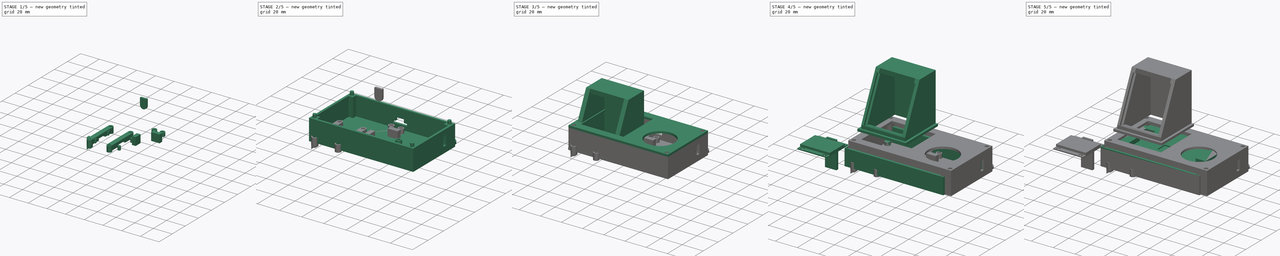
[diagram: build sequence overview — one tinted view per stage of 5, left to right]
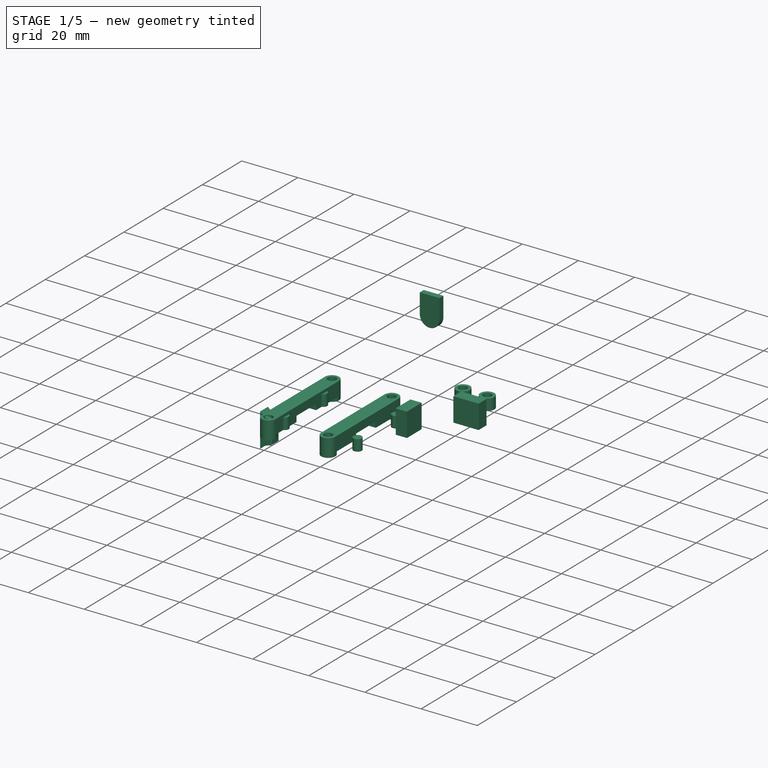
[diagram: stage 1 of 5 — iso view after this stage's code; geometry added in this stage tinted green]
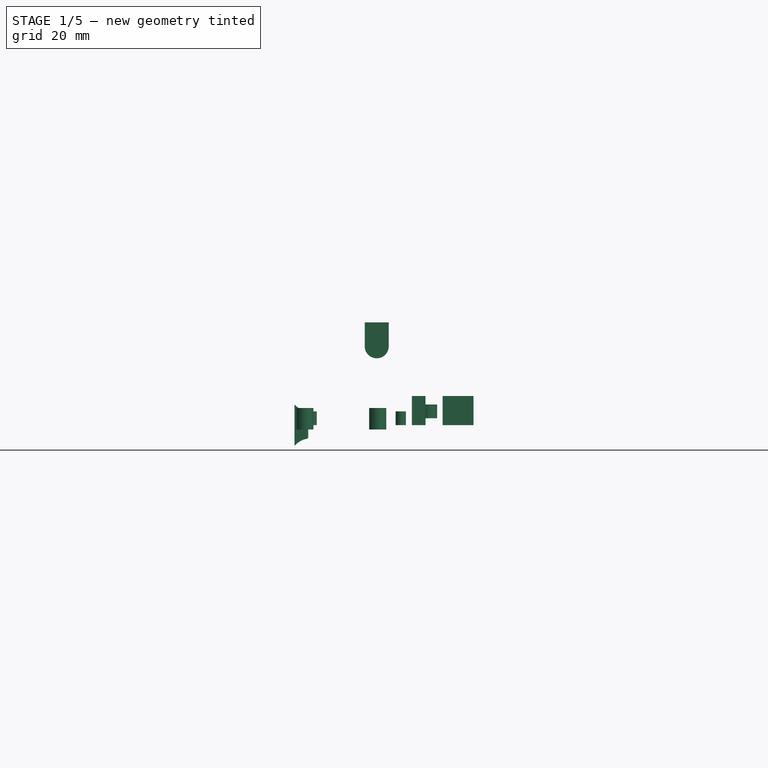
[diagram: stage 1 of 5 — front view after this stage's code; geometry added in this stage tinted green]
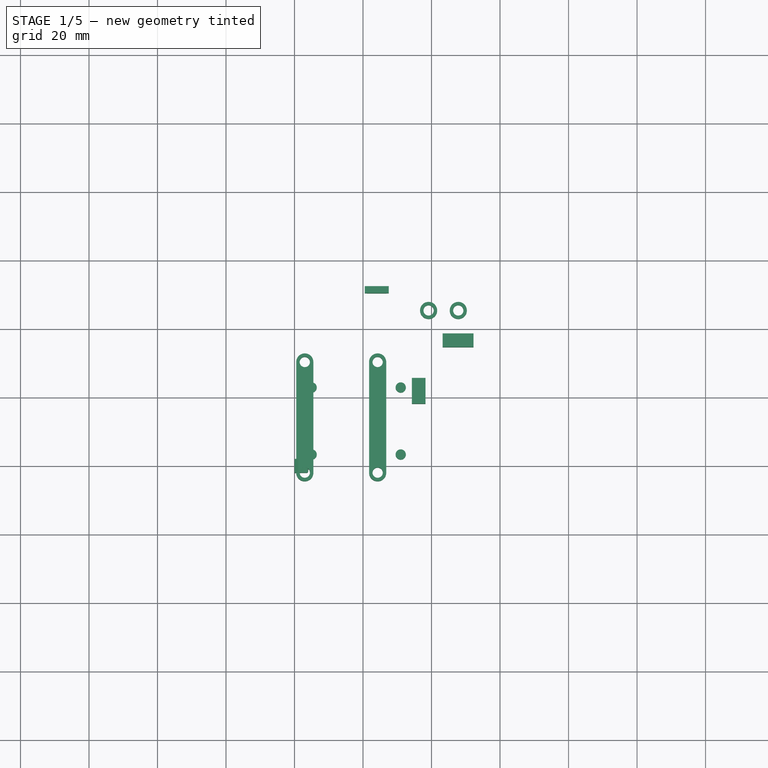
[diagram: stage 1 of 5 — top view after this stage's code; geometry added in this stage tinted green]
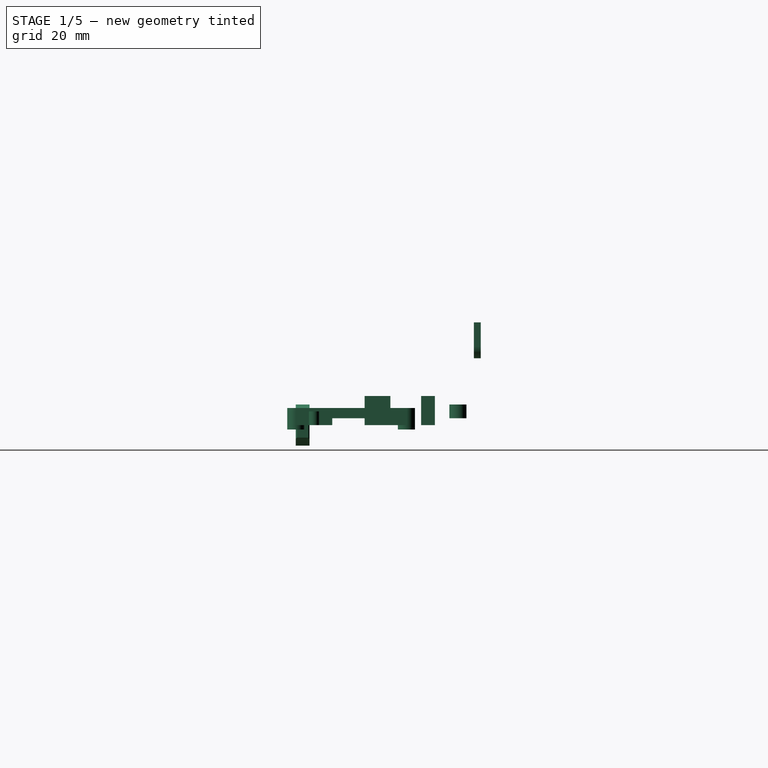
[diagram: stage 1 of 5 — right view after this stage's code; geometry added in this stage tinted green]
FCSTD DOCUMENT  (FreeCAD 0.20R29177 (Git))
Label: TredmillConrollerHousing_v5
License: All rights reserved
LicenseURL: http://en.wikipedia.org/wiki/All_rights_reserved
objects: Sketcher::SketchObject×49, Part::Extrusion×49, Part::MultiFuse×14, Part::Cut×12, App::Link×8, App::DocumentObjectGroup×5, Spreadsheet::Sheet×1, Part::Fillet×1
note: 125 computed .brp shape members not serialized (recipe doc carries the construction recipe); baked Part::Feature solids carry a one-line shape summary decoded from their .brp

FEATURE [Part::Extrusion] Extrude027  label="Extrude_MainBoardCase_JoyStick_Hole"
  Base = -> Sketch025
  Dir = (0,0,1)
  DirMode = 2
  FaceMakerClass = Part::FaceMakerBullseye
  LengthFwd = 4
  LengthRev = 0
  Solid = true
  Symmetric = false
FEATURE [Sketcher::SketchObject] Sketch030  label="Sketch_MicroUSBBreakout_holes"
  ExternalGeometry = -> [Sketch]
  FullyConstrained = true
  expr: Constraints[2] = <<Dim>>.M3HoleDia
  sketch-geometry (2):
    g0: Circle CenterX=2.15 CenterY=7.435 CenterZ=0 NormalX=0 NormalY=0 NormalZ=1 AngleXU=0 Radius=1.5
    g1: Circle CenterX=10.81 CenterY=7.435 CenterZ=0 NormalX=0 NormalY=0 NormalZ=1 AngleXU=0 Radius=1.5
  constraints (4):
    c: Coincident(g0,g-3)
    c: Coincident(g1,g-4)
    c: Diameter(g0) = 3
    c: Equal(g0,g1)
FEATURE [Sketcher::SketchObject] Sketch031  label="Sketch_MicroUSBBreakout_stand"
  ExternalGeometry = -> [Sketch030]
  FullyConstrained = true
  sketch-geometry (2):
    g0: Circle CenterX=2.15 CenterY=7.435 CenterZ=0 NormalX=0 NormalY=0 NormalZ=1 AngleXU=0 Radius=2.5
    g1: Circle CenterX=10.81 CenterY=7.435 CenterZ=0 NormalX=0 NormalY=0 NormalZ=1 AngleXU=0 Radius=2.5
  constraints (4):
    c: Coincident(g0,g-3)
    c: Coincident(g1,g-4)
    c: Diameter(g0) = 5
    c: Equal(g0,g1)
FEATURE [Part::Extrusion] Extrude030  label="Extrude_MicroUSBBreakout_stand"
  Base = -> Sketch031
  Dir = (0,0,1)
  DirMode = 2
  FaceMakerClass = Part::FaceMakerBullseye
  LengthFwd = 4
  LengthRev = 0
  Solid = true
  Symmetric = false
FEATURE [Part::Extrusion] Extrude031  label="Extrude_MicroUSBBreakout_holes"
  Base = -> Sketch030
  Dir = (0,0,1)
  DirMode = 2
  FaceMakerClass = Part::FaceMakerBullseye
  LengthFwd = 4
  LengthRev = 0
  Solid = true
  Symmetric = false
FEATURE [Part::Cut] Cut004  label="Cut_MicroUSBBreakout_stand"
  Base = -> Extrude030
  Placement = pos=(37,37.9,2) rot=(0,0,1;0rad)
  Tool = -> Extrude031
FEATURE [Sketcher::SketchObject] Sketch032  label="Sketch_DisplayCase_Side"
  FullyConstrained = false
  Placement = pos=(0,0,0) rot=(0.57735,0.57735,0.57735;2.0944rad)
  expr: Constraints[2] = <<Dim>>.Angle
  expr: Constraints[4] = <<Dim>>.FontLength
  sketch-geometry (8):
    g0: LineSegment StartX=0 StartY=5 StartZ=0 EndX=40 EndY=5 EndZ=0
    g1: LineSegment StartX=0 StartY=5 StartZ=0 EndX=19.0178 EndY=45.7839 EndZ=0
    g2: ArcOfCircle CenterX=0 CenterY=5 CenterZ=0 NormalX=0 NormalY=0 NormalZ=1 AngleXU=0 Radius=17.547 StartAngle=-3.82e-14 EndAngle=1.13446
    g3: LineSegment StartX=40 StartY=5 StartZ=0 EndX=40 EndY=45.7839 EndZ=0
    g4: LineSegment StartX=19.0178 StartY=45.7839 StartZ=0 EndX=40 EndY=45.7839 EndZ=0
    g5: LineSegment StartX=0 StartY=5 StartZ=0 EndX=0 EndY=0 EndZ=0
    g6: LineSegment StartX=40 StartY=5 StartZ=0 EndX=40 EndY=0 EndZ=0
    g7: LineSegment StartX=40 StartY=0 StartZ=0 EndX=0 EndY=0 EndZ=0
  constraints (22):
    c: PointOnObject(g2,g0)
    c: PointOnObject(g2,g1)
    c: Angle(g2) = 1.13446
    c: DistanceX(g0,g0) = 40
    c: Distance(g1,g0) = 45
    c: Coincident(g3,g0)
    c: Vertical(g3)
    c: Coincident(g4,g1)
    c: Horizontal(g4)
    c: Coincident(g4,g3)
    c: Coincident(g0,g1)
    c: Coincident(g2,g1)
    c: Horizontal(g0)
    c: PointOnObject(g5,g-2)
    c: Coincident(g5,g-1)
    c: DistanceY(g5,g5) = 5
    c: Coincident(g1,g5)
    c: Coincident(g6,g3)
    c: PointOnObject(g6,g-1)
    c: Vertical(g6)
    c: Coincident(g7,g6)
    c: Coincident(g7,g5)
FEATURE [App::Link] Link003  label="Fusion_diplayAndConnector001"
  LinkPlacement = pos=(6,5,13) rot=(1,0,0;1.13446rad)
  LinkedObject = -> Fusion003
  Placement = pos=(6,5,13) rot=(1,0,0;1.13446rad)
  expr: .Placement.Rotation.Angle = <<Dim>>.Angle
FEATURE [Sketcher::SketchObject] Sketch033  label="Sketch_DisplayCase_Front"
  ExternalGeometry = -> [Sketch007,Sketch006]
  FullyConstrained = true
  expr: Constraints[65] = <<Dim>>.DiplayOffset
  expr: Constraints[66] = <<Dim>>.DiplayOffset
  expr: Constraints[73] = <<Dim>>.DiplayOffset
  expr: Constraints[74] = <<Dim>>.DiplayOffset
  expr: Constraints[8] = <<Dim>>.FontLength - 4
  sketch-geometry (37):
    g0: LineSegment StartX=-4.365 StartY=-7.5 StartZ=0 EndX=31.635 EndY=-7.5 EndZ=0
    g1: LineSegment StartX=31.635 StartY=-7.5 StartZ=0 EndX=31.635 EndY=33.5 EndZ=0
    g2: LineSegment StartX=31.635 StartY=33.5 StartZ=0 EndX=-4.365 EndY=33.5 EndZ=0
    g3: LineSegment StartX=-4.365 StartY=33.5 StartZ=0 EndX=-4.365 EndY=-7.5 EndZ=0
    g4: LineSegment StartX=0 StartY=27.31 StartZ=0 EndX=-4.365 EndY=27.31 EndZ=0
    g5: LineSegment StartX=27.27 StartY=27.31 StartZ=0 EndX=31.635 EndY=27.31 EndZ=0
    g6: LineSegment StartX=27.27 StartY=0 StartZ=0 EndX=27.27 EndY=-7.5 EndZ=0
    g7: Circle CenterX=3 CenterY=30.31 CenterZ=0 NormalX=0 NormalY=0 NormalZ=1 AngleXU=0 Radius=1.65
    g8: Circle CenterX=24.27 CenterY=30.31 CenterZ=0 NormalX=0 NormalY=0 NormalZ=1 AngleXU=0 Radius=1.65
    g9: Circle CenterX=3 CenterY=-2 CenterZ=0 NormalX=0 NormalY=0 NormalZ=1 AngleXU=0 Radius=1.65
    g10: Circle CenterX=24.27 CenterY=-2 CenterZ=0 NormalX=0 NormalY=0 NormalZ=1 AngleXU=0 Radius=1.65
    g11: LineSegment StartX=0 StartY=27.31 StartZ=0 EndX=3 EndY=27.31 EndZ=0
    g12: LineSegment StartX=3 StartY=27.31 StartZ=0 EndX=3 EndY=30.31 EndZ=0
    g13: LineSegment StartX=24.27 StartY=30.31 StartZ=0 EndX=24.27 EndY=27.31 EndZ=0
    g14: LineSegment StartX=24.27 StartY=27.31 StartZ=0 EndX=27.27 EndY=27.31 EndZ=0
    g15: LineSegment StartX=24.27 StartY=-2 StartZ=0 EndX=24.27 EndY=0 EndZ=0
    g16: LineSegment StartX=24.27 StartY=0 StartZ=0 EndX=27.27 EndY=0 EndZ=0
    g17: LineSegment StartX=3 StartY=-2 StartZ=0 EndX=3 EndY=0 EndZ=0
    g18: LineSegment StartX=3 StartY=0 StartZ=0 EndX=0 EndY=0 EndZ=0
    g19: LineSegment StartX=27.37 StartY=23.21 StartZ=0 EndX=27.37 EndY=3.51 EndZ=0
    g20: LineSegment StartX=27.37 StartY=3.51 StartZ=0 EndX=-0.1 EndY=3.51 EndZ=0
    g21: LineSegment StartX=-0.1 StartY=3.51 StartZ=0 EndX=-0.1 EndY=23.21 EndZ=0
    g22: LineSegment StartX=27.27 StartY=23.11 StartZ=0 EndX=27.27 EndY=23.21 EndZ=0
    g23: LineSegment StartX=27.27 StartY=23.11 StartZ=0 EndX=27.37 EndY=23.11 EndZ=0
    g24: LineSegment StartX=0 StartY=3.61 StartZ=0 EndX=0 EndY=3.51 EndZ=0
    g25: LineSegment StartX=0 StartY=3.61 StartZ=0 EndX=-0.1 EndY=3.61 EndZ=0
    g26: LineSegment StartX=6.514 StartY=26.135 StartZ=0 EndX=20.756 EndY=26.135 EndZ=0
    g27: LineSegment StartX=20.756 StartY=26.135 StartZ=0 EndX=20.756 EndY=23.21 EndZ=0
    g28: LineSegment StartX=6.514 StartY=23.21 StartZ=0 EndX=6.514 EndY=26.135 EndZ=0
    g29: LineSegment StartX=6.514 StartY=26.135 StartZ=0 EndX=8.514 EndY=26.135 EndZ=0
    g30: LineSegment StartX=20.756 StartY=26.135 StartZ=0 EndX=18.756 EndY=26.135 EndZ=0
    g31: LineSegment StartX=8.514 StartY=26.135 StartZ=0 EndX=8.514 EndY=25.135 EndZ=0
    g32: LineSegment StartX=8.514 StartY=25.135 StartZ=0 EndX=8.514 EndY=24.135 EndZ=0
    g33: LineSegment StartX=18.756 StartY=24.135 StartZ=0 EndX=18.756 EndY=25.135 EndZ=0
    g34: LineSegment StartX=18.756 StartY=25.135 StartZ=0 EndX=18.756 EndY=26.135 EndZ=0
    g35: LineSegment StartX=-0.1 StartY=23.21 StartZ=0 EndX=6.514 EndY=23.21 EndZ=0
    g36: LineSegment StartX=20.756 StartY=23.21 StartZ=0 EndX=27.37 EndY=23.21 EndZ=0
  constraints (105):
    c: Coincident(g0,g1)
    c: Coincident(g1,g2)
    c: Coincident(g2,g3)
    c: Coincident(g3,g0)
    c: Horizontal(g0)
    c: Horizontal(g2)
    c: Vertical(g1)
    c: Vertical(g3)
    c: DistanceY(g1,g1) = 41
    c: DistanceX(g0,g0) = 36
    c: Coincident(g4,g-5)
    c: PointOnObject(g4,g3)
    c: Coincident(g5,g-6)
    c: PointOnObject(g5,g1)
    c: Horizontal(g5)
    c: Horizontal(g4)
    c: Equal(g4,g5)
    c: Coincident(g6,g-6)
    c: PointOnObject(g6,g0)
    c: Vertical(g6)
    c: DistanceY(g6,g6) = 7.5
    c: Diameter(g7) = 3.3
    c: Equal(g7,g8)
    c: Equal(g8,g9)
    c: Equal(g9,g10)
    c: Horizontal(g11)
    c: Coincident(g12,g11)
    c: Vertical(g12)
    c: Vertical(g13)
    c: Coincident(g14,g13)
    c: Horizontal(g14)
    c: Vertical(g15)
    c: Coincident(g16,g15)
    c: Horizontal(g16)
    c: Vertical(g17)
    c: Horizontal(g18)
    c: DistanceY(g12,g12) = 3
    c: Equal(g12,g13)
    c: DistanceX(g11,g11) = 3
    c: Equal(g11,g14)
    c: Coincident(g11,g4)
    c: Coincident(g14,g5)
    c: Coincident(g8,g13)
    c: Coincident(g7,g12)
    c: DistanceX(g16,g16) = 3
    c: Equal(g16,g18)
    c: DistanceY(g15,g15) = 2
    c: Coincident(g17,g18)
    c: Equal(g15,g17)
    c: Coincident(g18,g-1)
    c: Coincident(g16,g6)
    c: Coincident(g9,g17)
    c: Coincident(g10,g15)
    c: Coincident(g36,g19)
    c: Coincident(g19,g20)
    c: Coincident(g20,g21)
    c: Coincident(g21,g35)
    c: Horizontal(g20)
    c: Vertical(g19)
    c: Vertical(g21)
    c: Coincident(g22,g-4)
    c: PointOnObject(g22,g-6)
    c: Coincident(g23,g22)
    c: PointOnObject(g23,g19)
    c: Horizontal(g23)
    c: DistanceX(g23,g23) = 0.1
    c: DistanceY(g22,g22) = 0.1
    c: Coincident(g24,g-3)
    c: PointOnObject(g24,g20)
    c: Vertical(g24)
    c: Coincident(g25,g24)
    c: PointOnObject(g25,g21)
    c: Horizontal(g25)
    c: DistanceX(g25,g25) = 0.1
    c: DistanceY(g24,g24) = 0.1
    c: Coincident(g26,g27)
    c: Coincident(g28,g26)
    c: Horizontal(g26)
    c: Vertical(g27)
    c: Vertical(g28)
    c: DistanceY(g32,g31) = 2
    c: Horizontal(g29)
    c: DistanceX(g29,g29) = 2
    c: Horizontal(g30)
    c: Equal(g29,g30)
    c: Coincident(g31,g32)
    c: Vertical(g31)
    c: Vertical(g32)
    c: Coincident(g31,g-7)
    c: Coincident(g33,g34)
    c: Vertical(g33)
    c: Vertical(g34)
    c: Coincident(g33,g-8)
    c: Equal(g31,g32)
    c: Equal(g34,g33)
    c: Coincident(g30,g34)
    c: Coincident(g29,g31)
    c: Coincident(g26,g29)
    c: Coincident(g26,g30)
    c: Horizontal(g35)
    c: Horizontal(g36)
    c: PointOnObject(g22,g36)
    c: Coincident(g27,g36)
    c: Equal(g27,g28)
    c: Coincident(g35,g28)
FEATURE [Sketcher::SketchObject] Sketch034  label="Sketch_DisplayCase_Mount"
  ExternalGeometry = -> [Sketch033]
  FullyConstrained = true
  expr: Constraints[16] = <<Dim>>.M3HoleDia
  sketch-geometry (14):
    g0: ArcOfCircle CenterX=3 CenterY=30.31 CenterZ=0 NormalX=0 NormalY=0 NormalZ=1 AngleXU=0 Radius=2.5 StartAngle=-9.24e-14 EndAngle=3.14159
    g1: ArcOfCircle CenterX=3 CenterY=-2 CenterZ=0 NormalX=0 NormalY=0 NormalZ=1 AngleXU=0 Radius=2.5 StartAngle=3.14159 EndAngle=6.28319
    g2: LineSegment StartX=0.5 StartY=30.31 StartZ=0 EndX=0.5 EndY=-2 EndZ=0
    g3: LineSegment StartX=5.5 StartY=-2 StartZ=0 EndX=5.5 EndY=30.31 EndZ=0
    g4: ArcOfCircle CenterX=24.27 CenterY=30.31 CenterZ=0 NormalX=0 NormalY=0 NormalZ=1 AngleXU=0 Radius=2.5 StartAngle=7e-16 EndAngle=3.14159
    g5: ArcOfCircle CenterX=24.27 CenterY=-2 CenterZ=0 NormalX=0 NormalY=0 NormalZ=1 AngleXU=0 Radius=2.5 StartAngle=3.14159 EndAngle=6.28319
    g6: LineSegment StartX=21.77 StartY=30.31 StartZ=0 EndX=21.77 EndY=-2 EndZ=0
    g7: LineSegment StartX=26.77 StartY=-2 StartZ=0 EndX=26.77 EndY=30.31 EndZ=0
    g8: LineSegment StartX=0.5 StartY=30.31 StartZ=0 EndX=5.5 EndY=30.31 EndZ=0
    g9: LineSegment StartX=21.77 StartY=30.31 StartZ=0 EndX=26.77 EndY=30.31 EndZ=0
    g10: Circle CenterX=3 CenterY=30.31 CenterZ=0 NormalX=0 NormalY=0 NormalZ=1 AngleXU=0 Radius=1.5
    g11: Circle CenterX=24.27 CenterY=30.31 CenterZ=0 NormalX=0 NormalY=0 NormalZ=1 AngleXU=0 Radius=1.5
    g12: Circle CenterX=3 CenterY=-2 CenterZ=0 NormalX=0 NormalY=0 NormalZ=1 AngleXU=0 Radius=1.5
    g13: Circle CenterX=24.27 CenterY=-2 CenterZ=0 NormalX=0 NormalY=0 NormalZ=1 AngleXU=0 Radius=1.5
  constraints (28):
    c: Tangent(g0,g2) = -1.5708
    c: Tangent(g2,g1) = -1.5708
    c: Tangent(g1,g3) = -1.5708
    c: Tangent(g3,g0) = -1.5708
    c: Equal(g0,g1)
    c: Tangent(g4,g6) = -1.5708
    c: Tangent(g6,g5) = -1.5708
    c: Tangent(g5,g7) = -1.5708
    c: Tangent(g7,g4) = -1.5708
    c: Equal(g4,g5)
    c: Coincident(g8,g0)
    c: Coincident(g8,g0)
    c: DistanceX(g8,g8) = 5
    c: Coincident(g9,g4)
    c: Coincident(g9,g4)
    c: DistanceX(g9,g9) = 5
    c: Diameter(g10) = 3
    c: Equal(g10,g11)
    c: Equal(g11,g12)
    c: Equal(g12,g13)
    c: Coincident(g10,g0)
    c: Coincident(g0,g-3)
    c: Coincident(g11,g4)
    c: Coincident(g4,g-4)
    c: Coincident(g12,g1)
    c: Coincident(g13,g5)
    c: Coincident(g1,g-6)
    c: Coincident(g5,g-5)
FEATURE [Sketcher::SketchObject] Sketch035  label="Sketch_DisplayCase_MountCutOut"
  ExternalGeometry = -> [Sketch006]
  FullyConstrained = true
  sketch-geometry (6):
    g0: LineSegment StartX=0 StartY=18.655 StartZ=0 EndX=27.27 EndY=18.655 EndZ=0
    g1: LineSegment StartX=27.27 StartY=18.655 StartZ=0 EndX=27.27 EndY=8.655 EndZ=0
    g2: LineSegment StartX=27.27 StartY=8.655 StartZ=0 EndX=0 EndY=8.655 EndZ=0
    g3: LineSegment StartX=0 StartY=8.655 StartZ=0 EndX=0 EndY=18.655 EndZ=0
    g4: LineSegment StartX=27.27 StartY=18.655 StartZ=0 EndX=27.27 EndY=27.31 EndZ=0
    g5: LineSegment StartX=27.27 StartY=8.655 StartZ=0 EndX=27.27 EndY=0 EndZ=0
  constraints (16):
    c: Coincident(g0,g1)
    c: Coincident(g1,g2)
    c: Coincident(g2,g3)
    c: Coincident(g3,g0)
    c: Horizontal(g0)
    c: Horizontal(g2)
    c: Vertical(g1)
    c: Vertical(g3)
    c: DistanceY(g1,g1) = 10
    c: PointOnObject(g0,g-4)
    c: Coincident(g4,g0)
    c: Coincident(g4,g-4)
    c: Coincident(g5,g1)
    c: Coincident(g5,g-4)
    c: Equal(g5,g4)
    c: PointOnObject(g0,g-2)
FEATURE [Part::Extrusion] Extrude033  label="Extrude_DisplayCase_MountCutOut"
  Base = -> Sketch035
  Dir = (0,0,1)
  DirMode = 2
  FaceMakerClass = Part::FaceMakerBullseye
  LengthFwd = 2
  LengthRev = 0
  Solid = true
  Symmetric = false
FEATURE [Part::Extrusion] Extrude034  label="Extrude_DisplayCase_Mount"
  Base = -> Sketch034
  Dir = (0,0,1)
  DirMode = 2
  FaceMakerClass = Part::FaceMakerBullseye
  LengthFwd = 5
  LengthRev = 0
  Solid = true
  Symmetric = false
FEATURE [Sketcher::SketchObject] Sketch044  label="Sketch_ControllerCable_Hole"
  FullyConstrained = true
  Placement = pos=(0,0,0) rot=(1,0,0;1.5708rad)
  sketch-geometry (6):
    g0: LineSegment StartX=-3.5 StartY=7 StartZ=0 EndX=3.5 EndY=7 EndZ=0
    g1: LineSegment StartX=3.5 StartY=7 StartZ=0 EndX=3.5 EndY=0 EndZ=0
    g2: LineSegment StartX=-3.5 StartY=0 StartZ=0 EndX=-3.5 EndY=7 EndZ=0
    g3: LineSegment StartX=-3.5 StartY=0 StartZ=0 EndX=0 EndY=0 EndZ=0
    g4: LineSegment StartX=0 StartY=0 StartZ=0 EndX=3.5 EndY=0 EndZ=0
    g5: ArcOfCircle CenterX=0 CenterY=0 CenterZ=0 NormalX=0 NormalY=0 NormalZ=1 AngleXU=0 Radius=3.5 StartAngle=3.14159 EndAngle=6.28319
  constraints (16):
    c: Coincident(g0,g1)
    c: Coincident(g2,g0)
    c: Horizontal(g0)
    c: Vertical(g1)
    c: Vertical(g2)
    c: Coincident(g3,g2)
    c: Coincident(g4,g1)
    c: Coincident(g3,g4)
    c: Horizontal(g3)
    c: Horizontal(g4)
    c: Coincident(g5,g3)
    c: Coincident(g5,g2)
    c: Coincident(g5,g1)
    c: Distance(g1,g2) = 7
    c: Distance(g0,g1) = 7
    c: Coincident(g5,g-1)
FEATURE [Part::Extrusion] Extrude045  label="Extrude_ControllerCable_Hole"
  Base = -> Sketch044
  Dir = (0,-1,-3e-16)
  DirMode = 2
  FaceMakerClass = Part::FaceMakerBullseye
  LengthFwd = 2
  LengthRev = 0
  Placement = pos=(24,52,23) rot=(0,0,1;0rad)
  Solid = true
  Symmetric = false
FEATURE [App::DocumentObjectGroup] Group004  label="ControllerCase"
  Group = -> [Cut011,Cut003]
FEATURE [Sketcher::SketchObject] Sketch045  label="Sketch_DisplayCase_Mount_Stand"
  ExternalGeometry = -> [Sketch034]
  FullyConstrained = true
  expr: Constraints[9] = <<Dim>>.M3HoleDia
  sketch-geometry (8):
    g0: Circle CenterX=3 CenterY=30.31 CenterZ=0 NormalX=0 NormalY=0 NormalZ=1 AngleXU=0 Radius=2.5
    g1: Circle CenterX=24.27 CenterY=30.31 CenterZ=0 NormalX=0 NormalY=0 NormalZ=1 AngleXU=0 Radius=2.5
    g2: Circle CenterX=3 CenterY=-2 CenterZ=0 NormalX=0 NormalY=0 NormalZ=1 AngleXU=0 Radius=2.5
    g3: Circle CenterX=24.27 CenterY=-2 CenterZ=0 NormalX=0 NormalY=0 NormalZ=1 AngleXU=0 Radius=2.5
    g4: Circle CenterX=3 CenterY=30.31 CenterZ=0 NormalX=0 NormalY=0 NormalZ=1 AngleXU=0 Radius=1.5
    g5: Circle CenterX=24.27 CenterY=30.31 CenterZ=0 NormalX=0 NormalY=0 NormalZ=1 AngleXU=0 Radius=1.5
    g6: Circle CenterX=3 CenterY=-2 CenterZ=0 NormalX=0 NormalY=0 NormalZ=1 AngleXU=0 Radius=1.5
    g7: Circle CenterX=24.27 CenterY=-2 CenterZ=0 NormalX=0 NormalY=0 NormalZ=1 AngleXU=0 Radius=1.5
  constraints (16):
    c: Coincident(g0,g-3)
    c: Diameter(g0) = 5
    c: Equal(g0,g2)
    c: Equal(g2,g3)
    c: Equal(g3,g1)
    c: Coincident(g1,g-4)
    c: Coincident(g2,g-6)
    c: Coincident(g3,g-5)
    c: Coincident(g4,g0)
    c: Diameter(g4) = 3
    c: Equal(g4,g5)
    c: Equal(g5,g6)
    c: Equal(g6,g7)
    c: Coincident(g5,g1)
    c: Coincident(g7,g3)
    c: Coincident(g6,g2)
FEATURE [Part::Extrusion] Extrude046  label="Extrude_DisplayCase_Mount_Stand"
  Base = -> Sketch045
  Dir = (0,0,1)
  DirMode = 2
  FaceMakerClass = Part::FaceMakerBullseye
  LengthFwd = 1.3
  LengthRev = 0
  Placement = pos=(0,0,-1.3) rot=(0,0,1;0rad)
  Solid = true
  Symmetric = false
FEATURE [Part::Cut] Cut008  label="Cut_DisplayCase_Mount"
  Base = -> Extrude034
  Tool = -> Extrude033
FEATURE [Part::MultiFuse] Fusion014  label="Fusion_DisplayCase_Mount"
  Shapes = -> [Cut008,Extrude046]
FEATURE [App::DocumentObjectGroup] Group003  label="DisplayCase"
  Group = -> [Fusion012,Cut010,Link003,Fusion014]
FEATURE [Sketcher::SketchObject] Sketch046  label="Sketch_Switch_body"
  FullyConstrained = true
  Placement = pos=(0,0,0) rot=(1,0,0;1.5708rad)
  sketch-geometry (18):
    g0: LineSegment StartX=0 StartY=6 StartZ=0 EndX=0 EndY=0 EndZ=0
    g1: LineSegment StartX=0 StartY=0 StartZ=0 EndX=0 EndY=-6 EndZ=0
    g2: LineSegment StartX=4 StartY=4 StartZ=0 EndX=4 EndY=0 EndZ=0
    g3: LineSegment StartX=4 StartY=0 StartZ=0 EndX=4 EndY=-4 EndZ=0
    g4: LineSegment StartX=2 StartY=4 StartZ=0 EndX=2 EndY=0 EndZ=0
    g5: LineSegment StartX=2 StartY=0 StartZ=0 EndX=2 EndY=-4 EndZ=0
    g6: Circle CenterX=0 CenterY=6 CenterZ=0 NormalX=0 NormalY=0 NormalZ=1 AngleXU=0 Radius=1
    g7: Circle CenterX=2 CenterY=4 CenterZ=0 NormalX=0 NormalY=0 NormalZ=1 AngleXU=0 Radius=1
    g8: Circle CenterX=4 CenterY=4 CenterZ=0 NormalX=0 NormalY=0 NormalZ=1 AngleXU=0 Radius=1
    g9: BSplineCurve PolesCount=3 KnotsCount=2 Degree=2 IsPeriodic=0
    g10: GeomPoint X=0 Y=6 Z=0
    g11: GeomPoint X=4 Y=4 Z=0
    g12: Circle CenterX=4 CenterY=-4 CenterZ=0 NormalX=0 NormalY=0 NormalZ=1 AngleXU=0 Radius=1
    g13: Circle CenterX=2 CenterY=-4 CenterZ=0 NormalX=0 NormalY=0 NormalZ=1 AngleXU=0 Radius=1
    g14: Circle CenterX=0 CenterY=-6 CenterZ=0 NormalX=0 NormalY=0 NormalZ=1 AngleXU=0 Radius=1
    g15: BSplineCurve PolesCount=3 KnotsCount=2 Degree=2 IsPeriodic=0
    g16: GeomPoint X=4 Y=-4 Z=0
    g17: GeomPoint X=0 Y=-6 Z=0
  constraints (42):
    c: Coincident(g0,g1)
    c: Vertical(g0)
    c: Vertical(g1)
    c: Coincident(g2,g3)
    c: Vertical(g2)
    c: Vertical(g3)
    c: Distance(g0,g1) = 12
    c: Equal(g0,g1)
    c: Coincident(g0,g-1)
    c: Equal(g3,g2)
    c: Distance(g2,g3) = 8
    c: PointOnObject(g2,g-1)
    c: Distance(g0,g2) = 4
    c: Coincident(g4,g5)
    c: Vertical(g4)
    c: Vertical(g5)
    c: Distance(g5,g4) = 8
    c: PointOnObject(g4,g-1)
    c: Equal(g5,g4)
    c: Distance(g4,g0) = 2
    c: Weight(g6) = 1
    c: Coincident(g9,g0)
    c: Equal(g6,g7)
    c: Equal(g6,g8)
    c: Coincident(g9,g2)
    c: InternalAlignment(g6,g9)
    c: InternalAlignment(g7,g9)
    c: InternalAlignment(g8,g9)
    c: InternalAlignment(g10,g9)
    c: InternalAlignment(g11,g9)
    c: Coincident(g7,g4)
    c: Weight(g12) = 1
    c: Coincident(g15,g3)
    c: Equal(g12,g13)
    c: Coincident(g13,g5)
    c: Equal(g12,g14)
    c: Coincident(g15,g1)
    c: InternalAlignment(g12,g15)
    c: InternalAlignment(g13,g15)
    c: InternalAlignment(g14,g15)
    c: InternalAlignment(g16,g15)
    c: InternalAlignment(g17,g15)
FEATURE [Sketcher::SketchObject] Sketch047  label="Sketch_Switch_hole"
  FullyConstrained = true
  Placement = pos=(0,0,0) rot=(1,0,0;1.5708rad)
  sketch-geometry (5):
    g0: LineSegment StartX=0 StartY=0.8 StartZ=0 EndX=3 EndY=0.8 EndZ=0
    g1: LineSegment StartX=3 StartY=0.8 StartZ=0 EndX=3 EndY=-0.8 EndZ=0
    g2: LineSegment StartX=3 StartY=-0.8 StartZ=0 EndX=0 EndY=-0.8 EndZ=0
    g3: LineSegment StartX=0 StartY=-0.8 StartZ=0 EndX=0 EndY=0 EndZ=0
    g4: LineSegment StartX=0 StartY=0 StartZ=0 EndX=0 EndY=0.8 EndZ=0
  constraints (14):
    c: Coincident(g0,g1)
    c: Coincident(g1,g2)
    c: Coincident(g2,g3)
    c: Coincident(g4,g0)
    c: Horizontal(g0)
    c: Horizontal(g2)
    c: Vertical(g1)
    c: Distance(g0,g2) = 1.6
    c: Coincident(g3,g4)
    c: Vertical(g3)
    c: Vertical(g4)
    c: Equal(g4,g3)
    c: Coincident(g3,g-1)
    c: DistanceX(g0,g0) = 3
FEATURE [Part::Extrusion] Extrude047  label="Extrude_Switch_body"
  Base = -> Sketch046
  Dir = (0,-1,2e-16)
  DirMode = 2
  FaceMakerClass = Part::FaceMakerBullseye
  LengthFwd = 2
  LengthRev = 2
  Solid = true
  Symmetric = false
FEATURE [Part::Extrusion] Extrude048  label="Extrude_Switch_hole"
  Base = -> Sketch047
  Dir = (0,-1,2e-16)
  DirMode = 2
  FaceMakerClass = Part::FaceMakerBullseye
  LengthFwd = 0.8
  LengthRev = 0.8
  Solid = true
  Symmetric = false
FEATURE [Part::Fillet] Fillet
  Base = -> Extrude047
  Edges = 6 edges r=0.5: [Edge2,Edge11,Edge15,Edge16,Edge17,Edge18]
FEATURE [Part::Cut] Cut012  label="Cut_Toggle_Switch_Cover"
  Base = -> Fillet
  Tool = -> Extrude048
FEATURE [App::DocumentObjectGroup] Group001  label="MainBoardCase"
  Group = -> [Extrude023,Fusion011]
FEATURE [Part::Extrusion] Extrude049  label="Extrude_ContolleBoard_headers"
  Base = -> Sketch048
  Dir = (0,0,1)
  DirMode = 2
  FaceMakerClass = Part::FaceMakerBullseye
  LengthFwd = 8.5
  LengthRev = 0
  Solid = true
  Symmetric = false
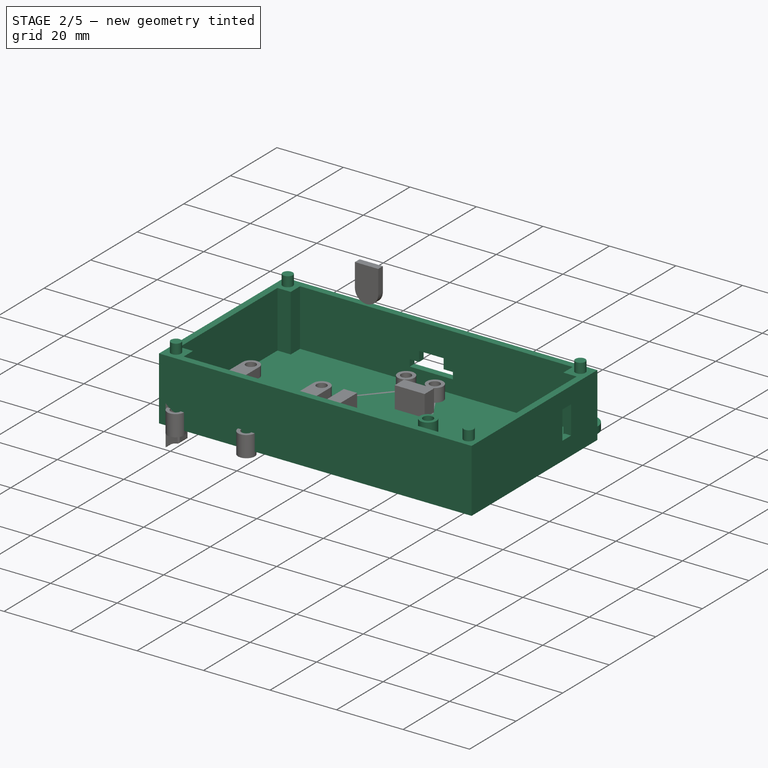
[diagram: stage 2 of 5 — iso view after this stage's code; geometry added in this stage tinted green]
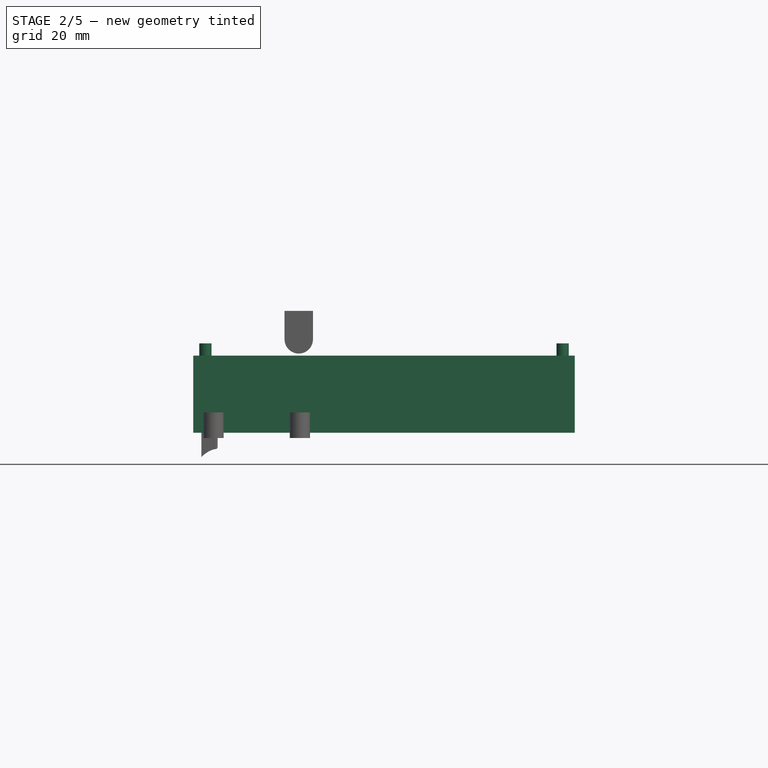
[diagram: stage 2 of 5 — front view after this stage's code; geometry added in this stage tinted green]
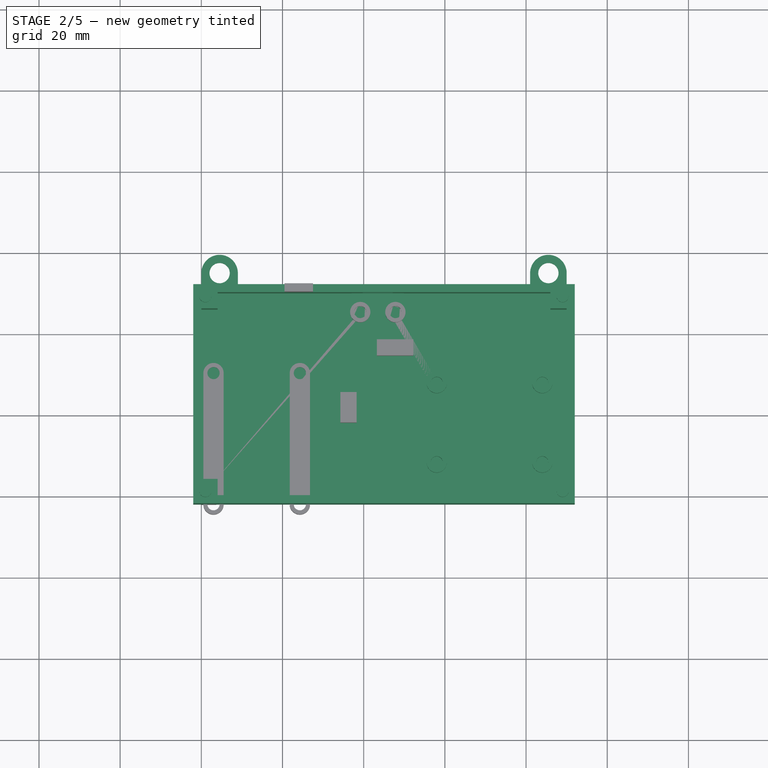
[diagram: stage 2 of 5 — top view after this stage's code; geometry added in this stage tinted green]
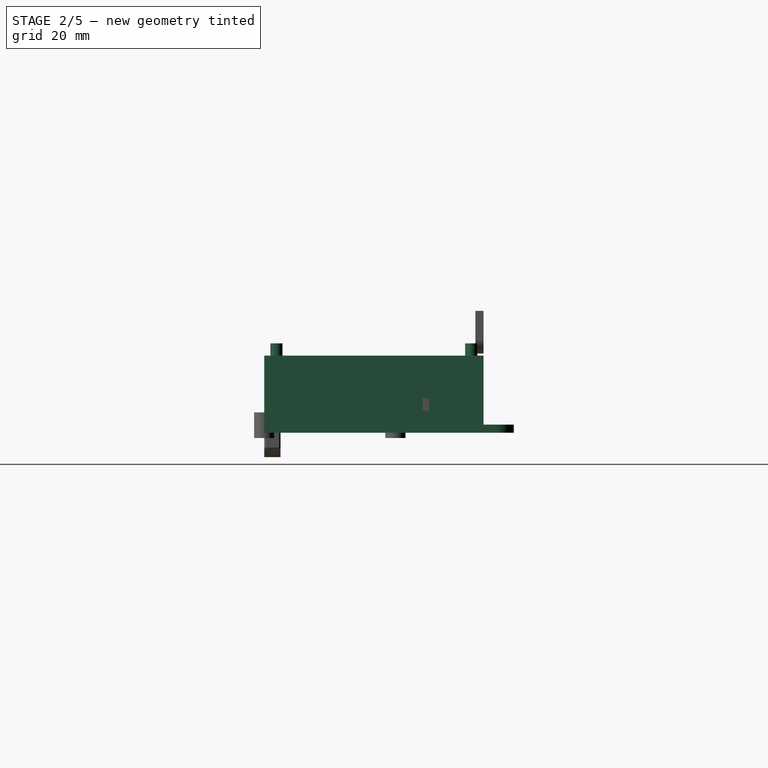
[diagram: stage 2 of 5 — right view after this stage's code; geometry added in this stage tinted green]
FEATURE [Sketcher::SketchObject] Sketch  label="Sketch_MicroUSBBreakout_base"
  FullyConstrained = true
  expr: Constraints[64] = 2.69 / 2
  sketch-geometry (27):
    g0: LineSegment StartX=0 StartY=14.18 StartZ=0 EndX=12.96 EndY=14.18 EndZ=0
    g1: LineSegment StartX=12.96 StartY=14.18 StartZ=0 EndX=12.96 EndY=0 EndZ=0
    g2: LineSegment StartX=12.96 StartY=0 StartZ=0 EndX=0 EndY=0 EndZ=0
    g3: LineSegment StartX=0 StartY=0 StartZ=0 EndX=0 EndY=14.18 EndZ=0
    g4: Circle CenterX=1 CenterY=1 CenterZ=0 NormalX=0 NormalY=0 NormalZ=1 AngleXU=0 Radius=0.25
    g5: Circle CenterX=3.74 CenterY=1 CenterZ=0 NormalX=0 NormalY=0 NormalZ=1 AngleXU=0 Radius=0.25
    g6: Circle CenterX=6.48 CenterY=1 CenterZ=0 NormalX=0 NormalY=0 NormalZ=1 AngleXU=0 Radius=0.25
    g7: Circle CenterX=9.22 CenterY=1 CenterZ=0 NormalX=0 NormalY=0 NormalZ=1 AngleXU=0 Radius=0.25
    g8: Circle CenterX=11.96 CenterY=1 CenterZ=0 NormalX=0 NormalY=0 NormalZ=1 AngleXU=0 Radius=0.25
    g9: LineSegment StartX=0 StartY=1 StartZ=0 EndX=1 EndY=1 EndZ=0
    g10: LineSegment StartX=1 StartY=0 StartZ=0 EndX=1 EndY=1 EndZ=0
    g11: LineSegment StartX=12.96 StartY=1 StartZ=0 EndX=11.96 EndY=1 EndZ=0
    g12: LineSegment StartX=11.96 StartY=0 StartZ=0 EndX=11.96 EndY=1 EndZ=0
    g13: LineSegment StartX=1 StartY=1 StartZ=0 EndX=3.74 EndY=1 EndZ=0
    g14: LineSegment StartX=9.22 StartY=1 StartZ=0 EndX=11.96 EndY=1 EndZ=0
    g15: LineSegment StartX=3.74 StartY=1 StartZ=0 EndX=6.48 EndY=1 EndZ=0
    g16: LineSegment StartX=6.48 StartY=1 StartZ=0 EndX=9.22 EndY=1 EndZ=0
    g17: LineSegment StartX=12.96 StartY=7.435 StartZ=0 EndX=12.46 EndY=7.435 EndZ=0
    g18: LineSegment StartX=0 StartY=7.435 StartZ=0 EndX=0.5 EndY=7.435 EndZ=0
    g19: Circle CenterX=2.15 CenterY=7.435 CenterZ=0 NormalX=0 NormalY=0 NormalZ=1 AngleXU=0 Radius=1.65
    g20: Circle CenterX=10.81 CenterY=7.435 CenterZ=0 NormalX=0 NormalY=0 NormalZ=1 AngleXU=0 Radius=1.65
    g21: LineSegment StartX=10.81 StartY=14.18 StartZ=0 EndX=10.81 EndY=8.78 EndZ=0
    g22: LineSegment StartX=2.15 StartY=14.18 StartZ=0 EndX=2.15 EndY=8.78 EndZ=0
    g23: LineSegment StartX=2.15 StartY=8.78 StartZ=0 EndX=2.15 EndY=7.435 EndZ=0
    g24: LineSegment StartX=0.5 StartY=7.435 StartZ=0 EndX=2.15 EndY=7.435 EndZ=0
    g25: LineSegment StartX=10.81 StartY=8.78 StartZ=0 EndX=10.81 EndY=7.435 EndZ=0
    g26: LineSegment StartX=12.46 StartY=7.435 StartZ=0 EndX=10.81 EndY=7.435 EndZ=0
  constraints (76):
    c: Coincident(g0,g1)
    c: Coincident(g1,g2)
    c: Coincident(g2,g3)
    c: Coincident(g3,g0)
    c: Horizontal(g0)
    c: Horizontal(g2)
    c: Vertical(g1)
    c: Vertical(g3)
    c: Coincident(g2,g-1)
    c: DistanceX(g2,g2) = 12.96
    c: DistanceY(g1,g1) = 14.18
    c: Diameter(g4) = 0.5
    c: Equal(g4,g5)
    c: Equal(g5,g6)
    c: Equal(g6,g7)
    c: Equal(g7,g8)
    c: PointOnObject(g9,g3)
    c: Horizontal(g9)
    c: DistanceX(g9,g9) = 1
    c: PointOnObject(g10,g2)
    c: Vertical(g10)
    c: DistanceY(g10,g10) = 1
    c: Coincident(g10,g9)
    c: Coincident(g4,g9)
    c: Horizontal(g11)
    c: Vertical(g12)
    c: Equal(g10,g12)
    c: Equal(g11,g9)
    c: PointOnObject(g11,g1)
    c: PointOnObject(g12,g2)
    c: Coincident(g12,g11)
    c: Coincident(g8,g11)
    c: Coincident(g13,g4)
    c: Coincident(g14,g8)
    c: Coincident(g13,g15)
    c: Coincident(g16,g14)
    c: Coincident(g15,g16)
    c: Equal(g13,g15)
    c: Equal(g15,g16)
    c: Equal(g16,g14)
    c: Horizontal(g13)
    c: Horizontal(g15)
    c: Horizontal(g16)
    c: Coincident(g7,g14)
    c: Coincident(g6,g15)
    c: Coincident(g5,g13)
    c: PointOnObject(g17,g1)
    c: Horizontal(g17)
    c: PointOnObject(g18,g3)
    c: Horizontal(g18)
    c: DistanceX(g17,g17) = 0.5
    c: Equal(g17,g18)
    c: Diameter(g19) = 3.3
    c: PointOnObject(g18,g19)
    c: Equal(g19,g20)
    c: PointOnObject(g17,g20)
    c: PointOnObject(g21,g0)
    c: Vertical(g21)
    c: DistanceY(g21,g21) = 5.4
    c: PointOnObject(g22,g0)
    c: Vertical(g22)
    c: Equal(g21,g22)
    c: Vertical(g23)
    c: Horizontal(g24)
    c: DistanceY(g23,g23) = 1.345
    c: Coincident(g24,g23)
    c: Coincident(g24,g18)
    c: Coincident(g23,g22)
    c: Coincident(g19,g23)
    c: Vertical(g25)
    c: Horizontal(g26)
    c: Coincident(g26,g25)
    c: Equal(g23,g25)
    c: Coincident(g25,g21)
    c: Coincident(g17,g26)
    c: Coincident(g20,g25)
FEATURE [Sketcher::SketchObject] Sketch001  label="Sketch_MicroUSBBreakout_parts"
  ExternalGeometry = -> [Sketch]
  FullyConstrained = true
  sketch-geometry (7):
    g0: LineSegment StartX=10.18 StartY=14.18 StartZ=0 EndX=10.18 EndY=8.98 EndZ=0
    g1: LineSegment StartX=10.18 StartY=8.98 StartZ=0 EndX=2.78 EndY=8.98 EndZ=0
    g2: LineSegment StartX=2.78 StartY=8.98 StartZ=0 EndX=2.78 EndY=14.18 EndZ=0
    g3: LineSegment StartX=0 StartY=14.18 StartZ=0 EndX=6.48 EndY=14.18 EndZ=0
    g4: LineSegment StartX=6.48 StartY=14.18 StartZ=0 EndX=12.96 EndY=14.18 EndZ=0
    g5: LineSegment StartX=2.78 StartY=14.18 StartZ=0 EndX=6.48 EndY=14.18 EndZ=0
    g6: LineSegment StartX=6.48 StartY=14.18 StartZ=0 EndX=10.18 EndY=14.18 EndZ=0
  constraints (19):
    c: Coincident(g6,g0)
    c: Coincident(g0,g1)
    c: Coincident(g1,g2)
    c: Coincident(g2,g5)
    c: Horizontal(g1)
    c: Vertical(g0)
    c: Vertical(g2)
    c: DistanceX(g5,g6) = 7.4
    c: DistanceY(g0,g0) = 5.2
    c: Coincident(g3,g-3)
    c: Coincident(g4,g-3)
    c: Coincident(g3,g4)
    c: Coincident(g5,g6)
    c: Horizontal(g5)
    c: Horizontal(g6)
    c: Equal(g5,g6)
    c: Equal(g3,g4)
    c: Horizontal(g3)
    c: Coincident(g5,g3)
FEATURE [Part::Extrusion] Extrude  label="Extrude_MicroUSBBreakout_base"
  Base = -> Sketch
  Dir = (0,0,1)
  DirMode = 2
  FaceMakerClass = Part::FaceMakerBullseye
  LengthFwd = 2
  LengthRev = 0
  Solid = true
  Symmetric = false
FEATURE [Part::Extrusion] Extrude001  label="Extrude_MicroUSBBreakout_parts"
  Base = -> Sketch001
  Dir = (0,0,1)
  DirMode = 2
  FaceMakerClass = Part::FaceMakerBullseye
  LengthFwd = 3
  LengthRev = 0
  Placement = pos=(0,0,2) rot=(0,0,1;0rad)
  Solid = true
  Symmetric = false
FEATURE [Part::MultiFuse] Fusion  label="Fusion_MicroUSBBreakout"
  Placement = pos=(-20,0,0) rot=(0,0,1;0rad)
  Shapes = -> [Extrude,Extrude001]
FEATURE [Sketcher::SketchObject] Sketch012  label="Sketch_Switch_base"
  FullyConstrained = true
  Placement = pos=(4,2,0) rot=(0,0,1;0rad)
  sketch-geometry (8):
    g0: LineSegment StartX=-8.345 StartY=-6.325 StartZ=0 EndX=8.345 EndY=-6.325 EndZ=0
    g1: LineSegment StartX=8.345 StartY=-6.325 StartZ=0 EndX=8.345 EndY=6.325 EndZ=0
    g2: LineSegment StartX=8.345 StartY=6.325 StartZ=0 EndX=-8.345 EndY=6.325 EndZ=0
    g3: LineSegment StartX=-8.345 StartY=6.325 StartZ=0 EndX=-8.345 EndY=-6.325 EndZ=0
    g4: LineSegment StartX=-8.345 StartY=6.325 StartZ=0 EndX=0 EndY=0 EndZ=0
    g5: LineSegment StartX=0 StartY=0 StartZ=0 EndX=8.345 EndY=-6.325 EndZ=0
    g6: LineSegment StartX=-8.345 StartY=-6.325 StartZ=0 EndX=0 EndY=0 EndZ=0
    g7: LineSegment StartX=0 StartY=0 StartZ=0 EndX=8.345 EndY=6.325 EndZ=0
  constraints (20):
    c: Coincident(g0,g1)
    c: Coincident(g1,g2)
    c: Coincident(g2,g3)
    c: Coincident(g3,g0)
    c: Horizontal(g0)
    c: Horizontal(g2)
    c: Vertical(g1)
    c: Vertical(g3)
    c: DistanceY(g3,g3) = 12.65
    c: DistanceX(g2,g2) = 16.69
    c: Coincident(g4,g2)
    c: Coincident(g5,g0)
    c: Coincident(g4,g5)
    c: Equal(g5,g4)
    c: Coincident(g6,g0)
    c: Coincident(g7,g1)
    c: Coincident(g6,g7)
    c: Equal(g7,g6)
    c: Coincident(g6,g4)
    c: Coincident(g4,g-1)
FEATURE [Sketcher::SketchObject] Sketch013  label="Sketch_Switch_house"
  FullyConstrained = true
  sketch-geometry (4):
    g0: LineSegment StartX=0 StartY=0 StartZ=0 EndX=8.5 EndY=0 EndZ=0
    g1: LineSegment StartX=8.5 StartY=0 StartZ=0 EndX=8.5 EndY=3.76 EndZ=0
    g2: LineSegment StartX=8.5 StartY=3.76 StartZ=0 EndX=0 EndY=3.76 EndZ=0
    g3: LineSegment StartX=0 StartY=3.76 StartZ=0 EndX=0 EndY=0 EndZ=0
  constraints (11):
    c: Coincident(g0,g1)
    c: Coincident(g1,g2)
    c: Coincident(g2,g3)
    c: Coincident(g3,g0)
    c: Horizontal(g0)
    c: Horizontal(g2)
    c: Vertical(g1)
    c: Vertical(g3)
    c: Coincident(g0,g-1)
    c: DistanceX(g2,g2) = 8.5
    c: DistanceY(g1,g1) = 3.76
FEATURE [Sketcher::SketchObject] Sketch014  label="Sketch_Switch_"
  ExternalGeometry = -> [Sketch013]
  FullyConstrained = true
  sketch-geometry (8):
    g0: LineSegment StartX=1.75 StartY=2.63 StartZ=0 EndX=6.75 EndY=2.63 EndZ=0
    g1: LineSegment StartX=6.75 StartY=2.63 StartZ=0 EndX=6.75 EndY=1.13 EndZ=0
    g2: LineSegment StartX=6.75 StartY=1.13 StartZ=0 EndX=1.75 EndY=1.13 EndZ=0
    g3: LineSegment StartX=1.75 StartY=1.13 StartZ=0 EndX=1.75 EndY=2.63 EndZ=0
    g4: LineSegment StartX=6.75 StartY=2.63 StartZ=0 EndX=6.75 EndY=3.76 EndZ=0
    g5: LineSegment StartX=6.75 StartY=1.13 StartZ=0 EndX=6.75 EndY=0 EndZ=0
    g6: LineSegment StartX=6.75 StartY=1.13 StartZ=0 EndX=8.5 EndY=1.13 EndZ=0
    g7: LineSegment StartX=1.75 StartY=1.13 StartZ=0 EndX=0 EndY=1.13 EndZ=0
  constraints (24):
    c: Coincident(g0,g1)
    c: Coincident(g1,g2)
    c: Coincident(g2,g3)
    c: Coincident(g3,g0)
    c: Horizontal(g0)
    c: Horizontal(g2)
    c: Vertical(g1)
    c: Vertical(g3)
    c: DistanceY(g3,g3) = 1.5
    c: DistanceX(g0,g0) = 5
    c: Coincident(g4,g0)
    c: PointOnObject(g4,g-3)
    c: Vertical(g4)
    c: Coincident(g5,g1)
    c: PointOnObject(g5,g-1)
    c: Vertical(g5)
    c: Coincident(g6,g1)
    c: PointOnObject(g6,g-4)
    c: Horizontal(g6)
    c: Coincident(g7,g2)
    c: PointOnObject(g7,g-2)
    c: Horizontal(g7)
    c: Equal(g5,g4)
    c: Equal(g6,g7)
FEATURE [Part::Extrusion] Extrude012  label="Extrude_Switch_base"
  Base = -> Sketch012
  Dir = (0,0,1)
  DirMode = 2
  FaceMakerClass = Part::FaceMakerBullseye
  LengthFwd = -1.66
  LengthRev = 0
  Solid = true
  Symmetric = false
FEATURE [Part::Extrusion] Extrude013  label="Extrude_Switch_house"
  Base = -> Sketch013
  Dir = (0,0,1)
  DirMode = 2
  FaceMakerClass = Part::FaceMakerBullseye
  LengthFwd = 3.54
  LengthRev = 0
  Solid = true
  Symmetric = false
FEATURE [Part::Extrusion] Extrude014  label="Extrude_Switch_"
  Base = -> Sketch014
  Dir = (0,0,1)
  DirMode = 2
  FaceMakerClass = Part::FaceMakerBullseye
  LengthFwd = 2.97
  LengthRev = 0
  Placement = pos=(0,0,3.54) rot=(0,0,1;0rad)
  Solid = true
  Symmetric = false
FEATURE [Part::MultiFuse] Fusion004  label="Fusion_Switch"
  Placement = pos=(-150,0,0) rot=(0,0,1;0rad)
  Shapes = -> [Extrude012,Extrude013,Extrude014]
FEATURE [Sketcher::SketchObject] Sketch024  label="Sketch_ControllerCase_Base"
  FullyConstrained = true
  sketch-geometry (14):
    g0: LineSegment StartX=0 StartY=0 StartZ=0 EndX=90 EndY=0 EndZ=0
    g1: LineSegment StartX=90 StartY=0 StartZ=0 EndX=90 EndY=50 EndZ=0
    g2: LineSegment StartX=0 StartY=50 StartZ=0 EndX=0 EndY=0 EndZ=0
    g3: Circle CenterX=85.5 CenterY=55 CenterZ=0 NormalX=0 NormalY=0 NormalZ=1 AngleXU=0 Radius=2.5
    g4: ArcOfCircle CenterX=85.5 CenterY=55 CenterZ=0 NormalX=0 NormalY=0 NormalZ=1 AngleXU=0 Radius=4.5 StartAngle=5.8e-15 EndAngle=3.14159
    g5: LineSegment StartX=81 StartY=55 StartZ=0 EndX=90 EndY=55 EndZ=0
    g6: LineSegment StartX=81 StartY=50 StartZ=0 EndX=81 EndY=55 EndZ=0
    g7: LineSegment StartX=90 StartY=50 StartZ=0 EndX=90 EndY=55 EndZ=0
    g8: LineSegment StartX=81 StartY=50 StartZ=0 EndX=9 EndY=50 EndZ=0
    g9: Circle CenterX=4.5 CenterY=55 CenterZ=0 NormalX=0 NormalY=0 NormalZ=1 AngleXU=0 Radius=2.5
    g10: ArcOfCircle CenterX=4.5 CenterY=55 CenterZ=0 NormalX=0 NormalY=0 NormalZ=1 AngleXU=0 Radius=4.5 StartAngle=0 EndAngle=3.14159
    g11: LineSegment StartX=0 StartY=55 StartZ=0 EndX=9 EndY=55 EndZ=0
    g12: LineSegment StartX=9 StartY=50 StartZ=0 EndX=9 EndY=55 EndZ=0
    g13: LineSegment StartX=0 StartY=50 StartZ=0 EndX=0 EndY=55 EndZ=0
  constraints (39):
    c: Coincident(g0,g1)
    c: Coincident(g2,g0)
    c: Horizontal(g0)
    c: Vertical(g1)
    c: Vertical(g2)
    c: Coincident(g0,g-1)
    c: DistanceX(g0,g0) = 90
    c: DistanceY(g1,g1) = 50
    c: Diameter(g3) = 5
    c: Equal(g1,g2)
    c: Coincident(g4,g3)
    c: Radius(g4) = 4.5
    c: Coincident(g5,g4)
    c: Horizontal(g5)
    c: Coincident(g4,g5)
    c: PointOnObject(g3,g5)
    c: Coincident(g6,g8)
    c: Coincident(g6,g4)
    c: Coincident(g7,g1)
    c: Coincident(g7,g4)
    c: Vertical(g7)
    c: Vertical(g6)
    c: DistanceY(g7,g7) = 5
    c: Horizontal(g8)
    c: Equal(g3,g9)
    c: Coincident(g10,g9)
    c: Equal(g10,g4)
    c: Horizontal(g11)
    c: Coincident(g10,g11)
    c: Coincident(g10,g11)
    c: PointOnObject(g9,g11)
    c: Coincident(g12,g8)
    c: Vertical(g12)
    c: Coincident(g13,g2)
    c: PointOnObject(g13,g-2)
    c: Equal(g7,g12)
    c: Coincident(g10,g12)
    c: Coincident(g13,g10)
    c: Equal(g7,g6)
FEATURE [Sketcher::SketchObject] Sketch025  label="Sketch_MainBoardCase_JoyStick_Holes"
  ExternalGeometry = -> [Sketch015]
  FullyConstrained = true
  Placement = pos=(53,3,0) rot=(0,0,1;0rad)
  expr: Constraints[0] = <<Dim>>.M3HoleDia
  sketch-geometry (4):
    g0: Circle CenterX=-48 CenterY=19.88 CenterZ=0 NormalX=0 NormalY=0 NormalZ=1 AngleXU=0 Radius=1.5
    g1: Circle CenterX=-21.99 CenterY=19.88 CenterZ=0 NormalX=0 NormalY=0 NormalZ=1 AngleXU=0 Radius=1.5
    g2: Circle CenterX=-48.01 CenterY=0.31 CenterZ=0 NormalX=0 NormalY=0 NormalZ=1 AngleXU=0 Radius=1.5
    g3: Circle CenterX=-21.99 CenterY=0.31 CenterZ=0 NormalX=0 NormalY=0 NormalZ=1 AngleXU=0 Radius=1.5
  constraints (8):
    c: Diameter(g0) = 3
    c: Equal(g0,g1)
    c: Equal(g1,g2)
    c: Equal(g2,g3)
    c: Coincident(g0,g-4)
    c: Coincident(g2,g-5)
    c: Coincident(g3,g-6)
    c: Coincident(g1,g-3)
FEATURE [Sketcher::SketchObject] Sketch026  label="Sketch_MainBoardCase_JoyStick_Stand"
  ExternalGeometry = -> [Sketch025]
  FullyConstrained = true
  sketch-geometry (4):
    g0: Circle CenterX=5 CenterY=22.88 CenterZ=0 NormalX=0 NormalY=0 NormalZ=1 AngleXU=0 Radius=2.5
    g1: Circle CenterX=31.01 CenterY=22.88 CenterZ=0 NormalX=0 NormalY=0 NormalZ=1 AngleXU=0 Radius=2.5
    g2: Circle CenterX=31.01 CenterY=3.31 CenterZ=0 NormalX=0 NormalY=0 NormalZ=1 AngleXU=0 Radius=2.5
    g3: Circle CenterX=4.99 CenterY=3.31 CenterZ=0 NormalX=0 NormalY=0 NormalZ=1 AngleXU=0 Radius=2.5
  constraints (8):
    c: Coincident(g0,g-3)
    c: Coincident(g1,g-4)
    c: Coincident(g2,g-6)
    c: Coincident(g3,g-5)
    c: Diameter(g0) = 5
    c: Equal(g0,g1)
    c: Equal(g1,g3)
    c: Equal(g3,g2)
FEATURE [Sketcher::SketchObject] Sketch027  label="Sketch_ControllerCase_Wall"
  ExternalGeometry = -> [Sketch024]
  FullyConstrained = true
  sketch-geometry (28):
    g0: LineSegment StartX=-2 StartY=-2 StartZ=0 EndX=92 EndY=-2 EndZ=0
    g1: LineSegment StartX=92 StartY=-2 StartZ=0 EndX=92 EndY=52 EndZ=0
    g2: LineSegment StartX=92 StartY=52 StartZ=0 EndX=-2 EndY=52 EndZ=0
    g3: LineSegment StartX=-2 StartY=52 StartZ=0 EndX=-2 EndY=-2 EndZ=0
    g4: LineSegment StartX=90 StartY=50 StartZ=0 EndX=90 EndY=52 EndZ=0
    g5: LineSegment StartX=90 StartY=50 StartZ=0 EndX=92 EndY=50 EndZ=0
    g6: LineSegment StartX=90 StartY=0 StartZ=0 EndX=90 EndY=-2 EndZ=0
    g7: LineSegment StartX=0 StartY=50 StartZ=0 EndX=-2 EndY=50 EndZ=0
    g8: LineSegment StartX=4 StartY=50 StartZ=0 EndX=0 EndY=50 EndZ=0
    g9: LineSegment StartX=0 StartY=50 StartZ=0 EndX=0 EndY=46 EndZ=0
    g10: LineSegment StartX=90 StartY=50 StartZ=0 EndX=86 EndY=50 EndZ=0
    g11: LineSegment StartX=86 StartY=50 StartZ=0 EndX=4 EndY=50 EndZ=0
    g12: LineSegment StartX=90 StartY=46 StartZ=0 EndX=90 EndY=50 EndZ=0
    g13: LineSegment StartX=90 StartY=0 StartZ=0 EndX=90 EndY=4 EndZ=0
    g14: LineSegment StartX=90 StartY=4 StartZ=0 EndX=90 EndY=46 EndZ=0
    g15: LineSegment StartX=86 StartY=0 StartZ=0 EndX=90 EndY=0 EndZ=0
    g16: LineSegment StartX=0 StartY=0 StartZ=0 EndX=4 EndY=0 EndZ=0
    g17: LineSegment StartX=4 StartY=0 StartZ=0 EndX=86 EndY=0 EndZ=0
    g18: LineSegment StartX=0 StartY=46 StartZ=0 EndX=0 EndY=4 EndZ=0
    g19: LineSegment StartX=0 StartY=4 StartZ=0 EndX=0 EndY=0 EndZ=0
    g20: LineSegment StartX=0 StartY=46 StartZ=0 EndX=4 EndY=46 EndZ=0
    g21: LineSegment StartX=4 StartY=46 StartZ=0 EndX=4 EndY=50 EndZ=0
    g22: LineSegment StartX=90 StartY=46 StartZ=0 EndX=86 EndY=46 EndZ=0
    g23: LineSegment StartX=86 StartY=46 StartZ=0 EndX=86 EndY=50 EndZ=0
    g24: LineSegment StartX=86 StartY=0 StartZ=0 EndX=86 EndY=4 EndZ=0
    g25: LineSegment StartX=86 StartY=4 StartZ=0 EndX=90 EndY=4 EndZ=0
    g26: LineSegment StartX=0 StartY=4 StartZ=0 EndX=4 EndY=4 EndZ=0
    g27: LineSegment StartX=4 StartY=4 StartZ=0 EndX=4 EndY=0 EndZ=0
  constraints (78):
    c: Coincident(g15,g13)
    c: Coincident(g12,g10)
    c: Coincident(g8,g9)
    c: Coincident(g19,g16)
    c: Coincident(g16,g-1)
    c: Coincident(g12,g-4)
    c: Coincident(g0,g1)
    c: Coincident(g1,g2)
    c: Coincident(g2,g3)
    c: Coincident(g3,g0)
    c: Horizontal(g0)
    c: Horizontal(g2)
    c: Vertical(g1)
    c: Vertical(g3)
    c: Coincident(g4,g12)
    c: PointOnObject(g4,g2)
    c: Vertical(g4)
    c: DistanceY(g4,g4) = 2
    c: Coincident(g5,g12)
    c: PointOnObject(g5,g1)
    c: Horizontal(g5)
    c: DistanceX(g5,g5) = 2
    c: Coincident(g6,g15)
    c: PointOnObject(g6,g0)
    c: Vertical(g6)
    c: DistanceY(g6,g6) = 2
    c: Coincident(g7,g8)
    c: PointOnObject(g7,g3)
    c: Horizontal(g7)
    c: DistanceX(g7,g7) = 2
    c: Coincident(g11,g8)
    c: Horizontal(g8)
    c: Coincident(g9,g18)
    c: Vertical(g9)
    c: Coincident(g10,g11)
    c: Horizontal(g10)
    c: Horizontal(g11)
    c: Coincident(g14,g12)
    c: Vertical(g12)
    c: Coincident(g13,g14)
    c: Vertical(g13)
    c: Vertical(g14)
    c: Coincident(g17,g15)
    c: Horizontal(g15)
    c: Coincident(g16,g17)
    c: Horizontal(g16)
    c: Horizontal(g17)
    c: Coincident(g18,g19)
    c: Vertical(g18)
    c: Vertical(g19)
    c: DistanceX(g8,g8) = 4
    c: Equal(g8,g10)
    c: Equal(g10,g15)
    c: Equal(g15,g16)
    c: DistanceY(g9,g9) = 4
    c: Equal(g9,g12)
    c: Equal(g12,g13)
    c: Equal(g13,g19)
    c: Coincident(g20,g18)
    c: Horizontal(g20)
    c: Coincident(g21,g20)
    c: Coincident(g21,g11)
    c: Vertical(g21)
    c: Coincident(g22,g14)
    c: Horizontal(g22)
    c: Coincident(g23,g22)
    c: Coincident(g23,g11)
    c: Vertical(g23)
    c: Coincident(g24,g17)
    c: Vertical(g24)
    c: Coincident(g25,g24)
    c: Coincident(g25,g14)
    c: Horizontal(g25)
    c: Coincident(g26,g18)
    c: Horizontal(g26)
    c: Coincident(g27,g26)
    c: Coincident(g27,g17)
    c: Vertical(g27)
FEATURE [Part::Extrusion] Extrude024  label="Extrude_ControllerCase_Base"
  Base = -> Sketch024
  Dir = (0,0,1)
  DirMode = 2
  FaceMakerClass = Part::FaceMakerBullseye
  LengthFwd = 2
  LengthRev = 0
  Solid = true
  Symmetric = false
FEATURE [Part::Extrusion] Extrude025  label="Extrude_ControllerCase_Wall"
  Base = -> Sketch027
  Dir = (0,0,1)
  DirMode = 2
  FaceMakerClass = Part::FaceMakerBullseye
  LengthFwd = 19
  LengthRev = 0
  Solid = true
  Symmetric = false
FEATURE [Part::Extrusion] Extrude026  label="Extrude_MainBoardCase_JoyStick_Stand"
  Base = -> Sketch026
  Dir = (0,0,1)
  DirMode = 2
  FaceMakerClass = Part::FaceMakerBullseye
  LengthFwd = 4
  LengthRev = 0
  Solid = true
  Symmetric = false
FEATURE [Part::Cut] Cut001  label="Cut_MainBoardCase_JoyStick_StandWitHole"
  Base = -> Extrude026
  Placement = pos=(53,5,2) rot=(0,0,1;0rad)
  Tool = -> Extrude027
FEATURE [Sketcher::SketchObject] Sketch029  label="Sketch_ControllerCase_Wall_ToHoles"
  ExternalGeometry = -> [Sketch028]
  FullyConstrained = true
  expr: Constraints[1] = <<Dim>>.M3HoleDia
  sketch-geometry (4):
    g0: Circle CenterX=1 CenterY=49 CenterZ=0 NormalX=0 NormalY=0 NormalZ=1 AngleXU=0 Radius=1.5
    g1: Circle CenterX=1 CenterY=1 CenterZ=0 NormalX=0 NormalY=0 NormalZ=1 AngleXU=0 Radius=1.5
    g2: Circle CenterX=89 CenterY=1 CenterZ=0 NormalX=0 NormalY=0 NormalZ=1 AngleXU=0 Radius=1.5
    g3: Circle CenterX=89 CenterY=49 CenterZ=0 NormalX=0 NormalY=0 NormalZ=1 AngleXU=0 Radius=1.5
  constraints (8):
    c: Coincident(g0,g-3)
    c: Diameter(g0) = 3
    c: Equal(g0,g1)
    c: Equal(g1,g2)
    c: Equal(g2,g3)
    c: Coincident(g3,g-4)
    c: Coincident(g2,g-5)
    c: Coincident(g1,g-6)
FEATURE [Part::Extrusion] Extrude029  label="Extrude_ControllerCase_Wall_ToHoles"
  Base = -> Sketch029
  Dir = (0,0,1)
  DirMode = 2
  FaceMakerClass = Part::FaceMakerBullseye
  LengthFwd = 20
  LengthRev = 0
  Placement = pos=(0,0,2) rot=(0,0,1;0rad)
  Solid = true
  Symmetric = false
FEATURE [App::Link] Link002  label="Fusion_MicroUSBBreakout001"
  LinkPlacement = pos=(37,37.9,6) rot=(0,0,1;0rad)
  LinkedObject = -> Fusion
  Placement = pos=(37,37.9,6) rot=(0,0,1;0rad)
FEATURE [Part::Cut] Cut005
  Base = -> Extrude025
  Tool = -> Link
FEATURE [Part::Cut] Cut006
  Base = -> Cut005
  Tool = -> Link002
FEATURE [Part::MultiFuse] Fusion007  label="Fusion_ControllerCase_Base"
  Shapes = -> [Cut001,Cut004,Extrude024]
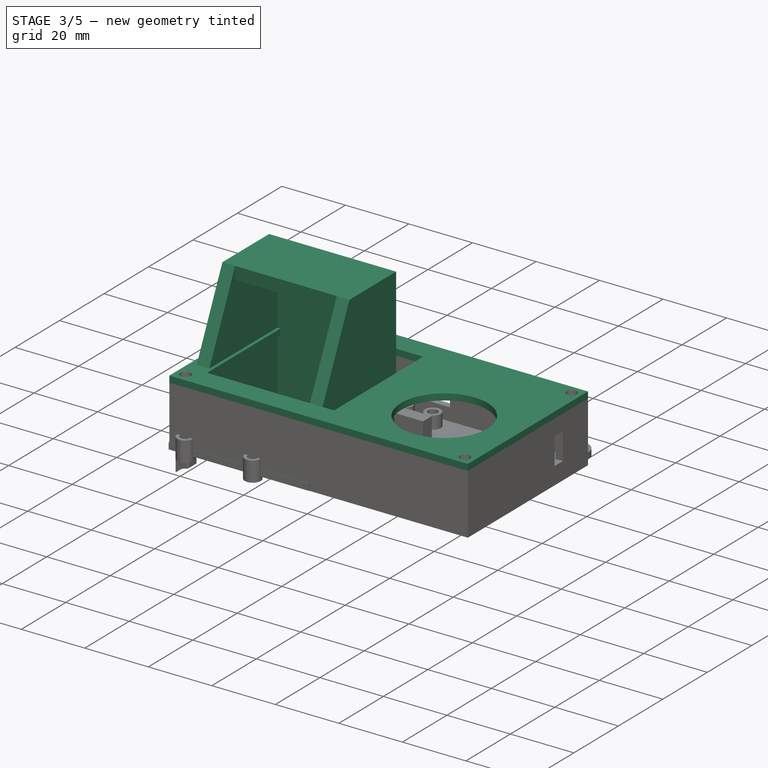
[diagram: stage 3 of 5 — iso view after this stage's code; geometry added in this stage tinted green]
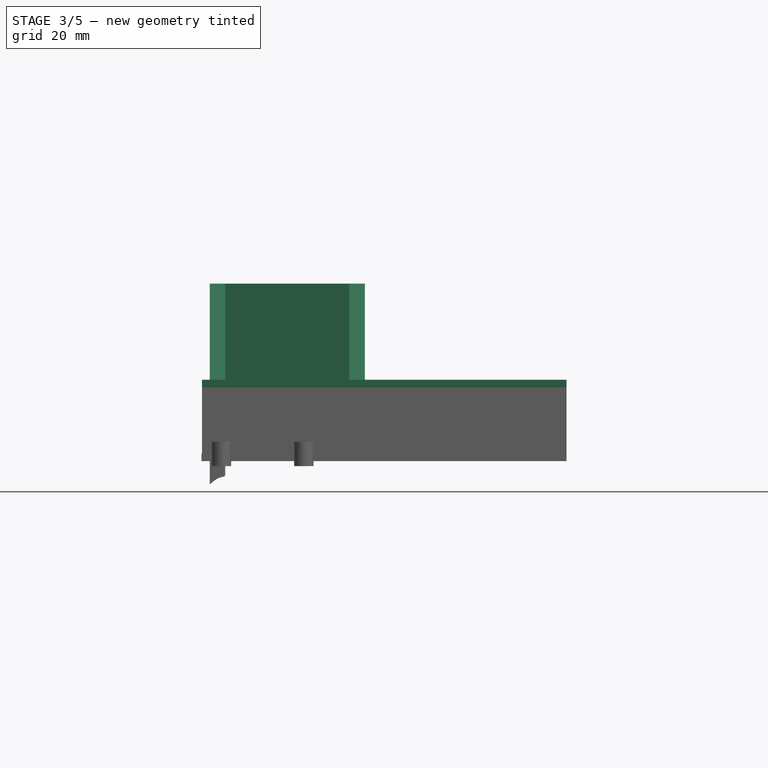
[diagram: stage 3 of 5 — front view after this stage's code; geometry added in this stage tinted green]
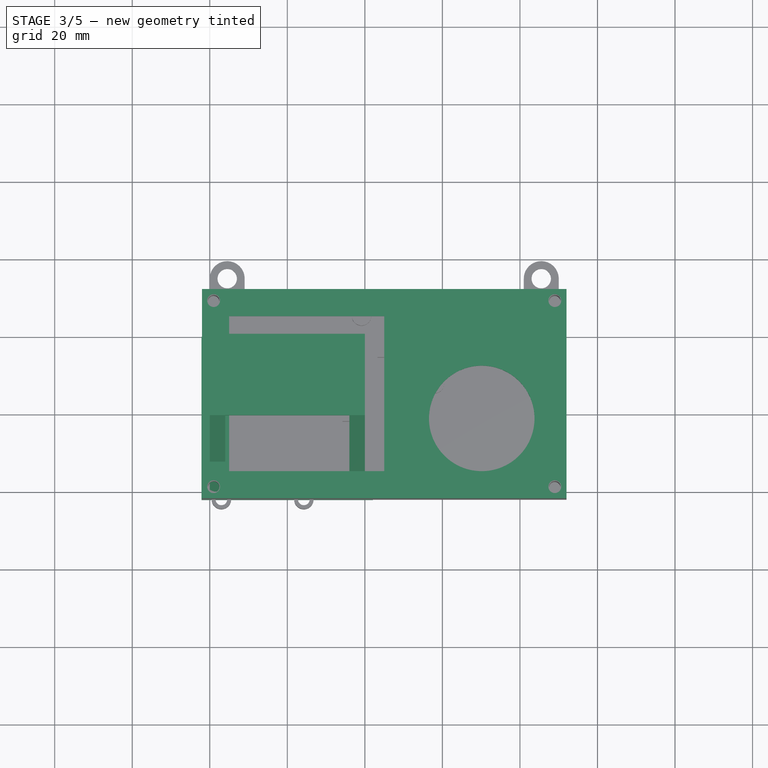
[diagram: stage 3 of 5 — top view after this stage's code; geometry added in this stage tinted green]
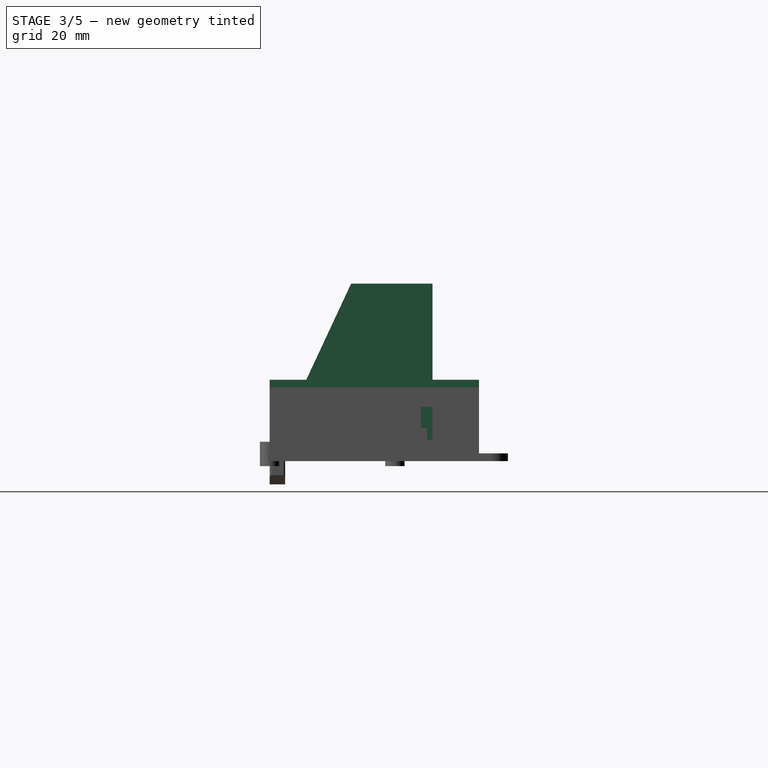
[diagram: stage 3 of 5 — right view after this stage's code; geometry added in this stage tinted green]
FEATURE [Sketcher::SketchObject] Sketch015  label="Sketch_JoyStick_base"
  FullyConstrained = true
  sketch-geometry (24):
    g0: LineSegment StartX=0 StartY=0 StartZ=0 EndX=33.86 EndY=0 EndZ=0
    g1: LineSegment StartX=33.86 StartY=0 StartZ=0 EndX=33.86 EndY=26.75 EndZ=0
    g2: LineSegment StartX=33.86 StartY=26.75 StartZ=0 EndX=0 EndY=26.75 EndZ=0
    g3: LineSegment StartX=0 StartY=26.75 StartZ=0 EndX=0 EndY=0 EndZ=0
    g4: Circle CenterX=5 CenterY=22.88 CenterZ=0 NormalX=0 NormalY=0 NormalZ=1 AngleXU=0 Radius=1.65
    g5: Circle CenterX=31.01 CenterY=22.88 CenterZ=0 NormalX=0 NormalY=0 NormalZ=1 AngleXU=0 Radius=1.65
    g6: Circle CenterX=4.99 CenterY=3.31 CenterZ=0 NormalX=0 NormalY=0 NormalZ=1 AngleXU=0 Radius=1.65
    g7: Circle CenterX=31.01 CenterY=3.31 CenterZ=0 NormalX=0 NormalY=0 NormalZ=1 AngleXU=0 Radius=1.65
    g8: LineSegment StartX=5 StartY=24.53 StartZ=0 EndX=5 EndY=26.75 EndZ=0
    g9: LineSegment StartX=31.01 StartY=24.53 StartZ=0 EndX=31.01 EndY=26.75 EndZ=0
    g10: LineSegment StartX=32.66 StartY=22.88 StartZ=0 EndX=33.86 EndY=22.88 EndZ=0
    g11: LineSegment StartX=0 StartY=22.88 StartZ=0 EndX=3.35 EndY=22.88 EndZ=0
    g12: LineSegment StartX=5 StartY=22.88 StartZ=0 EndX=5 EndY=24.53 EndZ=0
    g13: LineSegment StartX=3.35 StartY=22.88 StartZ=0 EndX=5 EndY=22.88 EndZ=0
    g14: LineSegment StartX=31.01 StartY=22.88 StartZ=0 EndX=31.01 EndY=24.53 EndZ=0
    g15: LineSegment StartX=31.01 StartY=22.88 StartZ=0 EndX=32.66 EndY=22.88 EndZ=0
    g16: LineSegment StartX=31.01 StartY=3.31 StartZ=0 EndX=32.66 EndY=3.31 EndZ=0
    g17: LineSegment StartX=31.01 StartY=3.31 StartZ=0 EndX=31.01 EndY=1.66 EndZ=0
    g18: LineSegment StartX=4.99 StartY=3.31 StartZ=0 EndX=4.99 EndY=1.66 EndZ=0
    g19: LineSegment StartX=4.99 StartY=3.31 StartZ=0 EndX=3.34 EndY=3.31 EndZ=0
    g20: LineSegment StartX=4.99 StartY=0 StartZ=0 EndX=4.99 EndY=1.66 EndZ=0
    g21: LineSegment StartX=0 StartY=3.31 StartZ=0 EndX=3.34 EndY=3.31 EndZ=0
    g22: LineSegment StartX=31.01 StartY=1.66 StartZ=0 EndX=31.01 EndY=0 EndZ=0
    g23: LineSegment StartX=32.66 StartY=3.31 StartZ=0 EndX=33.86 EndY=3.31 EndZ=0
  constraints (71):
    c: Coincident(g0,g1)
    c: Coincident(g1,g2)
    c: Coincident(g2,g3)
    c: Coincident(g3,g0)
    c: Horizontal(g0)
    c: Horizontal(g2)
    c: Vertical(g1)
    c: Vertical(g3)
    c: Coincident(g0,g-1)
    c: DistanceY(g1,g1) = 26.75
    c: DistanceX(g2,g2) = 33.86
    c: Diameter(g4) = 3.3
    c: Equal(g4,g5)
    c: Equal(g5,g6)
    c: Equal(g6,g7)
    c: Vertical(g8)
    c: Vertical(g9)
    c: DistanceY(g9,g9) = 2.22
    c: Horizontal(g10)
    c: Equal(g9,g8)
    c: DistanceX(g10,g10) = 1.2
    c: Horizontal(g11)
    c: DistanceX(g11,g11) = 3.35
    c: PointOnObject(g8,g2)
    c: PointOnObject(g11,g3)
    c: Coincident(g12,g4)
    c: PointOnObject(g12,g4)
    c: Vertical(g12)
    c: PointOnObject(g13,g4)
    c: Coincident(g13,g4)
    c: Horizontal(g13)
    c: Coincident(g13,g11)
    c: Coincident(g12,g8)
    c: PointOnObject(g9,g2)
    c: PointOnObject(g10,g1)
    c: Coincident(g14,g5)
    c: PointOnObject(g14,g5)
    c: Vertical(g14)
    c: Coincident(g15,g5)
    c: PointOnObject(g15,g5)
    c: Horizontal(g15)
    c: Coincident(g16,g7)
    c: PointOnObject(g16,g7)
    c: Coincident(g17,g7)
    c: PointOnObject(g17,g7)
    c: Vertical(g17)
    c: Horizontal(g16)
    c: Coincident(g18,g6)
    c: PointOnObject(g18,g6)
    c: Vertical(g18)
    c: Coincident(g19,g6)
    c: PointOnObject(g19,g6)
    c: Horizontal(g19)
    c: Coincident(g14,g9)
    c: Coincident(g15,g10)
    c: Vertical(g20)
    c: Horizontal(g21)
    c: Vertical(g22)
    c: Horizontal(g23)
    c: DistanceY(g20,g20) = 1.66
    c: Equal(g20,g22)
    c: PointOnObject(g20,g0)
    c: PointOnObject(g22,g0)
    c: DistanceX(g23,g23) = 1.2
    c: PointOnObject(g23,g1)
    c: Coincident(g16,g23)
    c: Coincident(g22,g17)
    c: DistanceX(g21,g21) = 3.34
    c: PointOnObject(g21,g3)
    c: Coincident(g20,g18)
    c: Coincident(g19,g21)
FEATURE [Sketcher::SketchObject] Sketch016  label="Sketch_JoyStick_connector"
  FullyConstrained = true
  sketch-geometry (5):
    g0: LineSegment StartX=-17 StartY=20.25 StartZ=0 EndX=0 EndY=20.25 EndZ=0
    g1: LineSegment StartX=0 StartY=20.25 StartZ=0 EndX=0 EndY=7.5 EndZ=0
    g2: LineSegment StartX=0 StartY=7.5 StartZ=0 EndX=-17 EndY=7.5 EndZ=0
    g3: LineSegment StartX=-17 StartY=7.5 StartZ=0 EndX=-17 EndY=20.25 EndZ=0
    g4: LineSegment StartX=0 StartY=0 StartZ=0 EndX=0 EndY=7.5 EndZ=0
  constraints (14):
    c: Coincident(g0,g1)
    c: Coincident(g1,g2)
    c: Coincident(g2,g3)
    c: Coincident(g3,g0)
    c: Horizontal(g0)
    c: Horizontal(g2)
    c: Vertical(g1)
    c: Vertical(g3)
    c: DistanceY(g1,g1) = 12.75
    c: DistanceX(g0,g0) = 17
    c: Coincident(g4,g-1)
    c: PointOnObject(g4,g-2)
    c: DistanceY(g4,g4) = 7.5
    c: Coincident(g1,g4)
FEATURE [Sketcher::SketchObject] Sketch017  label="Sketch_JoyStick_body"
  ExternalGeometry = -> [Sketch015]
  FullyConstrained = true
  sketch-geometry (4):
    g0: Circle CenterX=17.15 CenterY=13.61 CenterZ=0 NormalX=0 NormalY=0 NormalZ=1 AngleXU=0 Radius=13.61
    g1: LineSegment StartX=17.15 StartY=13.61 StartZ=0 EndX=17.15 EndY=0 EndZ=0
    g2: LineSegment StartX=17.15 StartY=13.61 StartZ=0 EndX=30.76 EndY=13.61 EndZ=0
    g3: LineSegment StartX=30.76 StartY=13.61 StartZ=0 EndX=33.86 EndY=13.61 EndZ=0
  constraints (12):
    c: Diameter(g0) = 27.22
    c: Coincident(g1,g0)
    c: PointOnObject(g1,g0)
    c: Vertical(g1)
    c: Coincident(g2,g0)
    c: PointOnObject(g2,g0)
    c: Horizontal(g2)
    c: PointOnObject(g1,g-1)
    c: Coincident(g3,g2)
    c: PointOnObject(g3,g-4)
    c: Horizontal(g3)
    c: DistanceX(g3,g3) = 3.1
FEATURE [Part::Extrusion] Extrude015  label="Extrude_JoyStick_body"
  Base = -> Sketch017
  Dir = (0,0,1)
  DirMode = 2
  FaceMakerClass = Part::FaceMakerBullseye
  LengthFwd = 19.27
  LengthRev = 0
  Placement = pos=(0,0,1.6) rot=(0,0,1;0rad)
  Solid = true
  Symmetric = false
FEATURE [Sketcher::SketchObject] Sketch018  label="Sketch_JoyStick_Stick"
  ExternalGeometry = -> [Sketch017]
  FullyConstrained = false
  sketch-geometry (5):
    g0: Circle CenterX=16.975 CenterY=14 CenterZ=0 NormalX=0 NormalY=0 NormalZ=1 AngleXU=0 Radius=11
    g1: LineSegment StartX=16.975 StartY=14 StartZ=0 EndX=16.975 EndY=28 EndZ=0
    g2: LineSegment StartX=16.975 StartY=14 StartZ=0 EndX=16.975 EndY=0 EndZ=0
    g3: LineSegment StartX=16.975 StartY=14 StartZ=0 EndX=3.34 EndY=14 EndZ=0
    g4: LineSegment StartX=16.975 StartY=14 StartZ=0 EndX=30.61 EndY=14 EndZ=0
  constraints (12):
    c: Diameter(g0) = 22
    c: Coincident(g1,g0)
    c: Vertical(g1)
    c: Coincident(g2,g0)
    c: PointOnObject(g2,g-1)
    c: Vertical(g2)
    c: Coincident(g3,g0)
    c: Horizontal(g3)
    c: Coincident(g4,g0)
    c: Horizontal(g4)
    c: Equal(g4,g3)
    c: Equal(g1,g2)
FEATURE [Part::Extrusion] Extrude016  label="Extrude_JoyStick_Stick"
  Base = -> Sketch018
  Dir = (0,0,1)
  DirMode = 2
  FaceMakerClass = Part::FaceMakerBullseye
  LengthFwd = 11
  LengthRev = 0
  Placement = pos=(0,0,20.87) rot=(0,0,1;0rad)
  Solid = true
  Symmetric = false
FEATURE [Part::Extrusion] Extrude017  label="Extrude_JoyStick_base"
  Base = -> Sketch015
  Dir = (0,0,1)
  DirMode = 2
  FaceMakerClass = Part::FaceMakerBullseye
  LengthFwd = 1.6
  LengthRev = 0
  Solid = true
  Symmetric = false
FEATURE [Part::Extrusion] Extrude018  label="Extrude_JoyStick_connector"
  Base = -> Sketch016
  Dir = (0,0,1)
  DirMode = 2
  FaceMakerClass = Part::FaceMakerBullseye
  LengthFwd = 4.3
  LengthRev = 0
  Placement = pos=(0.1,0,1.6) rot=(0,0,1;0rad)
  Solid = true
  Symmetric = false
FEATURE [Part::MultiFuse] Fusion005  label="Fusion_JoyStick_connector"
  Placement = pos=(53,5,5) rot=(0,0,1;0rad)
  Shapes = -> [Extrude015,Extrude016,Extrude017,Extrude018]
FEATURE [App::Link] Link  label="Link_Switck"
  LinkPlacement = pos=(89,37,14) rot=(0,1,0;1.5708rad)
  LinkedObject = -> Fusion004
  Placement = pos=(89,37,14) rot=(0,1,0;1.5708rad)
FEATURE [Spreadsheet::Sheet] Spreadsheet  label="Dim"
  cells = A1=Angle; B1(Angle)=65; D1=TopHeight; E1(TopHeight)==sin(B1) * B2; A2=FontLength; B2(FontLength)=45; D2=TopWidthUnderAngle; E2(TopWidthUnderAngle)==cos(B1) * B2; A3=M3HoleDia; B3(M3HoleDia)=3; A5=DiplayOffset; B5(DiplayOffset)=0.1
FEATURE [Sketcher::SketchObject] Sketch028  label="Sketch_ControllerCase_Top"
  ExternalGeometry = -> [Sketch027]
  FullyConstrained = true
  sketch-geometry (23):
    g0: Circle CenterX=1 CenterY=49 CenterZ=0 NormalX=0 NormalY=0 NormalZ=1 AngleXU=0 Radius=1.65
    g1: Circle CenterX=89 CenterY=49 CenterZ=0 NormalX=0 NormalY=0 NormalZ=1 AngleXU=0 Radius=1.65
    g2: Circle CenterX=89 CenterY=1 CenterZ=0 NormalX=0 NormalY=0 NormalZ=1 AngleXU=0 Radius=1.65
    g3: Circle CenterX=1 CenterY=1 CenterZ=0 NormalX=0 NormalY=0 NormalZ=1 AngleXU=0 Radius=1.65
    g4: LineSegment StartX=-2 StartY=52 StartZ=0 EndX=92 EndY=52 EndZ=0
    g5: LineSegment StartX=92 StartY=52 StartZ=0 EndX=92 EndY=-2 EndZ=0
    g6: LineSegment StartX=92 StartY=-2 StartZ=0 EndX=-2 EndY=-2 EndZ=0
    g7: LineSegment StartX=-2 StartY=-2 StartZ=0 EndX=-2 EndY=52 EndZ=0
    g8: LineSegment StartX=1 StartY=52 StartZ=0 EndX=1 EndY=49 EndZ=0
    g9: LineSegment StartX=1 StartY=49 StartZ=0 EndX=-2 EndY=49 EndZ=0
    g10: LineSegment StartX=89 StartY=52 StartZ=0 EndX=89 EndY=49 EndZ=0
    g11: LineSegment StartX=89 StartY=49 StartZ=0 EndX=92 EndY=49 EndZ=0
    g12: LineSegment StartX=1 StartY=1 StartZ=0 EndX=1 EndY=-2 EndZ=0
    g13: LineSegment StartX=1 StartY=1 StartZ=0 EndX=-2 EndY=1 EndZ=0
    g14: LineSegment StartX=89 StartY=1 StartZ=0 EndX=89 EndY=-2 EndZ=0
    g15: LineSegment StartX=89 StartY=1 StartZ=0 EndX=92 EndY=1 EndZ=0
    g16: LineSegment StartX=5 StartY=45 StartZ=0 EndX=45 EndY=45 EndZ=0
    g17: LineSegment StartX=45 StartY=45 StartZ=0 EndX=45 EndY=5 EndZ=0
    g18: LineSegment StartX=45 StartY=5 StartZ=0 EndX=5 EndY=5 EndZ=0
    g19: LineSegment StartX=5 StartY=5 StartZ=0 EndX=5 EndY=45 EndZ=0
    g20: LineSegment StartX=5 StartY=45 StartZ=0 EndX=5 EndY=52 EndZ=0
    g21: LineSegment StartX=5 StartY=5 StartZ=0 EndX=5 EndY=-2 EndZ=0
    g22: LineSegment StartX=5 StartY=45 StartZ=0 EndX=-2 EndY=45 EndZ=0
  constraints (67):
    c: Coincident(g4,g5)
    c: Coincident(g5,g6)
    c: Coincident(g6,g7)
    c: Coincident(g7,g4)
    c: Horizontal(g4)
    c: Horizontal(g6)
    c: Vertical(g5)
    c: Vertical(g7)
    c: Coincident(g4,g-3)
    c: Coincident(g5,g-4)
    c: Diameter(g0) = 3.3
    c: Equal(g0,g3)
    c: Equal(g3,g2)
    c: Equal(g2,g1)
    c: Vertical(g8)
    c: Coincident(g9,g8)
    c: Horizontal(g9)
    c: Vertical(g10)
    c: Coincident(g11,g10)
    c: Horizontal(g11)
    c: Vertical(g12)
    c: Vertical(g14)
    c: Horizontal(g15)
    c: Horizontal(g13)
    c: DistanceY(g8,g8) = 3
    c: Equal(g8,g10)
    c: Equal(g10,g14)
    c: Equal(g14,g12)
    c: DistanceX(g9,g9) = 3
    c: Equal(g9,g11)
    c: Equal(g11,g15)
    c: Equal(g15,g13)
    c: Coincident(g0,g8)
    c: Coincident(g1,g10)
    c: PointOnObject(g9,g7)
    c: PointOnObject(g8,g4)
    c: Coincident(g13,g12)
    c: Coincident(g3,g12)
    c: PointOnObject(g13,g7)
    c: PointOnObject(g12,g6)
    c: Coincident(g15,g14)
    c: Coincident(g14,g2)
    c: PointOnObject(g15,g5)
    c: PointOnObject(g14,g6)
    c: PointOnObject(g11,g5)
    c: PointOnObject(g10,g4)
    c: Coincident(g16,g17)
    c: Coincident(g17,g18)
    c: Coincident(g18,g19)
    c: Coincident(g19,g16)
    c: Horizontal(g16)
    c: Horizontal(g18)
    c: Vertical(g17)
    c: Vertical(g19)
    c: DistanceX(g16,g16) = 40
    c: DistanceY(g17,g17) = 40
    c: Coincident(g20,g16)
    c: PointOnObject(g20,g4)
    c: Vertical(g20)
    c: Coincident(g21,g18)
    c: PointOnObject(g21,g6)
    c: Vertical(g21)
    c: Equal(g21,g20)
    c: Coincident(g22,g16)
    c: PointOnObject(g22,g7)
    c: Horizontal(g22)
    c: DistanceX(g22,g22) = 7
FEATURE [Part::Extrusion] Extrude028  label="Extrude_ControllerCase_Top"
  Base = -> Sketch028
  Dir = (0,0,1)
  DirMode = 2
  FaceMakerClass = Part::FaceMakerBullseye
  LengthFwd = 2
  LengthRev = 0
  Placement = pos=(0,0,19) rot=(0,0,1;0rad)
  Solid = true
  Symmetric = false
FEATURE [App::Link] Link001  label="Fusion_JoyStick_connector001"
  LinkPlacement = pos=(53,5,5) rot=(0,0,1;0rad)
  LinkedObject = -> Fusion005
  Placement = pos=(53,5,5) rot=(0,0,1;0rad)
FEATURE [Part::Cut] Cut003  label="Cut_ControllerCase_Top"
  Base = -> Extrude028
  Tool = -> Link001
FEATURE [Part::Cut] Cut007  label="Cut_ControllerCase_Wall_WithCutOuts"
  Base = -> Cut006
  Tool = -> Extrude029
FEATURE [Part::MultiFuse] Fusion008  label="Fusion_ControllerCase_Bottom"
  Shapes = -> [Cut007,Fusion007]
FEATURE [Part::Extrusion] Extrude040  label="Extrude_DisplayCase_Side"
  Base = -> Sketch032
  Dir = (1,0,0)
  DirMode = 2
  FaceMakerClass = Part::FaceMakerBullseye
  LengthFwd = 4
  LengthRev = 0
  Solid = true
  Symmetric = false
FEATURE [Sketcher::SketchObject] Sketch040  label="Sketch_DisplayCase_Bottom"
  FullyConstrained = true
  sketch-geometry (18):
    g0: LineSegment StartX=0 StartY=0 StartZ=0 EndX=40 EndY=0 EndZ=0
    g1: LineSegment StartX=40 StartY=40 StartZ=0 EndX=0 EndY=40 EndZ=0
    g2: LineSegment StartX=42.1213 StartY=40 StartZ=0 EndX=42.1213 EndY=-2.12132 EndZ=0
    g3: LineSegment StartX=42.1213 StartY=-2.12132 StartZ=0 EndX=-2.12132 EndY=-2.12132 EndZ=0
    g4: LineSegment StartX=-2.12132 StartY=-2.12132 StartZ=0 EndX=-2.12132 EndY=40 EndZ=0
    g5: LineSegment StartX=40 StartY=0 StartZ=0 EndX=42.1213 EndY=-2.12132 EndZ=0
    g6: LineSegment StartX=0 StartY=0 StartZ=0 EndX=-2.12132 EndY=-2.12132 EndZ=0
    g7: LineSegment StartX=0 StartY=0 StartZ=0 EndX=0 EndY=-2.12132 EndZ=0
    g8: LineSegment StartX=0 StartY=0 StartZ=0 EndX=-2.12132 EndY=0 EndZ=0
    g9: LineSegment StartX=40 StartY=0 StartZ=0 EndX=42.1213 EndY=0 EndZ=0
    g10: LineSegment StartX=40 StartY=0 StartZ=0 EndX=40 EndY=-2.12132 EndZ=0
    g11: LineSegment StartX=40 StartY=40 StartZ=0 EndX=42.1213 EndY=40 EndZ=0
    g12: LineSegment StartX=0 StartY=40 StartZ=0 EndX=-2.12132 EndY=40 EndZ=0
    g13: LineSegment StartX=0 StartY=40 StartZ=0 EndX=0 EndY=38 EndZ=0
    g14: LineSegment StartX=0 StartY=38 StartZ=0 EndX=0 EndY=0 EndZ=0
    g15: LineSegment StartX=40 StartY=0 StartZ=0 EndX=40 EndY=38 EndZ=0
    g16: LineSegment StartX=40 StartY=38 StartZ=0 EndX=40 EndY=40 EndZ=0
    g17: LineSegment StartX=0 StartY=38 StartZ=0 EndX=40 EndY=38 EndZ=0
  constraints (49):
    c: Coincident(g0,g15)
    c: Coincident(g16,g1)
    c: Coincident(g1,g13)
    c: Coincident(g14,g0)
    c: Horizontal(g0)
    c: Horizontal(g1)
    c: Coincident(g0,g-1)
    c: DistanceX(g1,g1) = 40
    c: DistanceY(g15,g16) = 40
    c: Coincident(g2,g3)
    c: Coincident(g3,g4)
    c: Horizontal(g3)
    c: Vertical(g2)
    c: Vertical(g4)
    c: Coincident(g5,g0)
    c: Coincident(g5,g2)
    c: Coincident(g6,g0)
    c: Coincident(g6,g3)
    c: Distance(g0,g3) = 3
    c: Coincident(g7,g0)
    c: PointOnObject(g7,g3)
    c: Vertical(g7)
    c: Coincident(g8,g0)
    c: PointOnObject(g8,g4)
    c: Horizontal(g8)
    c: Equal(g7,g8)
    c: Coincident(g9,g0)
    c: PointOnObject(g9,g2)
    c: Horizontal(g9)
    c: Coincident(g10,g0)
    c: PointOnObject(g10,g3)
    c: Vertical(g10)
    c: Equal(g9,g10)
    c: Coincident(g11,g16)
    c: Coincident(g11,g2)
    c: Horizontal(g11)
    c: Coincident(g12,g1)
    c: Coincident(g12,g4)
    c: Horizontal(g12)
    c: Coincident(g13,g14)
    c: Vertical(g13)
    c: Vertical(g14)
    c: Coincident(g15,g16)
    c: Vertical(g15)
    c: Vertical(g16)
    c: DistanceY(g15,g1) = 2
    c: Equal(g16,g13)
    c: Coincident(g17,g14)
    c: Coincident(g17,g15)
FEATURE [Part::Extrusion] Extrude041  label="Extrude_DisplayCase_Bottom"
  Base = -> Sketch040
  Dir = (0,0,1)
  DirMode = 2
  FaceMakerClass = Part::FaceMakerBullseye
  LengthFwd = 2
  LengthRev = 0
  Solid = true
  Symmetric = false
FEATURE [App::Link] Link006  label="Extrude_DisplayCase_Side001"
  LinkPlacement = pos=(36,0,0) rot=(0,0,1;0rad)
  LinkedObject = -> Extrude040
  Placement = pos=(36,0,0) rot=(0,0,1;0rad)
FEATURE [Sketcher::SketchObject] Sketch041  label="Sketch_DisplayCase_Back"
  FullyConstrained = true
  Placement = pos=(0,0,0) rot=(1,0,0;1.5708rad)
  expr: Constraints[10] = <<Dim>>.TopHeight + 5
  sketch-geometry (4):
    g0: LineSegment StartX=0 StartY=0 StartZ=0 EndX=40 EndY=0 EndZ=0
    g1: LineSegment StartX=40 StartY=0 StartZ=0 EndX=40 EndY=45.7839 EndZ=0
    g2: LineSegment StartX=40 StartY=45.7839 StartZ=0 EndX=0 EndY=45.7839 EndZ=0
    g3: LineSegment StartX=0 StartY=45.7839 StartZ=0 EndX=0 EndY=0 EndZ=0
  constraints (11):
    c: Coincident(g0,g1)
    c: Coincident(g1,g2)
    c: Coincident(g2,g3)
    c: Coincident(g3,g0)
    c: Horizontal(g0)
    c: Horizontal(g2)
    c: Vertical(g1)
    c: Vertical(g3)
    c: Coincident(g0,g-1)
    c: DistanceX(g0,g0) = 40
    c: DistanceY(g1,g1) = 45.7839
FEATURE [Part::Extrusion] Extrude042  label="Extrude_DisplayCase_Back"
  Base = -> Sketch041
  Dir = (0,-1,-3e-16)
  DirMode = 2
  FaceMakerClass = Part::FaceMakerBullseye
  LengthFwd = 2
  LengthRev = 0
  Placement = pos=(0,40,0) rot=(0,0,1;0rad)
  Solid = true
  Symmetric = false
FEATURE [Sketcher::SketchObject] Sketch042  label="Sketch_DisplayCase_Top"
  ExternalGeometry = -> [Extrude040,Extrude042]
  FullyConstrained = true
  sketch-geometry (6):
    g0: GeomPoint X=4 Y=38 Z=0
    g1: GeomPoint X=38 Y=38 Z=0
    g2: LineSegment StartX=4 StartY=38 StartZ=0 EndX=38 EndY=38 EndZ=0
    g3: LineSegment StartX=38 StartY=38 StartZ=0 EndX=38 EndY=19.0178 EndZ=0
    g4: LineSegment StartX=38 StartY=19.0178 StartZ=0 EndX=4 EndY=19.0178 EndZ=0
    g5: LineSegment StartX=4 StartY=19.0178 StartZ=0 EndX=4 EndY=38 EndZ=0
  constraints (13):
    c: PointOnObject(g0,g-4)
    c: PointOnObject(g0,g-3)
    c: PointOnObject(g1,g-4)
    c: Distance(g1,g-4) = 2
    c: Coincident(g2,g3)
    c: Coincident(g3,g4)
    c: Coincident(g4,g5)
    c: Coincident(g5,g2)
    c: Horizontal(g4)
    c: Vertical(g3)
    c: Coincident(g2,g0)
    c: Coincident(g2,g1)
    c: Coincident(g4,g-3)
FEATURE [Part::Extrusion] Extrude043  label="Extrude_DisplayCase_Top"
  Base = -> Sketch042
  Dir = (0,0,1)
  DirMode = 2
  FaceMakerClass = Part::FaceMakerBullseye
  LengthFwd = -4
  LengthRev = 0
  Placement = pos=(0,0,45.7839) rot=(0,0,1;0rad)
  Solid = true
  Symmetric = false
  expr: .Placement.Base.z = <<Dim>>.TopHeight + 5
FEATURE [Sketcher::SketchObject] Sketch043  label="Sketch_DisplayCase_FrontBottom"
  FullyConstrained = true
  Placement = pos=(0,0,0) rot=(1,0,0;1.5708rad)
  sketch-geometry (4):
    g0: LineSegment StartX=0 StartY=0 StartZ=0 EndX=40 EndY=0 EndZ=0
    g1: LineSegment StartX=40 StartY=0 StartZ=0 EndX=40 EndY=5 EndZ=0
    g2: LineSegment StartX=40 StartY=5 StartZ=0 EndX=0 EndY=5 EndZ=0
    g3: LineSegment StartX=0 StartY=5 StartZ=0 EndX=0 EndY=0 EndZ=0
  constraints (11):
    c: Coincident(g0,g1)
    c: Coincident(g1,g2)
    c: Coincident(g2,g3)
    c: Coincident(g3,g0)
    c: Horizontal(g0)
    c: Horizontal(g2)
    c: Vertical(g1)
    c: Vertical(g3)
    c: Coincident(g0,g-1)
    c: DistanceY(g1,g1) = 5
    c: DistanceX(g2,g2) = 40
FEATURE [Part::Extrusion] Extrude044  label="Extrude_DisplayCase_FrontBottom"
  Base = -> Sketch043
  Dir = (0,-1,-3e-16)
  DirMode = 2
  FaceMakerClass = Part::FaceMakerBullseye
  LengthFwd = -4
  LengthRev = 0
  Solid = true
  Symmetric = false
FEATURE [App::Link] Link007  label="Fusion_DisplayCase_Front001"
  LinkPlacement = pos=(6.5,3.2,12) rot=(1,0,0;1.13446rad)
  LinkedObject = -> Fusion012
  Placement = pos=(6.5,3.2,12) rot=(1,0,0;1.13446rad)
  expr: .Placement.Rotation.Angle = <<Dim>>.Angle
FEATURE [Part::MultiFuse] Fusion013  label="Fusion_DisplayCase"
  Shapes = -> [Extrude040,Extrude041,Link006,Extrude042,Extrude043,Extrude044]
FEATURE [Part::Cut] Cut011  label="Cut_ControllerCase_Bottom"
  Base = -> Fusion008
  Tool = -> Extrude045
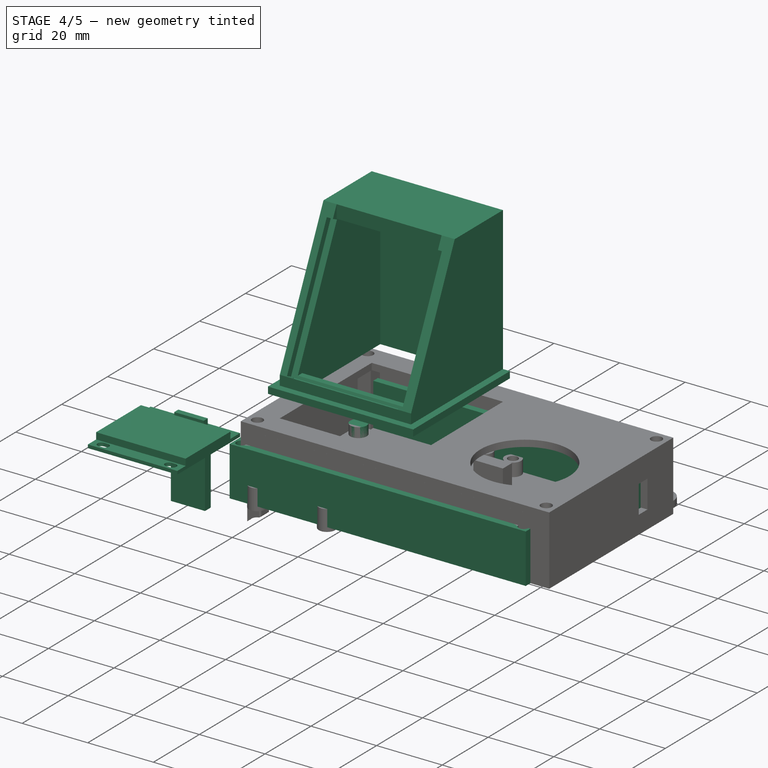
[diagram: stage 4 of 5 — iso view after this stage's code; geometry added in this stage tinted green]
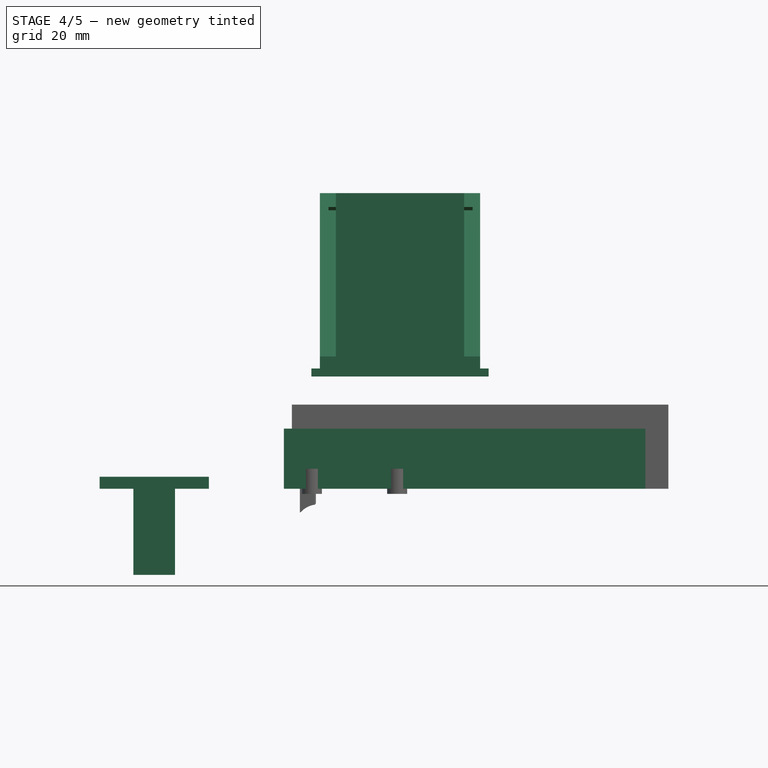
[diagram: stage 4 of 5 — front view after this stage's code; geometry added in this stage tinted green]
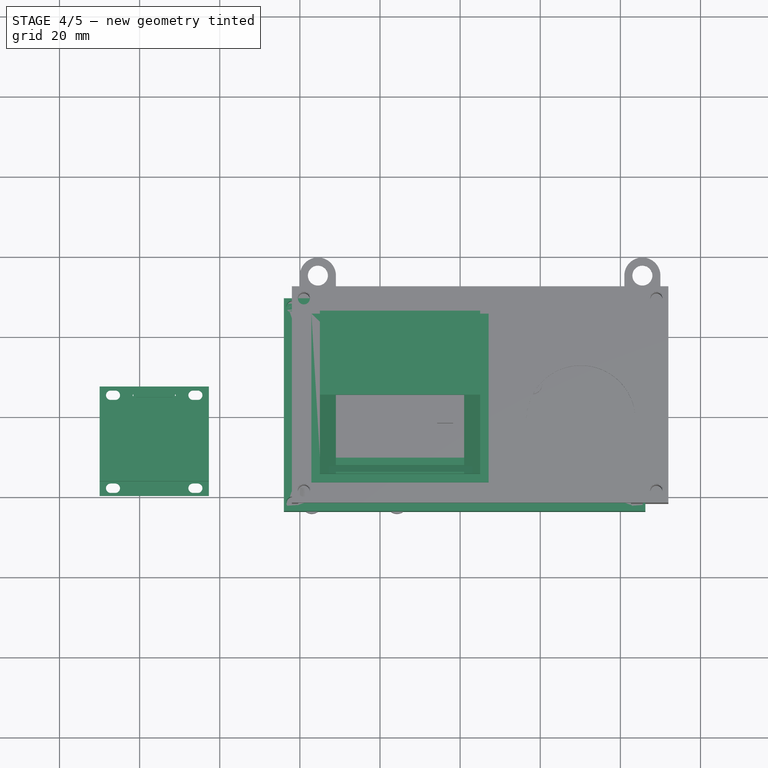
[diagram: stage 4 of 5 — top view after this stage's code; geometry added in this stage tinted green]
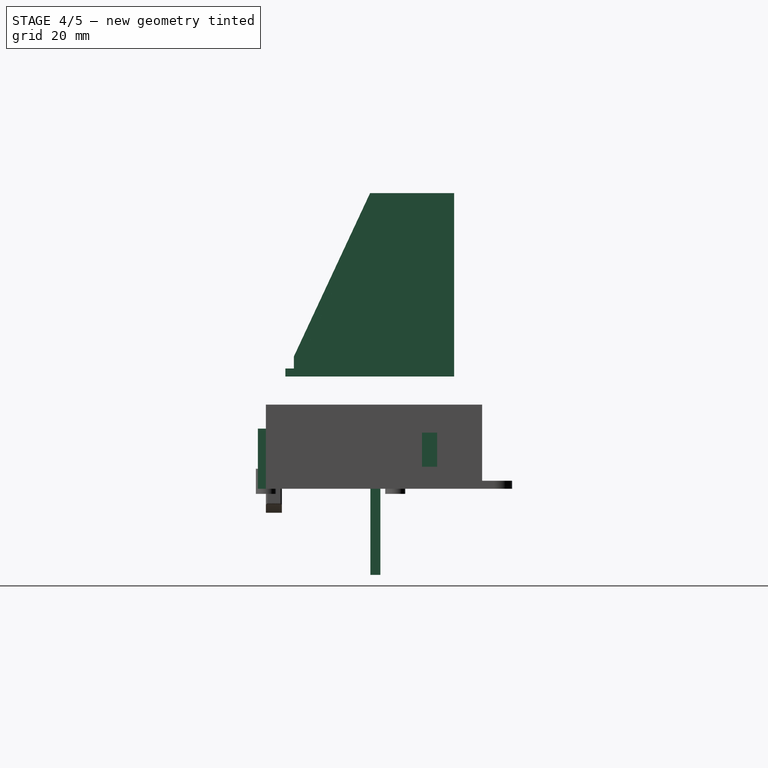
[diagram: stage 4 of 5 — right view after this stage's code; geometry added in this stage tinted green]
FEATURE [Sketcher::SketchObject] Sketch006  label="Sketch_Display_base"
  FullyConstrained = true
  sketch-geometry (45):
    g0: LineSegment StartX=0 StartY=0 StartZ=0 EndX=27.27 EndY=0 EndZ=0
    g1: LineSegment StartX=27.27 StartY=0 StartZ=0 EndX=27.27 EndY=27.31 EndZ=0
    g2: LineSegment StartX=27.27 StartY=27.31 StartZ=0 EndX=0 EndY=27.31 EndZ=0
    g3: LineSegment StartX=0 StartY=27.31 StartZ=0 EndX=0 EndY=0 EndZ=0
    g4: ArcOfCircle CenterX=2.775 CenterY=25.135 CenterZ=0 NormalX=0 NormalY=0 NormalZ=1 AngleXU=0 Radius=1.175 StartAngle=1.5708 EndAngle=4.71239
    g5: ArcOfCircle CenterX=3.925 CenterY=25.135 CenterZ=0 NormalX=0 NormalY=0 NormalZ=1 AngleXU=0 Radius=1.175 StartAngle=4.71239 EndAngle=7.85398
    g6: LineSegment StartX=2.775 StartY=23.96 StartZ=0 EndX=3.925 EndY=23.96 EndZ=0
    g7: LineSegment StartX=3.925 StartY=26.31 StartZ=0 EndX=2.775 EndY=26.31 EndZ=0
    g8: ArcOfCircle CenterX=23.345 CenterY=25.135 CenterZ=0 NormalX=0 NormalY=0 NormalZ=1 AngleXU=0 Radius=1.175 StartAngle=1.5708 EndAngle=4.71239
    g9: ArcOfCircle CenterX=24.495 CenterY=25.135 CenterZ=0 NormalX=0 NormalY=0 NormalZ=1 AngleXU=0 Radius=1.175 StartAngle=4.71239 EndAngle=7.85398
    g10: LineSegment StartX=23.345 StartY=23.96 StartZ=0 EndX=24.495 EndY=23.96 EndZ=0
    g11: LineSegment StartX=24.495 StartY=26.31 StartZ=0 EndX=23.345 EndY=26.31 EndZ=0
    g12: ArcOfCircle CenterX=2.775 CenterY=1.925 CenterZ=0 NormalX=0 NormalY=0 NormalZ=1 AngleXU=0 Radius=1.175 StartAngle=1.5708 EndAngle=4.71239
    g13: ArcOfCircle CenterX=3.925 CenterY=1.925 CenterZ=0 NormalX=0 NormalY=0 NormalZ=1 AngleXU=0 Radius=1.175 StartAngle=4.71239 EndAngle=7.85398
    g14: LineSegment StartX=2.775 StartY=0.75 StartZ=0 EndX=3.925 EndY=0.75 EndZ=0
    g15: LineSegment StartX=3.925 StartY=3.1 StartZ=0 EndX=2.775 EndY=3.1 EndZ=0
    g16: ArcOfCircle CenterX=23.345 CenterY=1.925 CenterZ=0 NormalX=0 NormalY=0 NormalZ=1 AngleXU=0 Radius=1.175 StartAngle=1.5708 EndAngle=4.71239
    g17: ArcOfCircle CenterX=24.495 CenterY=1.925 CenterZ=0 NormalX=0 NormalY=0 NormalZ=1 AngleXU=0 Radius=1.175 StartAngle=4.71239 EndAngle=7.85398
    g18: LineSegment StartX=23.345 StartY=0.75 StartZ=0 EndX=24.495 EndY=0.75 EndZ=0
    g19: LineSegment StartX=24.495 StartY=3.1 StartZ=0 EndX=23.345 EndY=3.1 EndZ=0
    g20: LineSegment StartX=1.6 StartY=25.135 StartZ=0 EndX=5.1 EndY=25.135 EndZ=0
    g21: LineSegment StartX=22.17 StartY=25.135 StartZ=0 EndX=25.67 EndY=25.135 EndZ=0
    g22: LineSegment StartX=1.6 StartY=1.925 StartZ=0 EndX=5.1 EndY=1.925 EndZ=0
    g23: LineSegment StartX=22.17 StartY=1.925 StartZ=0 EndX=25.67 EndY=1.925 EndZ=0
    g24: LineSegment StartX=3.925 StartY=26.31 StartZ=0 EndX=3.925 EndY=23.96 EndZ=0
    g25: LineSegment StartX=24.495 StartY=26.31 StartZ=0 EndX=24.495 EndY=23.96 EndZ=0
    g26: LineSegment StartX=3.925 StartY=3.1 StartZ=0 EndX=3.925 EndY=0.75 EndZ=0
    g27: LineSegment StartX=24.495 StartY=3.1 StartZ=0 EndX=24.495 EndY=0.75 EndZ=0
    g28: LineSegment StartX=3.925 StartY=27.31 StartZ=0 EndX=3.925 EndY=26.31 EndZ=0
    g29: LineSegment StartX=24.495 StartY=27.31 StartZ=0 EndX=24.495 EndY=26.31 EndZ=0
    g30: LineSegment StartX=27.27 StartY=25.135 StartZ=0 EndX=25.67 EndY=25.135 EndZ=0
    g31: LineSegment StartX=0 StartY=25.135 StartZ=0 EndX=1.6 EndY=25.135 EndZ=0
    g32: LineSegment StartX=3.925 StartY=0.75 StartZ=0 EndX=3.925 EndY=0 EndZ=0
    g33: LineSegment StartX=24.495 StartY=0.75 StartZ=0 EndX=24.495 EndY=0 EndZ=0
    g34: LineSegment StartX=27.27 StartY=1.925 StartZ=0 EndX=25.67 EndY=1.925 EndZ=0
    g35: LineSegment StartX=0 StartY=1.925 StartZ=0 EndX=1.6 EndY=1.925 EndZ=0
    g36: LineSegment StartX=5.1 StartY=25.135 StartZ=0 EndX=8.514 EndY=25.135 EndZ=0
    g37: LineSegment StartX=8.514 StartY=25.135 StartZ=0 EndX=11.928 EndY=25.135 EndZ=0
    g38: LineSegment StartX=11.928 StartY=25.135 StartZ=0 EndX=15.342 EndY=25.135 EndZ=0
    g39: LineSegment StartX=15.342 StartY=25.135 StartZ=0 EndX=18.756 EndY=25.135 EndZ=0
    g40: LineSegment StartX=18.756 StartY=25.135 StartZ=0 EndX=22.17 EndY=25.135 EndZ=0
    g41: Circle CenterX=8.514 CenterY=25.135 CenterZ=0 NormalX=0 NormalY=0 NormalZ=1 AngleXU=0 Radius=0.25
    g42: Circle CenterX=11.928 CenterY=25.135 CenterZ=0 NormalX=0 NormalY=0 NormalZ=1 AngleXU=0 Radius=0.25
    g43: Circle CenterX=15.342 CenterY=25.135 CenterZ=0 NormalX=0 NormalY=0 NormalZ=1 AngleXU=0 Radius=0.25
    g44: Circle CenterX=18.756 CenterY=25.135 CenterZ=0 NormalX=0 NormalY=0 NormalZ=1 AngleXU=0 Radius=0.25
  constraints (121):
    c: Coincident(g0,g1)
    c: Coincident(g1,g2)
    c: Coincident(g2,g3)
    c: Coincident(g3,g0)
    c: Horizontal(g0)
    c: Horizontal(g2)
    c: Vertical(g1)
    c: Vertical(g3)
    c: Coincident(g0,g-1)
    c: DistanceX(g0,g0) = 27.27
    c: DistanceY(g1,g1) = 27.31
    c: Tangent(g4,g6) = -1.5708
    c: Tangent(g6,g5) = -1.5708
    c: Tangent(g5,g7) = -1.5708
    c: Tangent(g7,g4) = -1.5708
    c: Equal(g4,g5)
    c: Horizontal(g6)
    c: Tangent(g8,g10) = -1.5708
    c: Tangent(g10,g9) = -1.5708
    c: Tangent(g9,g11) = -1.5708
    c: Tangent(g11,g8) = -1.5708
    c: Equal(g8,g9)
    c: Horizontal(g10)
    c: Tangent(g12,g14) = -1.5708
    c: Tangent(g14,g13) = -1.5708
    c: Tangent(g13,g15) = -1.5708
    c: Tangent(g15,g12) = -1.5708
    c: Equal(g12,g13)
    c: Horizontal(g14)
    c: Tangent(g16,g18) = -1.5708
    c: Tangent(g18,g17) = -1.5708
    c: Tangent(g17,g19) = -1.5708
    c: Tangent(g19,g16) = -1.5708
    c: Equal(g16,g17)
    c: Horizontal(g18)
    c: Horizontal(g20)
    c: DistanceX(g20,g20) = 3.5
    c: PointOnObject(g4,g20)
    c: PointOnObject(g20,g5)
    c: PointOnObject(g20,g4)
    c: Horizontal(g21)
    c: Horizontal(g22)
    c: Horizontal(g23)
    c: Equal(g20,g21)
    c: Equal(g21,g22)
    c: Equal(g22,g23)
    c: PointOnObject(g8,g21)
    c: PointOnObject(g21,g8)
    c: PointOnObject(g21,g9)
    c: PointOnObject(g12,g22)
    c: PointOnObject(g22,g12)
    c: PointOnObject(g22,g13)
    c: PointOnObject(g16,g23)
    c: PointOnObject(g23,g16)
    c: PointOnObject(g23,g17)
    c: DistanceY(g24,g24) = 2.35
    c: Equal(g24,g25)
    c: Equal(g25,g26)
    c: Equal(g26,g27)
    c: Coincident(g24,g5)
    c: Coincident(g24,g5)
    c: Coincident(g25,g9)
    c: Coincident(g25,g9)
    c: Coincident(g27,g17)
    c: Coincident(g17,g27)
    c: Coincident(g26,g13)
    c: Coincident(g26,g13)
    c: Vertical(g28)
    c: Vertical(g29)
    c: DistanceY(g29,g29) = 1
    c: Equal(g29,g28)
    c: Horizontal(g30)
    c: Horizontal(g31)
    c: Vertical(g32)
    c: Vertical(g33)
    c: Horizontal(g34)
    c: Horizontal(g35)
    c: DistanceY(g33,g33) = 0.75
    c: Equal(g33,g32)
    c: DistanceX(g34,g34) = 1.6
    c: Equal(g34,g35)
    c: PointOnObject(g33,g0)
    c: Coincident(g17,g33)
    c: Coincident(g34,g23)
    c: PointOnObject(g34,g1)
    c: PointOnObject(g35,g3)
    c: Coincident(g32,g13)
    c: PointOnObject(g32,g0)
    c: Coincident(g22,g35)
    c: PointOnObject(g28,g2)
    c: Coincident(g5,g28)
    c: PointOnObject(g29,g2)
    c: Coincident(g29,g9)
    c: DistanceX(g30,g30) = 1.6
    c: Equal(g30,g31)
    c: PointOnObject(g30,g1)
    c: Coincident(g30,g21)
    c: PointOnObject(g31,g3)
    c: Coincident(g31,g20)
    c: Coincident(g36,g20)
    c: Coincident(g40,g21)
    c: Coincident(g36,g37)
    c: Coincident(g37,g38)
    c: Coincident(g38,g39)
    c: Coincident(g39,g40)
    c: Horizontal(g40)
    c: Horizontal(g36)
    c: Horizontal(g37)
    c: Horizontal(g38)
    c: Equal(g36,g37)
    c: Equal(g37,g38)
    c: Equal(g38,g39)
    c: Equal(g39,g40)
    c: Diameter(g41) = 0.5
    c: Equal(g41,g42)
    c: Equal(g42,g43)
    c: Equal(g43,g44)
    c: Coincident(g41,g36)
    c: Coincident(g42,g37)
    c: Coincident(g43,g38)
    c: Coincident(g44,g39)
FEATURE [Sketcher::SketchObject] Sketch007  label="Sketch_Diplay_parts"
  ExternalGeometry = -> [Sketch006]
  FullyConstrained = true
  sketch-geometry (12):
    g0: LineSegment StartX=0 StartY=23.11 StartZ=0 EndX=27.27 EndY=23.11 EndZ=0
    g1: LineSegment StartX=27.27 StartY=23.11 StartZ=0 EndX=27.27 EndY=3.61 EndZ=0
    g2: LineSegment StartX=27.27 StartY=3.61 StartZ=0 EndX=0 EndY=3.61 EndZ=0
    g3: LineSegment StartX=0 StartY=3.61 StartZ=0 EndX=0 EndY=23.11 EndZ=0
    g4: LineSegment StartX=27.27 StartY=23.11 StartZ=0 EndX=27.27 EndY=27.31 EndZ=0
    g5: LineSegment StartX=9.135 StartY=26.31 StartZ=0 EndX=18.135 EndY=26.31 EndZ=0
    g6: LineSegment StartX=18.135 StartY=26.31 StartZ=0 EndX=18.135 EndY=24.56 EndZ=0
    g7: LineSegment StartX=18.135 StartY=24.56 StartZ=0 EndX=9.135 EndY=24.56 EndZ=0
    g8: LineSegment StartX=9.135 StartY=24.56 StartZ=0 EndX=9.135 EndY=26.31 EndZ=0
    g9: LineSegment StartX=18.135 StartY=26.31 StartZ=0 EndX=18.135 EndY=27.31 EndZ=0
    g10: LineSegment StartX=18.135 StartY=26.31 StartZ=0 EndX=27.27 EndY=26.31 EndZ=0
    g11: LineSegment StartX=9.135 StartY=26.31 StartZ=0 EndX=0 EndY=26.31 EndZ=0
  constraints (35):
    c: Coincident(g0,g1)
    c: Coincident(g1,g2)
    c: Coincident(g2,g3)
    c: Coincident(g3,g0)
    c: Horizontal(g0)
    c: Horizontal(g2)
    c: Vertical(g1)
    c: Vertical(g3)
    c: PointOnObject(g0,g-2)
    c: PointOnObject(g1,g-4)
    c: DistanceY(g1,g1) = 19.5
    c: Coincident(g4,g0)
    c: Coincident(g4,g-4)
    c: DistanceY(g4,g4) = 4.2
    c: Coincident(g5,g6)
    c: Coincident(g6,g7)
    c: Coincident(g7,g8)
    c: Coincident(g8,g5)
    c: Horizontal(g5)
    c: Horizontal(g7)
    c: Vertical(g6)
    c: Vertical(g8)
    c: DistanceY(g6,g6) = 1.75
    c: DistanceX(g5,g5) = 9
    c: Coincident(g9,g5)
    c: PointOnObject(g9,g-3)
    c: Vertical(g9)
    c: DistanceY(g9,g9) = 1
    c: Coincident(g10,g5)
    c: PointOnObject(g10,g4)
    c: Horizontal(g10)
    c: Coincident(g11,g5)
    c: PointOnObject(g11,g-2)
    c: Horizontal(g11)
    c: Equal(g11,g10)
FEATURE [Part::Extrusion] Extrude006  label="Extrude_Diplay_parts"
  Base = -> Sketch007
  Dir = (0,0,1)
  DirMode = 2
  FaceMakerClass = Part::FaceMakerBullseye
  LengthFwd = 2
  LengthRev = 0
  Placement = pos=(0,0,1) rot=(0,0,1;0rad)
  Solid = true
  Symmetric = false
FEATURE [Part::Extrusion] Extrude007  label="Extrude_Display_base"
  Base = -> Sketch006
  Dir = (0,0,1)
  DirMode = 2
  FaceMakerClass = Part::FaceMakerBullseye
  LengthFwd = 1
  LengthRev = 0
  Solid = true
  Symmetric = false
FEATURE [Sketcher::SketchObject] Sketch008  label="Sketch_Display_bottom"
  ExternalGeometry = -> [Sketch006]
  FullyConstrained = true
  sketch-geometry (7):
    g0: LineSegment StartX=8.435 StartY=26.61 StartZ=0 EndX=18.835 EndY=26.61 EndZ=0
    g1: LineSegment StartX=18.835 StartY=26.61 StartZ=0 EndX=18.835 EndY=24.11 EndZ=0
    g2: LineSegment StartX=18.835 StartY=24.11 StartZ=0 EndX=8.435 EndY=24.11 EndZ=0
    g3: LineSegment StartX=8.435 StartY=24.11 StartZ=0 EndX=8.435 EndY=26.61 EndZ=0
    g4: LineSegment StartX=18.835 StartY=26.61 StartZ=0 EndX=18.835 EndY=27.31 EndZ=0
    g5: LineSegment StartX=18.835 StartY=26.61 StartZ=0 EndX=27.27 EndY=26.61 EndZ=0
    g6: LineSegment StartX=8.435 StartY=26.61 StartZ=0 EndX=0 EndY=26.61 EndZ=0
  constraints (21):
    c: Coincident(g0,g1)
    c: Coincident(g1,g2)
    c: Coincident(g2,g3)
    c: Coincident(g3,g0)
    c: Horizontal(g0)
    c: Horizontal(g2)
    c: Vertical(g1)
    c: Vertical(g3)
    c: DistanceX(g2,g2) = 10.4
    c: DistanceY(g1,g1) = 2.5
    c: Coincident(g4,g0)
    c: PointOnObject(g4,g-3)
    c: Vertical(g4)
    c: DistanceY(g4,g4) = 0.7
    c: Coincident(g5,g0)
    c: PointOnObject(g5,g-4)
    c: Horizontal(g5)
    c: Coincident(g6,g0)
    c: PointOnObject(g6,g-2)
    c: Horizontal(g6)
    c: Equal(g6,g5)
FEATURE [Part::Extrusion] Extrude008  label="Extrude_Display_bottom"
  Base = -> Sketch008
  Dir = (0,0,1)
  DirMode = 2
  FaceMakerClass = Part::FaceMakerBullseye
  LengthFwd = -8.5
  LengthRev = 0
  Solid = true
  Symmetric = false
FEATURE [Sketcher::SketchObject] Sketch009  label="Sketch_DisplayConnectorAndPin"
  ExternalGeometry = -> [Sketch008]
  FullyConstrained = true
  sketch-geometry (4):
    g0: LineSegment StartX=8.435 StartY=26.61 StartZ=0 EndX=18.835 EndY=26.61 EndZ=0
    g1: LineSegment StartX=18.835 StartY=26.61 StartZ=0 EndX=18.835 EndY=24.11 EndZ=0
    g2: LineSegment StartX=18.835 StartY=24.11 StartZ=0 EndX=8.435 EndY=24.11 EndZ=0
    g3: LineSegment StartX=8.435 StartY=24.11 StartZ=0 EndX=8.435 EndY=26.61 EndZ=0
  constraints (9):
    c: Coincident(g0,g1)
    c: Coincident(g1,g2)
    c: Coincident(g2,g3)
    c: Coincident(g3,g0)
    c: Horizontal(g0)
    c: Vertical(g3)
    c: Coincident(g1,g-4)
    c: Coincident(g0,g-3)
    c: Coincident(g2,g-4)
FEATURE [Part::Extrusion] Extrude009  label="Extrude_DisplayConnectorAndPin"
  Base = -> Sketch009
  Dir = (0,0,1)
  DirMode = 2
  FaceMakerClass = Part::FaceMakerBullseye
  LengthFwd = -21.5
  LengthRev = 0
  Solid = true
  Symmetric = false
FEATURE [Part::MultiFuse] Fusion002  label="Fusion_Display"
  Shapes = -> [Extrude008,Extrude006,Extrude007]
FEATURE [Part::MultiFuse] Fusion003  label="Fusion_diplayAndConnector"
  Placement = pos=(-50,0,0) rot=(0,0,1;0rad)
  Shapes = -> [Extrude009,Fusion002]
FEATURE [Part::Extrusion] Extrude020  label="Extrude_MainBoardCase_stands"
  Base = -> Sketch020
  Dir = (0,0,1)
  DirMode = 2
  FaceMakerClass = Part::FaceMakerBullseye
  LengthFwd = 4
  LengthRev = 0
  Placement = pos=(0,0,1) rot=(0,0,1;0rad)
  Solid = true
  Symmetric = false
FEATURE [Part::Extrusion] Extrude021  label="Extrude_MainBoardCase_Wall"
  Base = -> Sketch021
  Dir = (0,0,1)
  DirMode = 2
  FaceMakerClass = Part::FaceMakerBullseye
  LengthFwd = 15
  LengthRev = 0
  Solid = true
  Symmetric = false
FEATURE [Part::Extrusion] Extrude022  label="Extrude_MainBoardCase_holes"
  Base = -> Sketch019
  Dir = (0,0,1)
  DirMode = 2
  FaceMakerClass = Part::FaceMakerBullseye
  LengthFwd = 4
  LengthRev = 0
  Placement = pos=(0,0,1) rot=(0,0,1;0rad)
  Solid = true
  Symmetric = false
FEATURE [Part::Extrusion] Extrude035  label="Extrude_DisplayCase_Front"
  Base = -> Sketch033
  Dir = (0,0,1)
  DirMode = 2
  FaceMakerClass = Part::FaceMakerBullseye
  LengthFwd = -2
  LengthRev = 0
  Solid = true
  Symmetric = false
FEATURE [App::DocumentObjectGroup] Group002  label="Test"
  Group = -> [Fusion009,Fusion010]
FEATURE [Sketcher::SketchObject] Sketch039  label="Sketch_DisplayCase_Front_Cover"
  ExternalGeometry = -> [Sketch033]
  FullyConstrained = true
  sketch-geometry (4):
    g0: LineSegment StartX=6.514 StartY=26.135 StartZ=0 EndX=20.756 EndY=26.135 EndZ=0
    g1: LineSegment StartX=20.756 StartY=26.135 StartZ=0 EndX=20.756 EndY=23.21 EndZ=0
    g2: LineSegment StartX=20.756 StartY=23.21 StartZ=0 EndX=6.514 EndY=23.21 EndZ=0
    g3: LineSegment StartX=6.514 StartY=23.21 StartZ=0 EndX=6.514 EndY=26.135 EndZ=0
  constraints (10):
    c: Coincident(g0,g1)
    c: Coincident(g1,g2)
    c: Coincident(g2,g3)
    c: Coincident(g3,g0)
    c: Horizontal(g0)
    c: Horizontal(g2)
    c: Vertical(g1)
    c: Vertical(g3)
    c: Coincident(g0,g-4)
    c: Coincident(g1,g-5)
FEATURE [Part::Extrusion] Extrude039  label="Extrude_DisplayCase_Front_Cover"
  Base = -> Sketch039
  Dir = (0,0,1)
  DirMode = 2
  FaceMakerClass = Part::FaceMakerBullseye
  LengthFwd = -0.5
  LengthRev = 0
  Solid = true
  Symmetric = false
FEATURE [Part::MultiFuse] Fusion012  label="Fusion_DisplayCase_Front"
  Shapes = -> [Extrude039,Extrude035]
FEATURE [Part::Cut] Cut010  label="Cut_DisplayCase"
  Base = -> Fusion013
  Placement = pos=(5,5,28) rot=(0,0,1;0rad)
  Tool = -> Link007
FEATURE [Sketcher::SketchObject] Sketch038  label="Sketch_MainBoardCase_Holes"
  ExternalGeometry = -> [Sketch023]
  FullyConstrained = true
  expr: Constraints[0] = <<Dim>>.M3HoleDia
  sketch-geometry (4):
    g0: Circle CenterX=-1.9 CenterY=47 CenterZ=0 NormalX=0 NormalY=0 NormalZ=1 AngleXU=0 Radius=1.5
    g1: Circle CenterX=84.15 CenterY=47 CenterZ=0 NormalX=0 NormalY=0 NormalZ=1 AngleXU=0 Radius=1.5
    g2: Circle CenterX=-1.9 CenterY=-1.9 CenterZ=0 NormalX=0 NormalY=0 NormalZ=1 AngleXU=0 Radius=1.5
    g3: Circle CenterX=84.15 CenterY=-1.9 CenterZ=0 NormalX=0 NormalY=0 NormalZ=1 AngleXU=0 Radius=1.5
  constraints (8):
    c: Diameter(g0) = 3
    c: Equal(g0,g2)
    c: Equal(g2,g3)
    c: Equal(g3,g1)
    c: Coincident(g0,g-3)
    c: Coincident(g2,g-4)
    c: Coincident(g3,g-5)
    c: Coincident(g1,g-6)
FEATURE [Part::Extrusion] Extrude038  label="Extrude_MainBoardCase_Holes"
  Base = -> Sketch038
  Dir = (0,0,1)
  DirMode = 2
  FaceMakerClass = Part::FaceMakerBullseye
  LengthFwd = 13
  LengthRev = 0
  Placement = pos=(0,0,2) rot=(0,0,1;0rad)
  Solid = true
  Symmetric = false
FEATURE [Part::Cut] Cut009  label="Cut_MainBoardCase_Wall_withHoles"
  Base = -> Extrude021
  Tool = -> Extrude038
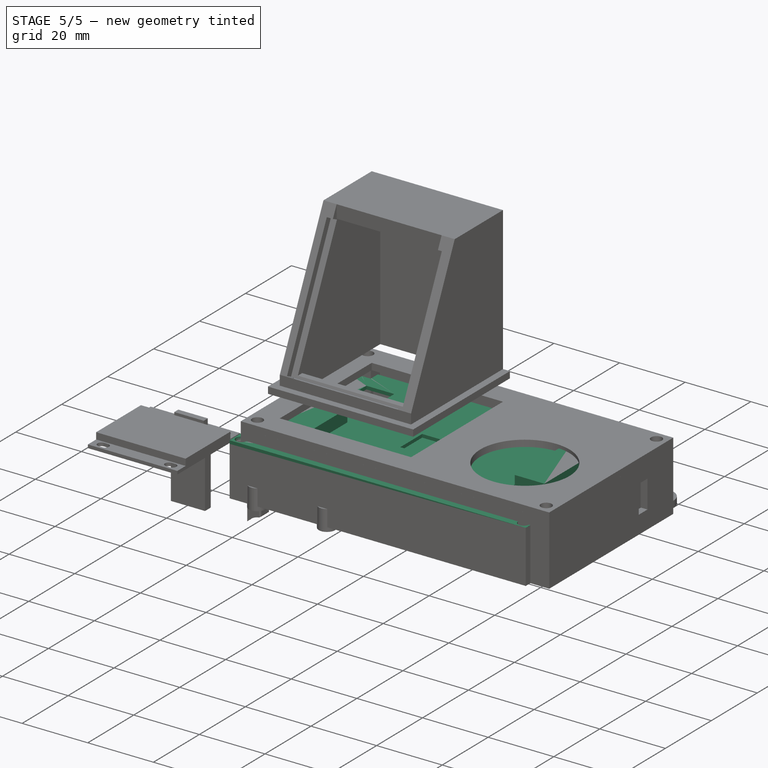
[diagram: stage 5 of 5 — iso view after this stage's code; geometry added in this stage tinted green]
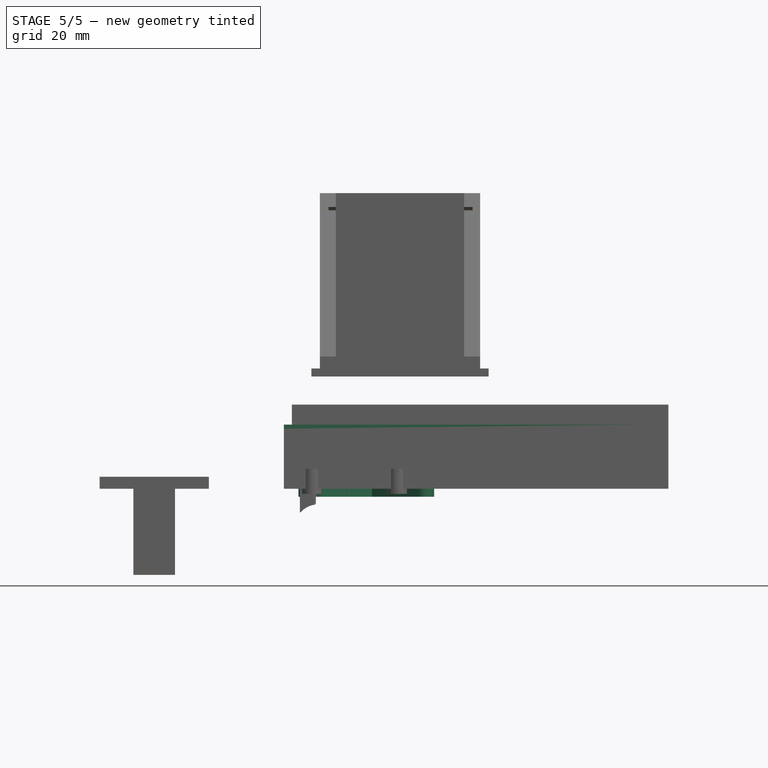
[diagram: stage 5 of 5 — front view after this stage's code; geometry added in this stage tinted green]
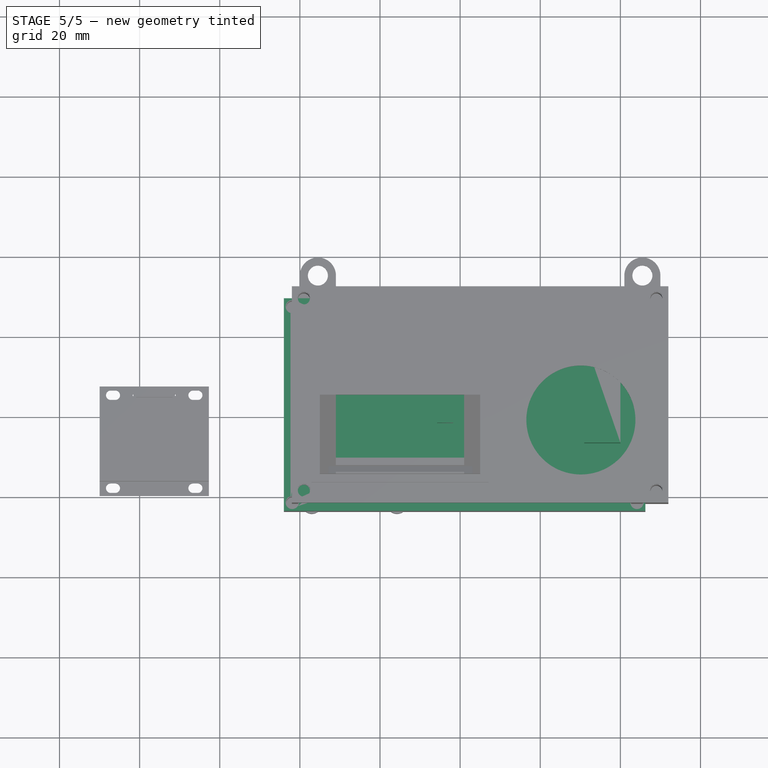
[diagram: stage 5 of 5 — top view after this stage's code; geometry added in this stage tinted green]
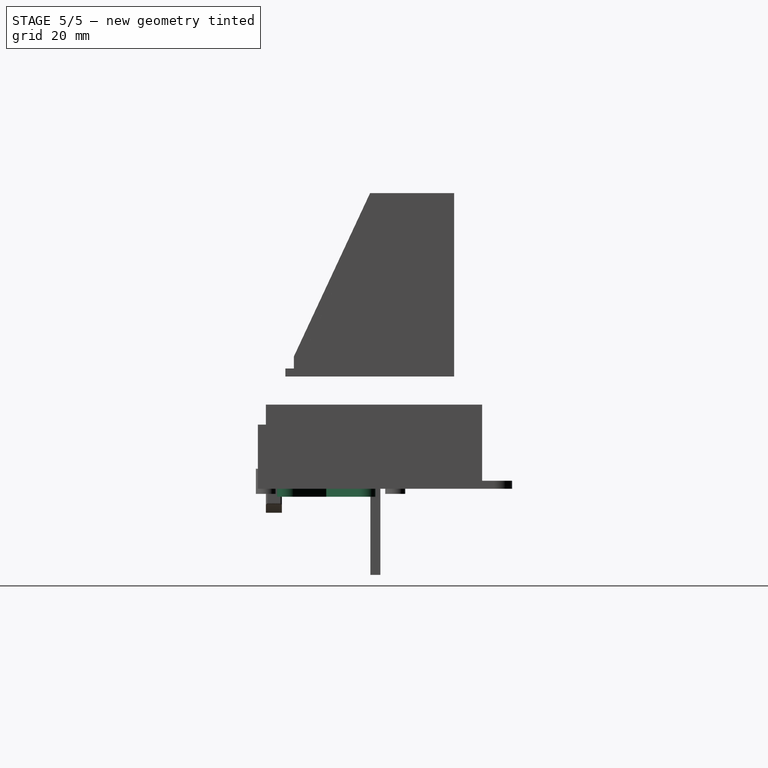
[diagram: stage 5 of 5 — right view after this stage's code; geometry added in this stage tinted green]
FEATURE [Sketcher::SketchObject] Sketch002  label="Sketch_ContolleBoard_base"
  FullyConstrained = true
  sketch-geometry (16):
    g0: LineSegment StartX=0 StartY=0 StartZ=0 EndX=82.25 EndY=0 EndZ=0
    g1: LineSegment StartX=82.25 StartY=0 StartZ=0 EndX=82.25 EndY=45.1 EndZ=0
    g2: LineSegment StartX=82.25 StartY=45.1 StartZ=0 EndX=0 EndY=45.1 EndZ=0
    g3: LineSegment StartX=0 StartY=45.1 StartZ=0 EndX=0 EndY=0 EndZ=0
    g4: Circle CenterX=3 CenterY=42.1 CenterZ=0 NormalX=0 NormalY=0 NormalZ=1 AngleXU=0 Radius=1.65
    g5: Circle CenterX=79.25 CenterY=42.1 CenterZ=0 NormalX=0 NormalY=0 NormalZ=1 AngleXU=0 Radius=1.65
    g6: Circle CenterX=3 CenterY=3 CenterZ=0 NormalX=0 NormalY=0 NormalZ=1 AngleXU=0 Radius=1.65
    g7: Circle CenterX=79.25 CenterY=3 CenterZ=0 NormalX=0 NormalY=0 NormalZ=1 AngleXU=0 Radius=1.65
    g8: LineSegment StartX=3 StartY=3 StartZ=0 EndX=3 EndY=0 EndZ=0
    g9: LineSegment StartX=3 StartY=45.1 StartZ=0 EndX=3 EndY=42.1 EndZ=0
    g10: LineSegment StartX=79.25 StartY=45.1 StartZ=0 EndX=79.25 EndY=42.1 EndZ=0
    g11: LineSegment StartX=79.25 StartY=3 StartZ=0 EndX=79.25 EndY=0 EndZ=0
    g12: LineSegment StartX=0 StartY=3 StartZ=0 EndX=3 EndY=3 EndZ=0
    g13: LineSegment StartX=0 StartY=42.1 StartZ=0 EndX=3 EndY=42.1 EndZ=0
    g14: LineSegment StartX=79.25 StartY=42.1 StartZ=0 EndX=82.25 EndY=42.1 EndZ=0
    g15: LineSegment StartX=79.25 StartY=3 StartZ=0 EndX=82.25 EndY=3 EndZ=0
  constraints (47):
    c: Coincident(g0,g1)
    c: Coincident(g1,g2)
    c: Coincident(g2,g3)
    c: Coincident(g3,g0)
    c: Horizontal(g0)
    c: Horizontal(g2)
    c: Vertical(g1)
    c: Vertical(g3)
    c: Coincident(g0,g-1)
    c: DistanceY(g3,g3) = 45.1
    c: DistanceX(g2,g2) = 82.25
    c: Diameter(g4) = 3.3
    c: Equal(g4,g5)
    c: Equal(g5,g7)
    c: Equal(g7,g6)
    c: Vertical(g8)
    c: Vertical(g9)
    c: Vertical(g10)
    c: Vertical(g11)
    c: Horizontal(g12)
    c: Horizontal(g13)
    c: Horizontal(g14)
    c: Horizontal(g15)
    c: DistanceY(g8,g8) = 3
    c: DistanceX(g12,g12) = 3
    c: Equal(g8,g9)
    c: Equal(g9,g10)
    c: Equal(g10,g11)
    c: Equal(g12,g13)
    c: Equal(g13,g14)
    c: Equal(g14,g15)
    c: Coincident(g12,g8)
    c: Coincident(g6,g8)
    c: PointOnObject(g8,g0)
    c: PointOnObject(g12,g3)
    c: Coincident(g9,g13)
    c: Coincident(g4,g9)
    c: PointOnObject(g13,g3)
    c: PointOnObject(g9,g2)
    c: Coincident(g14,g10)
    c: Coincident(g5,g10)
    c: PointOnObject(g10,g2)
    c: PointOnObject(g14,g1)
    c: Coincident(g11,g15)
    c: Coincident(g7,g11)
    c: PointOnObject(g15,g1)
    c: PointOnObject(g11,g0)
FEATURE [Sketcher::SketchObject] Sketch003  label="Sketch_ContolleBoard_bottom"
  ExternalGeometry = -> [Sketch002]
  FullyConstrained = true
  sketch-geometry (12):
    g0: LineSegment StartX=76.75 StartY=36.6 StartZ=0 EndX=76.75 EndY=17.05 EndZ=0
    g1: LineSegment StartX=82.25 StartY=36.6 StartZ=0 EndX=76.75 EndY=36.6 EndZ=0
    g2: LineSegment StartX=76.75 StartY=45.1 StartZ=0 EndX=76.75 EndY=36.6 EndZ=0
    g3: LineSegment StartX=76.75 StartY=17.05 StartZ=0 EndX=59.85 EndY=17.05 EndZ=0
    g4: LineSegment StartX=59.85 StartY=17.05 StartZ=0 EndX=59.85 EndY=6.1 EndZ=0
    g5: LineSegment StartX=59.85 StartY=6.1 StartZ=0 EndX=8.6 EndY=6.1 EndZ=0
    g6: LineSegment StartX=8.6 StartY=6.1 StartZ=0 EndX=8.6 EndY=39.3 EndZ=0
    g7: LineSegment StartX=8.6 StartY=39.3 StartZ=0 EndX=16.6 EndY=39.3 EndZ=0
    g8: LineSegment StartX=16.6 StartY=39.3 StartZ=0 EndX=16.6 EndY=36.6 EndZ=0
    g9: LineSegment StartX=16.6 StartY=36.6 StartZ=0 EndX=76.75 EndY=36.6 EndZ=0
    g10: LineSegment StartX=8.6 StartY=39.3 StartZ=0 EndX=0 EndY=39.3 EndZ=0
    g11: LineSegment StartX=8.6 StartY=39.3 StartZ=0 EndX=8.6 EndY=45.1 EndZ=0
  constraints (36):
    c: Vertical(g0)
    c: PointOnObject(g1,g-4)
    c: Coincident(g1,g0)
    c: Horizontal(g1)
    c: PointOnObject(g2,g-3)
    c: Vertical(g2)
    c: Coincident(g0,g2)
    c: DistanceX(g1,g1) = 5.5
    c: DistanceY(g2,g2) = 8.5
    c: DistanceY(g0,g0) = 19.55
    c: Horizontal(g3)
    c: Coincident(g4,g3)
    c: Vertical(g4)
    c: Coincident(g5,g4)
    c: Horizontal(g5)
    c: Coincident(g6,g5)
    c: Vertical(g6)
    c: Coincident(g7,g6)
    c: Horizontal(g7)
    c: Coincident(g8,g7)
    c: Vertical(g8)
    c: Horizontal(g9)
    c: Coincident(g8,g9)
    c: Coincident(g9,g0)
    c: DistanceY(g6,g6) = 33.2
    c: Coincident(g10,g6)
    c: PointOnObject(g10,g-2)
    c: Horizontal(g10)
    c: Coincident(g11,g6)
    c: PointOnObject(g11,g-3)
    c: Vertical(g11)
    c: DistanceY(g11,g11) = 5.8
    c: DistanceX(g10,g10) = 8.6
    c: DistanceX(g7,g7) = 8
    c: Coincident(g3,g0)
    c: DistanceX(g3,g3) = 16.9
FEATURE [Part::Extrusion] Extrude002  label="Extrude_ContolleBoard_bottom"
  Base = -> Sketch003
  Dir = (0,0,1)
  DirMode = 2
  FaceMakerClass = Part::FaceMakerBullseye
  LengthFwd = -2.15
  LengthRev = 0
  Solid = true
  Symmetric = false
  expr: LengthFwd = -2.15mm
FEATURE [Part::Extrusion] Extrude003  label="Extrude_ContolleBoard_base"
  Base = -> Sketch002
  Dir = (0,0,1)
  DirMode = 2
  FaceMakerClass = Part::FaceMakerBullseye
  LengthFwd = 1.6
  LengthRev = 0
  Solid = true
  Symmetric = false
FEATURE [Sketcher::SketchObject] Sketch004  label="Sketch_ContolleBoard_parts_left"
  ExternalGeometry = -> [Sketch002]
  FullyConstrained = true
  sketch-geometry (6):
    g0: LineSegment StartX=71.35 StartY=37.84 StartZ=0 EndX=78.35 EndY=37.84 EndZ=0
    g1: LineSegment StartX=78.35 StartY=37.84 StartZ=0 EndX=78.35 EndY=13.84 EndZ=0
    g2: LineSegment StartX=78.35 StartY=13.84 StartZ=0 EndX=71.35 EndY=13.84 EndZ=0
    g3: LineSegment StartX=71.35 StartY=13.84 StartZ=0 EndX=71.35 EndY=37.84 EndZ=0
    g4: LineSegment StartX=78.35 StartY=45.1 StartZ=0 EndX=78.35 EndY=37.84 EndZ=0
    g5: LineSegment StartX=82.25 StartY=37.84 StartZ=0 EndX=78.35 EndY=37.84 EndZ=0
  constraints (18):
    c: Coincident(g0,g1)
    c: Coincident(g1,g2)
    c: Coincident(g2,g3)
    c: Coincident(g3,g0)
    c: Horizontal(g0)
    c: Horizontal(g2)
    c: Vertical(g1)
    c: Vertical(g3)
    c: DistanceY(g1,g1) = 24
    c: DistanceX(g0,g0) = 7
    c: PointOnObject(g4,g-3)
    c: Vertical(g4)
    c: DistanceY(g4,g4) = 7.26
    c: PointOnObject(g5,g-4)
    c: Horizontal(g5)
    c: DistanceX(g5,g5) = 3.9
    c: Coincident(g5,g4)
    c: Coincident(g0,g4)
FEATURE [Sketcher::SketchObject] Sketch005  label="Sketch_ContolleBoard_parts_right"
  ExternalGeometry = -> [Sketch002]
  FullyConstrained = true
  sketch-geometry (6):
    g0: LineSegment StartX=6.27 StartY=40.7 StartZ=0 EndX=13.27 EndY=40.7 EndZ=0
    g1: LineSegment StartX=13.27 StartY=40.7 StartZ=0 EndX=13.27 EndY=3.2 EndZ=0
    g2: LineSegment StartX=13.27 StartY=3.2 StartZ=0 EndX=6.27 EndY=3.2 EndZ=0
    g3: LineSegment StartX=6.27 StartY=3.2 StartZ=0 EndX=6.27 EndY=40.7 EndZ=0
    g4: LineSegment StartX=6.27 StartY=45.1 StartZ=0 EndX=6.27 EndY=40.7 EndZ=0
    g5: LineSegment StartX=1e-16 StartY=40.7 StartZ=0 EndX=6.27 EndY=40.7 EndZ=0
  constraints (18):
    c: Coincident(g0,g1)
    c: Coincident(g1,g2)
    c: Coincident(g2,g3)
    c: Coincident(g3,g0)
    c: Horizontal(g0)
    c: Horizontal(g2)
    c: Vertical(g1)
    c: Vertical(g3)
    c: DistanceX(g0,g0) = 7
    c: DistanceY(g3,g3) = 37.5
    c: Vertical(g4)
    c: DistanceY(g4,g4) = 4.4
    c: Horizontal(g5)
    c: DistanceX(g5,g5) = 6.27
    c: PointOnObject(g5,g-2)
    c: Coincident(g4,g5)
    c: PointOnObject(g4,g-3)
    c: Coincident(g0,g4)
FEATURE [Part::Extrusion] Extrude004  label="Extrude_ContolleBoard_parts_left"
  Base = -> Sketch004
  Dir = (0,0,1)
  DirMode = 2
  FaceMakerClass = Part::FaceMakerBullseye
  LengthFwd = 8.5
  LengthRev = 0
  Placement = pos=(0,0,1.6) rot=(0,0,1;0rad)
  Solid = true
  Symmetric = false
FEATURE [Part::Extrusion] Extrude005  label="Extrude_ContolleBoard_parts_right"
  Base = -> Sketch005
  Dir = (0,0,1)
  DirMode = 2
  FaceMakerClass = Part::FaceMakerBullseye
  LengthFwd = 8.5
  LengthRev = 0
  Placement = pos=(0,0,1.6) rot=(0,0,1;0rad)
  Solid = true
  Symmetric = false
FEATURE [Sketcher::SketchObject] Sketch010  label="Sketch_8pin_JST_XH_Sleeve"
  FullyConstrained = true
  sketch-geometry (4):
    g0: LineSegment StartX=0 StartY=0 StartZ=0 EndX=26 EndY=0 EndZ=0
    g1: LineSegment StartX=26 StartY=0 StartZ=0 EndX=26 EndY=9 EndZ=0
    g2: LineSegment StartX=26 StartY=9 StartZ=0 EndX=0 EndY=9 EndZ=0
    g3: LineSegment StartX=0 StartY=9 StartZ=0 EndX=0 EndY=0 EndZ=0
  constraints (11):
    c: Coincident(g0,g1)
    c: Coincident(g1,g2)
    c: Coincident(g2,g3)
    c: Coincident(g3,g0)
    c: Horizontal(g0)
    c: Horizontal(g2)
    c: Vertical(g1)
    c: Vertical(g3)
    c: Coincident(g0,g-1)
    c: DistanceX(g2,g2) = 26
    c: DistanceY(g1,g1) = 9
FEATURE [Sketcher::SketchObject] Sketch011  label="Sketch_6pin_JST_XH"
  FullyConstrained = true
  sketch-geometry (4):
    g0: LineSegment StartX=0 StartY=0 StartZ=0 EndX=19 EndY=0 EndZ=0
    g1: LineSegment StartX=19 StartY=0 StartZ=0 EndX=19 EndY=7 EndZ=0
    g2: LineSegment StartX=19 StartY=7 StartZ=0 EndX=0 EndY=7 EndZ=0
    g3: LineSegment StartX=0 StartY=7 StartZ=0 EndX=0 EndY=0 EndZ=0
  constraints (11):
    c: Coincident(g0,g1)
    c: Coincident(g1,g2)
    c: Coincident(g2,g3)
    c: Coincident(g3,g0)
    c: Horizontal(g0)
    c: Horizontal(g2)
    c: Vertical(g1)
    c: Vertical(g3)
    c: DistanceY(g1,g1) = 7
    c: DistanceX(g2,g2) = 19
    c: Coincident(g0,g-1)
FEATURE [Part::Extrusion] Extrude010  label="Extrude_8pin_JST_XH_Sleeve"
  Base = -> Sketch010
  Dir = (0,0,1)
  DirMode = 2
  FaceMakerClass = Part::FaceMakerBullseye
  LengthFwd = 10
  LengthRev = 0
  Placement = pos=(80,13,10) rot=(0,0,1;1.5708rad)
  Solid = true
  Symmetric = false
FEATURE [Part::Extrusion] Extrude011  label="Extrude_6pin_JST_XH"
  Base = -> Sketch011
  Dir = (0,0,1)
  DirMode = 2
  FaceMakerClass = Part::FaceMakerBullseye
  LengthFwd = 10
  LengthRev = 0
  Placement = pos=(13,4,9) rot=(0,0,1;1.5708rad)
  Solid = true
  Symmetric = false
FEATURE [Sketcher::SketchObject] Sketch019  label="Sketch_MainBoardCase_holes"
  ExternalGeometry = -> [Sketch002]
  FullyConstrained = true
  expr: Constraints[0] = <<Dim>>.M3HoleDia
  sketch-geometry (4):
    g0: Circle CenterX=3 CenterY=42.1 CenterZ=0 NormalX=0 NormalY=0 NormalZ=1 AngleXU=0 Radius=1.5
    g1: Circle CenterX=3 CenterY=3 CenterZ=0 NormalX=0 NormalY=0 NormalZ=1 AngleXU=0 Radius=1.5
    g2: Circle CenterX=79.25 CenterY=42.1 CenterZ=0 NormalX=0 NormalY=0 NormalZ=1 AngleXU=0 Radius=1.5
    g3: Circle CenterX=79.25 CenterY=3 CenterZ=0 NormalX=0 NormalY=0 NormalZ=1 AngleXU=0 Radius=1.5
  constraints (8):
    c: Diameter(g0) = 3
    c: Equal(g0,g1)
    c: Equal(g1,g2)
    c: Equal(g2,g3)
    c: Coincident(g0,g-3)
    c: Coincident(g1,g-6)
    c: Coincident(g3,g-5)
    c: Coincident(g2,g-4)
FEATURE [Sketcher::SketchObject] Sketch020  label="Sketch_MainBoardCase_stands"
  ExternalGeometry = -> [Sketch019]
  FullyConstrained = true
  sketch-geometry (4):
    g0: Circle CenterX=3 CenterY=42.1 CenterZ=0 NormalX=0 NormalY=0 NormalZ=1 AngleXU=0 Radius=2.5
    g1: Circle CenterX=79.25 CenterY=3 CenterZ=0 NormalX=0 NormalY=0 NormalZ=1 AngleXU=0 Radius=2.5
    g2: Circle CenterX=79.25 CenterY=42.1 CenterZ=0 NormalX=0 NormalY=0 NormalZ=1 AngleXU=0 Radius=2.5
    g3: Circle CenterX=3 CenterY=3 CenterZ=0 NormalX=0 NormalY=0 NormalZ=1 AngleXU=0 Radius=2.5
  constraints (8):
    c: Coincident(g0,g-3)
    c: Coincident(g1,g-4)
    c: Coincident(g2,g-5)
    c: Coincident(g3,g-6)
    c: Diameter(g0) = 5
    c: Equal(g0,g3)
    c: Equal(g3,g1)
    c: Equal(g1,g2)
FEATURE [Sketcher::SketchObject] Sketch021  label="Sketch_MainBoardCase_Wall"
  ExternalGeometry = -> [Sketch002]
  FullyConstrained = true
  sketch-geometry (28):
    g0: LineSegment StartX=86.25 StartY=-4 StartZ=0 EndX=-4 EndY=-4 EndZ=0
    g1: LineSegment StartX=-4 StartY=-4 StartZ=0 EndX=-4 EndY=49.1 EndZ=0
    g2: LineSegment StartX=-4 StartY=49.1 StartZ=0 EndX=86.25 EndY=49.1 EndZ=0
    g3: LineSegment StartX=86.25 StartY=49.1 StartZ=0 EndX=86.25 EndY=-4 EndZ=0
    g4: LineSegment StartX=84.25 StartY=47.1 StartZ=0 EndX=84.25 EndY=49.1 EndZ=0
    g5: LineSegment StartX=84.25 StartY=47.1 StartZ=0 EndX=86.25 EndY=47.1 EndZ=0
    g6: LineSegment StartX=84.25 StartY=-2 StartZ=0 EndX=84.25 EndY=-4 EndZ=0
    g7: LineSegment StartX=-2 StartY=47.1 StartZ=0 EndX=-4 EndY=47.1 EndZ=0
    g8: LineSegment StartX=82.25 StartY=45.1 StartZ=0 EndX=82.25 EndY=47.1 EndZ=0
    g9: LineSegment StartX=82.25 StartY=45.1 StartZ=0 EndX=84.25 EndY=45.1 EndZ=0
    g10: LineSegment StartX=82.25 StartY=0 StartZ=0 EndX=82.25 EndY=-2 EndZ=0
    g11: LineSegment StartX=0 StartY=0 StartZ=0 EndX=-2 EndY=0 EndZ=0
    g12: LineSegment StartX=-2 StartY=47.1 StartZ=0 EndX=1 EndY=47.1 EndZ=0
    g13: LineSegment StartX=-2 StartY=44.1 StartZ=0 EndX=-2 EndY=47.1 EndZ=0
    g14: LineSegment StartX=1 StartY=47.1 StartZ=0 EndX=81.25 EndY=47.1 EndZ=0
    g15: LineSegment StartX=81.25 StartY=47.1 StartZ=0 EndX=84.25 EndY=47.1 EndZ=0
    g16: LineSegment StartX=84.25 StartY=47.1 StartZ=0 EndX=84.25 EndY=44.1 EndZ=0
    g17: LineSegment StartX=84.25 StartY=-2 StartZ=0 EndX=81.25 EndY=-2 EndZ=0
    g18: LineSegment StartX=84.25 StartY=44.1 StartZ=0 EndX=84.25 EndY=1 EndZ=0
    g19: LineSegment StartX=84.25 StartY=1 StartZ=0 EndX=84.25 EndY=-2 EndZ=0
    g20: LineSegment StartX=81.25 StartY=-2 StartZ=0 EndX=1 EndY=-2 EndZ=0
    g21: LineSegment StartX=1 StartY=-2 StartZ=0 EndX=-2 EndY=-2 EndZ=0
    g22: LineSegment StartX=-2 StartY=-2 StartZ=0 EndX=-2 EndY=1 EndZ=0
    g23: LineSegment StartX=-2 StartY=1 StartZ=0 EndX=-2 EndY=44.1 EndZ=0
    g24: LineSegment StartX=-2 StartY=1 StartZ=0 EndX=1 EndY=-2 EndZ=0
    g25: LineSegment StartX=-2 StartY=44.1 StartZ=0 EndX=1 EndY=47.1 EndZ=0
    g26: LineSegment StartX=81.25 StartY=47.1 StartZ=0 EndX=84.25 EndY=44.1 EndZ=0
    g27: LineSegment StartX=81.25 StartY=-2 StartZ=0 EndX=84.25 EndY=1 EndZ=0
  constraints (80):
    c: Coincident(g15,g16)
    c: Coincident(g19,g17)
    c: Coincident(g21,g22)
    c: Coincident(g13,g12)
    c: Coincident(g0,g1)
    c: Coincident(g1,g2)
    c: Coincident(g2,g3)
    c: Coincident(g3,g0)
    c: Horizontal(g0)
    c: Horizontal(g2)
    c: Vertical(g1)
    c: Vertical(g3)
    c: Coincident(g4,g15)
    c: PointOnObject(g4,g2)
    c: Vertical(g4)
    c: Coincident(g5,g15)
    c: PointOnObject(g5,g3)
    c: Horizontal(g5)
    c: DistanceY(g4,g4) = 2
    c: DistanceX(g5,g5) = 2
    c: Coincident(g6,g19)
    c: PointOnObject(g6,g0)
    c: Vertical(g6)
    c: DistanceY(g6,g6) = 2
    c: Coincident(g7,g12)
    c: PointOnObject(g7,g1)
    c: Horizontal(g7)
    c: DistanceX(g7,g7) = 2
    c: Coincident(g8,g-4)
    c: Vertical(g8)
    c: Coincident(g9,g8)
    c: Horizontal(g9)
    c: DistanceX(g9,g9) = 2
    c: DistanceY(g8,g8) = 2
    c: Coincident(g10,g-4)
    c: Vertical(g10)
    c: DistanceY(g10,g10) = 2
    c: Coincident(g11,g-1)
    c: Horizontal(g11)
    c: DistanceX(g11,g11) = 2
    c: Coincident(g12,g14)
    c: Horizontal(g12)
    c: Coincident(g23,g13)
    c: Vertical(g13)
    c: Coincident(g14,g15)
    c: Horizontal(g14)
    c: Horizontal(g15)
    c: PointOnObject(g8,g15)
    c: Coincident(g16,g18)
    c: Vertical(g16)
    c: PointOnObject(g9,g16)
    c: Coincident(g17,g20)
    c: Horizontal(g17)
    c: PointOnObject(g10,g17)
    c: Coincident(g18,g19)
    c: Vertical(g18)
    c: Vertical(g19)
    c: Coincident(g20,g21)
    c: Horizontal(g20)
    c: Horizontal(g21)
    c: Coincident(g22,g23)
    c: Vertical(g22)
    c: Vertical(g23)
    c: PointOnObject(g11,g22)
    c: DistanceX(g21,g21) = 3
    c: DistanceY(g22,g22) = 3
    c: Coincident(g24,g23)
    c: Coincident(g24,g20)
    c: DistanceX(g12,g12) = 3
    c: DistanceY(g13,g13) = 3
    c: Coincident(g25,g23)
    c: Coincident(g25,g14)
    c: DistanceX(g15,g15) = 3
    c: DistanceY(g16,g16) = 3
    c: Coincident(g26,g14)
    c: Coincident(g26,g18)
    c: DistanceY(g19,g19) = 3
    c: DistanceX(g17,g17) = 3
    c: Coincident(g27,g20)
    c: Coincident(g27,g18)
FEATURE [Sketcher::SketchObject] Sketch022  label="Sketch_MainBoardCase_Bottom"
  ExternalGeometry = -> [Sketch021]
  FullyConstrained = true
  sketch-geometry (4):
    g0: LineSegment StartX=-4 StartY=49.1 StartZ=0 EndX=86.25 EndY=49.1 EndZ=0
    g1: LineSegment StartX=86.25 StartY=49.1 StartZ=0 EndX=86.25 EndY=-4 EndZ=0
    g2: LineSegment StartX=86.25 StartY=-4 StartZ=0 EndX=-4 EndY=-4 EndZ=0
    g3: LineSegment StartX=-4 StartY=-4 StartZ=0 EndX=-4 EndY=49.1 EndZ=0
  constraints (10):
    c: Coincident(g0,g1)
    c: Coincident(g1,g2)
    c: Coincident(g2,g3)
    c: Coincident(g3,g0)
    c: Horizontal(g0)
    c: Horizontal(g2)
    c: Vertical(g1)
    c: Vertical(g3)
    c: Coincident(g0,g-4)
    c: Coincident(g1,g-6)
FEATURE [Part::Extrusion] Extrude019  label="Extrude_MainBoardCase_Bottom"
  Base = -> Sketch022
  Dir = (0,0,1)
  DirMode = 2
  FaceMakerClass = Part::FaceMakerBullseye
  LengthFwd = 1
  LengthRev = 0
  Solid = true
  Symmetric = false
FEATURE [Part::Cut] Cut  label="Cut__MainBoardCase_standsWithHoles"
  Base = -> Extrude020
  Tool = -> Extrude022
FEATURE [Sketcher::SketchObject] Sketch036  label="Sketch_JoyBaseTest"
  ExternalGeometry = -> [Sketch015]
  FullyConstrained = true
  sketch-geometry (16):
    g0: ArcOfCircle CenterX=5 CenterY=22.88 CenterZ=0 NormalX=0 NormalY=0 NormalZ=1 AngleXU=0 Radius=2.5 StartAngle=0.925759 EndAngle=4.06735
    g1: ArcOfCircle CenterX=31.01 CenterY=3.31 CenterZ=0 NormalX=0 NormalY=0 NormalZ=1 AngleXU=0 Radius=2.5 StartAngle=4.06735 EndAngle=7.20894
    g2: ArcOfCircle CenterX=4.99 CenterY=3.31 CenterZ=0 NormalX=0 NormalY=0 NormalZ=1 AngleXU=0 Radius=2.5 StartAngle=2.21565 EndAngle=5.35724
    g3: ArcOfCircle CenterX=31.01 CenterY=22.88 CenterZ=0 NormalX=0 NormalY=0 NormalZ=1 AngleXU=0 Radius=2.5 StartAngle=5.35724 EndAngle=8.49883
    g4: LineSegment StartX=18.0028 StartY=16.2253 StartZ=0 EndX=6.50307 EndY=24.8777 EndZ=0
    g5: LineSegment StartX=29.5073 StartY=24.878 StartZ=0 EndX=18.0028 EndY=16.2253 EndZ=0
    g6: LineSegment StartX=22.1612 StartY=13.0965 StartZ=0 EndX=32.5127 EndY=20.882 EndZ=0
    g7: LineSegment StartX=32.5131 StartY=5.30769 StartZ=0 EndX=22.1612 EndY=13.0965 EndZ=0
    g8: LineSegment StartX=22.1612 StartY=13.0965 StartZ=0 EndX=18.0028 EndY=16.2253 EndZ=0
    g9: LineSegment StartX=18.0022 StartY=9.96849 StartZ=0 EndX=29.5069 EndY=1.31231 EndZ=0
    g10: LineSegment StartX=6.4927 StartY=1.31203 StartZ=0 EndX=18.0022 EndY=9.96849 EndZ=0
    g11: LineSegment StartX=18.0022 StartY=9.96849 StartZ=0 EndX=22.1612 EndY=13.0965 EndZ=0
    g12: LineSegment StartX=18.0028 StartY=16.2253 StartZ=0 EndX=13.8438 EndY=13.0973 EndZ=0
    g13: LineSegment StartX=13.8438 StartY=13.0973 StartZ=0 EndX=3.4873 EndY=5.30797 EndZ=0
    g14: LineSegment StartX=3.49693 StartY=20.8823 StartZ=0 EndX=13.8438 EndY=13.0973 EndZ=0
    g15: LineSegment StartX=13.8438 StartY=13.0973 StartZ=0 EndX=18.0022 EndY=9.96849 EndZ=0
  constraints (36):
    c: Tangent(g0,g14) = -1.5708
    c: Tangent(g9,g1) = -1.5708
    c: Tangent(g1,g7) = -1.5708
    c: Tangent(g4,g0) = -1.5708
    c: Equal(g0,g1)
    c: Coincident(g0,g-3)
    c: Coincident(g1,g-6)
    c: Distance(g0,g0) = 5
    c: Tangent(g2,g10) = -1.5708
    c: Tangent(g6,g3) = -1.5708
    c: Tangent(g3,g5) = -1.5708
    c: Tangent(g13,g2) = -1.5708
    c: Equal(g2,g3)
    c: Coincident(g2,g-5)
    c: Coincident(g3,g-4)
    c: Distance(g2,g2) = 5
    c: Coincident(g8,g4)
    c: Coincident(g5,g12)
    c: Coincident(g11,g6)
    c: Coincident(g7,g8)
    c: Coincident(g15,g9)
    c: Coincident(g10,g11)
    c: Coincident(g12,g13)
    c: Coincident(g14,g15)
    c: Parallel(g13,g10)
    c: Parallel(g5,g6)
    c: Parallel(g9,g7)
    c: Parallel(g14,g4)
    c: Coincident(g4,g5)
    c: Parallel(g12,g10)
    c: Parallel(g15,g7)
    c: Parallel(g8,g9)
    c: Parallel(g11,g13)
    c: Coincident(g6,g7)
    c: Coincident(g10,g9)
    c: Coincident(g13,g14)
FEATURE [App::Link] Link004  label="Cut_MainBoardCase_JoyStick_StandWitHole001"
  LinkedObject = -> Cut001
FEATURE [App::Link] Link005  label="Cut_MicroUSBBreakout_stand001"
  LinkedObject = -> Cut004
FEATURE [Part::Extrusion] Extrude036  label="Extrude_JoyBaseTest"
  Base = -> Sketch036
  Dir = (0,0,1)
  DirMode = 2
  FaceMakerClass = Part::FaceMakerBullseye
  LengthFwd = -2
  LengthRev = 0
  Solid = true
  Symmetric = false
FEATURE [Part::MultiFuse] Fusion009  label="Fusion_JoyBaseTest"
  Shapes = -> [Extrude036,Link004]
FEATURE [Sketcher::SketchObject] Sketch037  label="Sketch_MicroUSBBreakoutBaseTest"
  ExternalGeometry = -> [Sketch]
  FullyConstrained = true
  sketch-geometry (4):
    g0: ArcOfCircle CenterX=2.15 CenterY=7.435 CenterZ=0 NormalX=0 NormalY=0 NormalZ=1 AngleXU=0 Radius=2.5 StartAngle=1.5708 EndAngle=4.71239
    g1: ArcOfCircle CenterX=10.81 CenterY=7.435 CenterZ=0 NormalX=0 NormalY=0 NormalZ=1 AngleXU=0 Radius=2.5 StartAngle=4.71239 EndAngle=7.85398
    g2: LineSegment StartX=2.15 StartY=4.935 StartZ=0 EndX=10.81 EndY=4.935 EndZ=0
    g3: LineSegment StartX=10.81 StartY=9.935 StartZ=0 EndX=2.15 EndY=9.935 EndZ=0
  constraints (8):
    c: Tangent(g0,g2) = -1.5708
    c: Tangent(g2,g1) = -1.5708
    c: Tangent(g1,g3) = -1.5708
    c: Tangent(g3,g0) = -1.5708
    c: Equal(g0,g1)
    c: Coincident(g0,g-3)
    c: Coincident(g1,g-4)
    c: Distance(g0,g0) = 5
FEATURE [Part::Extrusion] Extrude037  label="Extrude_MicroUSBBreakoutBaseTest"
  Base = -> Sketch037
  Dir = (0,0,1)
  DirMode = 2
  FaceMakerClass = Part::FaceMakerBullseye
  LengthFwd = -2
  LengthRev = 0
  Solid = true
  Symmetric = false
FEATURE [Part::MultiFuse] Fusion010  label="Fusion_MicroUSBBreakoutBaseTest"
  Shapes = -> [Extrude037,Link005]
FEATURE [Sketcher::SketchObject] Sketch048  label="Sketch_ContolleBoard_headers"
  ExternalGeometry = -> [Sketch002]
  FullyConstrained = true
  sketch-geometry (12):
    g0: LineSegment StartX=43.25 StartY=38.6 StartZ=0 EndX=52.25 EndY=38.6 EndZ=0
    g1: LineSegment StartX=52.25 StartY=38.6 StartZ=0 EndX=52.25 EndY=34.6 EndZ=0
    g2: LineSegment StartX=52.25 StartY=34.6 StartZ=0 EndX=43.25 EndY=34.6 EndZ=0
    g3: LineSegment StartX=43.25 StartY=34.6 StartZ=0 EndX=43.25 EndY=38.6 EndZ=0
    g4: LineSegment StartX=34.25 StartY=25.6 StartZ=0 EndX=38.25 EndY=25.6 EndZ=0
    g5: LineSegment StartX=38.25 StartY=25.6 StartZ=0 EndX=38.25 EndY=18.1 EndZ=0
    g6: LineSegment StartX=38.25 StartY=18.1 StartZ=0 EndX=34.25 EndY=18.1 EndZ=0
    g7: LineSegment StartX=34.25 StartY=18.1 StartZ=0 EndX=34.25 EndY=25.6 EndZ=0
    g8: LineSegment StartX=52.25 StartY=38.6 StartZ=0 EndX=52.25 EndY=45.1 EndZ=0
    g9: LineSegment StartX=52.25 StartY=38.6 StartZ=0 EndX=82.25 EndY=38.6 EndZ=0
    g10: LineSegment StartX=38.25 StartY=25.6 StartZ=0 EndX=38.25 EndY=45.1 EndZ=0
    g11: LineSegment StartX=38.25 StartY=25.6 StartZ=0 EndX=82.25 EndY=25.6 EndZ=0
  constraints (36):
    c: Coincident(g0,g1)
    c: Coincident(g1,g2)
    c: Coincident(g2,g3)
    c: Coincident(g3,g0)
    c: Horizontal(g0)
    c: Horizontal(g2)
    c: Vertical(g1)
    c: Vertical(g3)
    c: DistanceX(g0,g0) = 9
    c: Distance(g1) = 4
    c: Coincident(g4,g5)
    c: Coincident(g5,g6)
    c: Coincident(g6,g7)
    c: Coincident(g7,g4)
    c: Horizontal(g4)
    c: Horizontal(g6)
    c: Vertical(g5)
    c: Vertical(g7)
    c: DistanceY(g5,g5) = 7.5
    c: DistanceX(g4,g4) = 4
    c: Coincident(g8,g0)
    c: Vertical(g8)
    c: DistanceY(g8,g8) = 6.5
    c: PointOnObject(g8,g-3)
    c: Coincident(g9,g0)
    c: PointOnObject(g9,g-4)
    c: Horizontal(g9)
    c: DistanceX(g9,g9) = 30
    c: Coincident(g10,g4)
    c: PointOnObject(g10,g-3)
    c: Vertical(g10)
    c: Coincident(g11,g4)
    c: PointOnObject(g11,g-4)
    c: Horizontal(g11)
    c: DistanceY(g10,g10) = 19.5
    c: DistanceX(g11,g11) = 44
FEATURE [Sketcher::SketchObject] Sketch023  label="Sketch_MainBoardCase_Top"
  ExternalGeometry = -> [Sketch021,Sketch005,Sketch004,Sketch002,Sketch048]
  FullyConstrained = true
  sketch-geometry (48):
    g0: LineSegment StartX=14.02 StartY=41.95 StartZ=0 EndX=5.52 EndY=41.95 EndZ=0
    g1: LineSegment StartX=5.52 StartY=41.95 StartZ=0 EndX=5.52 EndY=1.95 EndZ=0
    g2: LineSegment StartX=5.52 StartY=1.95 StartZ=0 EndX=14.02 EndY=1.95 EndZ=0
    g3: LineSegment StartX=14.02 StartY=1.95 StartZ=0 EndX=14.02 EndY=41.95 EndZ=0
    g4: LineSegment StartX=69.35 StartY=39.59 StartZ=0 EndX=80.35 EndY=39.59 EndZ=0
    g5: LineSegment StartX=80.35 StartY=39.59 StartZ=0 EndX=80.35 EndY=12.09 EndZ=0
    g6: LineSegment StartX=80.35 StartY=12.09 StartZ=0 EndX=69.35 EndY=12.09 EndZ=0
    g7: LineSegment StartX=69.35 StartY=12.09 StartZ=0 EndX=69.35 EndY=39.59 EndZ=0
    g8: LineSegment StartX=78.35 StartY=37.84 StartZ=0 EndX=78.35 EndY=39.59 EndZ=0
    g9: LineSegment StartX=78.35 StartY=13.84 StartZ=0 EndX=78.35 EndY=12.09 EndZ=0
    g10: LineSegment StartX=78.35 StartY=37.84 StartZ=0 EndX=80.35 EndY=37.84 EndZ=0
    g11: LineSegment StartX=71.35 StartY=37.84 StartZ=0 EndX=69.35 EndY=37.84 EndZ=0
    g12: LineSegment StartX=13.27 StartY=40.7 StartZ=0 EndX=14.02 EndY=40.7 EndZ=0
    g13: LineSegment StartX=6.27 StartY=40.7 StartZ=0 EndX=5.52 EndY=40.7 EndZ=0
    g14: LineSegment StartX=6.27 StartY=40.7 StartZ=0 EndX=6.27 EndY=41.95 EndZ=0
    g15: LineSegment StartX=13.27 StartY=3.2 StartZ=0 EndX=13.27 EndY=1.95 EndZ=0
    g16: Circle CenterX=-1.9 CenterY=47 CenterZ=0 NormalX=0 NormalY=0 NormalZ=1 AngleXU=0 Radius=1.65
    g17: Circle CenterX=-1.9 CenterY=-1.9 CenterZ=0 NormalX=0 NormalY=0 NormalZ=1 AngleXU=0 Radius=1.65
    g18: Circle CenterX=84.15 CenterY=-1.9 CenterZ=0 NormalX=0 NormalY=0 NormalZ=1 AngleXU=0 Radius=1.65
    g19: Circle CenterX=84.15 CenterY=47 CenterZ=0 NormalX=0 NormalY=0 NormalZ=1 AngleXU=0 Radius=1.65
    g20: LineSegment StartX=-1.9 StartY=49.1 StartZ=0 EndX=-1.9 EndY=47 EndZ=0
    g21: LineSegment StartX=-1.9 StartY=47 StartZ=0 EndX=-4 EndY=47 EndZ=0
    g22: LineSegment StartX=84.15 StartY=49.1 StartZ=0 EndX=84.15 EndY=47 EndZ=0
    g23: LineSegment StartX=84.15 StartY=47 StartZ=0 EndX=86.25 EndY=47 EndZ=0
    g24: LineSegment StartX=-1.9 StartY=-4 StartZ=0 EndX=-1.9 EndY=-1.9 EndZ=0
    g25: LineSegment StartX=-1.9 StartY=-1.9 StartZ=0 EndX=-4 EndY=-1.9 EndZ=0
    g26: LineSegment StartX=84.15 StartY=-4 StartZ=0 EndX=84.15 EndY=-1.9 EndZ=0
    g27: LineSegment StartX=84.15 StartY=-1.9 StartZ=0 EndX=86.25 EndY=-1.9 EndZ=0
    g28: LineSegment StartX=-4 StartY=-4 StartZ=0 EndX=86.25 EndY=-4 EndZ=0
    g29: LineSegment StartX=86.25 StartY=-4 StartZ=0 EndX=86.25 EndY=49.1 EndZ=0
    g30: LineSegment StartX=86.25 StartY=49.1 StartZ=0 EndX=-4 EndY=49.1 EndZ=0
    g31: LineSegment StartX=-4 StartY=49.1 StartZ=0 EndX=-4 EndY=-4 EndZ=0
    g32: LineSegment StartX=33.25 StartY=26.6 StartZ=0 EndX=39.25 EndY=26.6 EndZ=0
    g33: LineSegment StartX=39.25 StartY=26.6 StartZ=0 EndX=39.25 EndY=17.1 EndZ=0
    g34: LineSegment StartX=39.25 StartY=17.1 StartZ=0 EndX=33.25 EndY=17.1 EndZ=0
    g35: LineSegment StartX=33.25 StartY=17.1 StartZ=0 EndX=33.25 EndY=26.6 EndZ=0
    g36: LineSegment StartX=42.25 StartY=39.6 StartZ=0 EndX=53.25 EndY=39.6 EndZ=0
    g37: LineSegment StartX=53.25 StartY=39.6 StartZ=0 EndX=53.25 EndY=33.6 EndZ=0
    g38: LineSegment StartX=53.25 StartY=33.6 StartZ=0 EndX=42.25 EndY=33.6 EndZ=0
    g39: LineSegment StartX=42.25 StartY=33.6 StartZ=0 EndX=42.25 EndY=39.6 EndZ=0
    g40: LineSegment StartX=52.25 StartY=38.6 StartZ=0 EndX=53.25 EndY=38.6 EndZ=0
    g41: LineSegment StartX=52.25 StartY=38.6 StartZ=0 EndX=52.25 EndY=39.6 EndZ=0
    g42: LineSegment StartX=43.25 StartY=34.6 StartZ=0 EndX=43.25 EndY=33.6 EndZ=0
    g43: LineSegment StartX=43.25 StartY=34.6 StartZ=0 EndX=42.25 EndY=34.6 EndZ=0
    g44: LineSegment StartX=38.25 StartY=25.6 StartZ=0 EndX=38.25 EndY=26.6 EndZ=0
    g45: LineSegment StartX=38.25 StartY=25.6 StartZ=0 EndX=39.25 EndY=25.6 EndZ=0
    g46: LineSegment StartX=34.25 StartY=18.1 StartZ=0 EndX=34.25 EndY=17.1 EndZ=0
    g47: LineSegment StartX=34.25 StartY=18.1 StartZ=0 EndX=33.25 EndY=18.1 EndZ=0
  constraints (142):
    c: Coincident(g0,g1)
    c: Coincident(g1,g2)
    c: Coincident(g2,g3)
    c: Coincident(g3,g0)
    c: Horizontal(g0)
    c: Horizontal(g2)
    c: Vertical(g1)
    c: Vertical(g3)
    c: Coincident(g4,g5)
    c: Coincident(g5,g6)
    c: Coincident(g6,g7)
    c: Coincident(g7,g4)
    c: Horizontal(g4)
    c: Horizontal(g6)
    c: Vertical(g5)
    c: Vertical(g7)
    c: DistanceX(g4,g4) = 11
    c: DistanceY(g7,g7) = 27.5
    c: Coincident(g8,g-10)
    c: PointOnObject(g8,g4)
    c: Vertical(g8)
    c: Coincident(g9,g-10)
    c: PointOnObject(g9,g6)
    c: Vertical(g9)
    c: Equal(g9,g8)
    c: Coincident(g10,g8)
    c: PointOnObject(g10,g5)
    c: Horizontal(g10)
    c: Coincident(g11,g-9)
    c: PointOnObject(g11,g7)
    c: Horizontal(g11)
    c: Equal(g11,g10)
    c: DistanceX(g0,g0) = 8.5
    c: DistanceY(g3,g3) = 40
    c: Coincident(g12,g-7)
    c: PointOnObject(g12,g3)
    c: Horizontal(g12)
    c: Coincident(g13,g-8)
    c: PointOnObject(g13,g1)
    c: Horizontal(g13)
    c: Coincident(g14,g13)
    c: PointOnObject(g14,g0)
    c: Vertical(g14)
    c: Coincident(g15,g-7)
    c: PointOnObject(g15,g2)
    c: Vertical(g15)
    c: Equal(g15,g14)
    c: Equal(g13,g12)
    c: Diameter(g16) = 3.3
    c: Equal(g16,g17)
    c: Equal(g17,g18)
    c: Equal(g18,g19)
    c: Vertical(g20)
    c: Coincident(g21,g20)
    c: Horizontal(g21)
    c: Vertical(g22)
    c: Horizontal(g23)
    c: Vertical(g24)
    c: Coincident(g25,g24)
    c: Horizontal(g25)
    c: Vertical(g26)
    c: Coincident(g27,g26)
    c: Horizontal(g27)
    c: Coincident(g20,g16)
    c: PointOnObject(g21,g-11)
    c: PointOnObject(g20,g-12)
    c: DistanceX(g21,g21) = 2.1
    c: DistanceY(g20,g20) = 2.1
    c: Equal(g21,g25)
    c: Equal(g25,g27)
    c: Equal(g27,g23)
    c: Coincident(g23,g22)
    c: Equal(g20,g24)
    c: Equal(g24,g26)
    c: Equal(g26,g22)
    c: Coincident(g19,g22)
    c: PointOnObject(g22,g-12)
    c: PointOnObject(g23,g-13)
    c: Coincident(g18,g26)
    c: PointOnObject(g27,g-13)
    c: PointOnObject(g26,g-14)
    c: Coincident(g24,g17)
    c: PointOnObject(g24,g-14)
    c: PointOnObject(g25,g-11)
    c: Coincident(g28,g29)
    c: Coincident(g29,g30)
    c: Coincident(g30,g31)
    c: Coincident(g31,g28)
    c: Horizontal(g28)
    c: Horizontal(g30)
    c: Vertical(g29)
    c: Vertical(g31)
    c: Coincident(g28,g-14)
    c: Coincident(g29,g-13)
    c: Coincident(g32,g33)
    c: Coincident(g33,g34)
    c: Coincident(g34,g35)
    c: Coincident(g35,g32)
    c: Horizontal(g32)
    c: Horizontal(g34)
    c: Vertical(g33)
    c: Vertical(g35)
    c: Coincident(g36,g37)
    c: Coincident(g37,g38)
    c: Coincident(g38,g39)
    c: Coincident(g39,g36)
    c: Horizontal(g36)
    c: Horizontal(g38)
    c: Vertical(g37)
    c: Vertical(g39)
    c: Coincident(g40,g-21)
    c: PointOnObject(g40,g37)
    c: Horizontal(g40)
    c: Coincident(g41,g40)
    c: PointOnObject(g41,g36)
    c: Vertical(g41)
    c: Coincident(g42,g-23)
    c: PointOnObject(g42,g38)
    c: Vertical(g42)
    c: Coincident(g43,g42)
    c: PointOnObject(g43,g39)
    c: Horizontal(g43)
    c: Distance(g40,g41) = 1
    c: Equal(g41,g40)
    c: Equal(g40,g42)
    c: Equal(g42,g43)
    c: Coincident(g44,g-26)
    c: PointOnObject(g44,g32)
    c: Vertical(g44)
    c: Coincident(g45,g44)
    c: PointOnObject(g45,g33)
    c: Horizontal(g45)
    c: Coincident(g46,g-27)
    c: PointOnObject(g46,g34)
    c: Vertical(g46)
    c: Coincident(g47,g46)
    c: PointOnObject(g47,g35)
    c: Horizontal(g47)
    c: DistanceX(g47,g47) = 1
    c: Equal(g47,g46)
    c: Equal(g46,g45)
    c: Equal(g45,g44)
FEATURE [Part::Extrusion] Extrude023  label="Extrude_MainBoardCase_Top"
  Base = -> Sketch023
  Dir = (0,0,1)
  DirMode = 2
  FaceMakerClass = Part::FaceMakerBullseye
  LengthFwd = 1
  LengthRev = 0
  Placement = pos=(0,0,15) rot=(0,0,1;0rad)
  Solid = true
  Symmetric = false
FEATURE [Part::MultiFuse] Fusion011  label="Fusion_MainBoardCase_Bottom"
  Shapes = -> [Cut009,Cut,Extrude019]
FEATURE [Part::MultiFuse] Fusion001  label="Fusion__ContolleBoard"
  Placement = pos=(0,0,4) rot=(0,0,1;0rad)
  Shapes = -> [Extrude005,Extrude002,Extrude003,Extrude004,Extrude049]
FEATURE [App::DocumentObjectGroup] Group  label="Parts"
  Group = -> [Fusion001,Fusion,Fusion003,Extrude010,Extrude011,Fusion004,Fusion005]
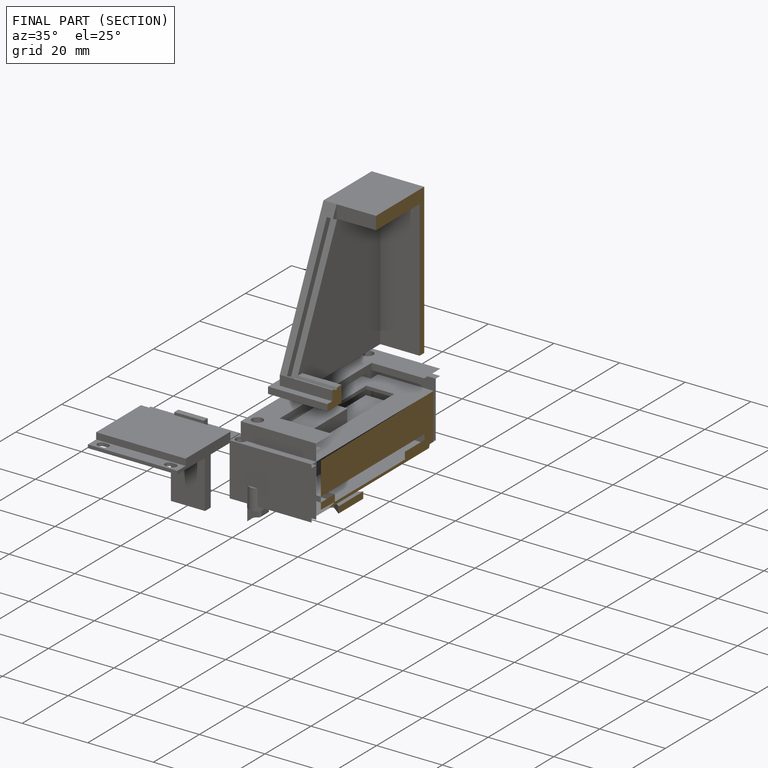
[diagram: finished part — half-section view (interior)]
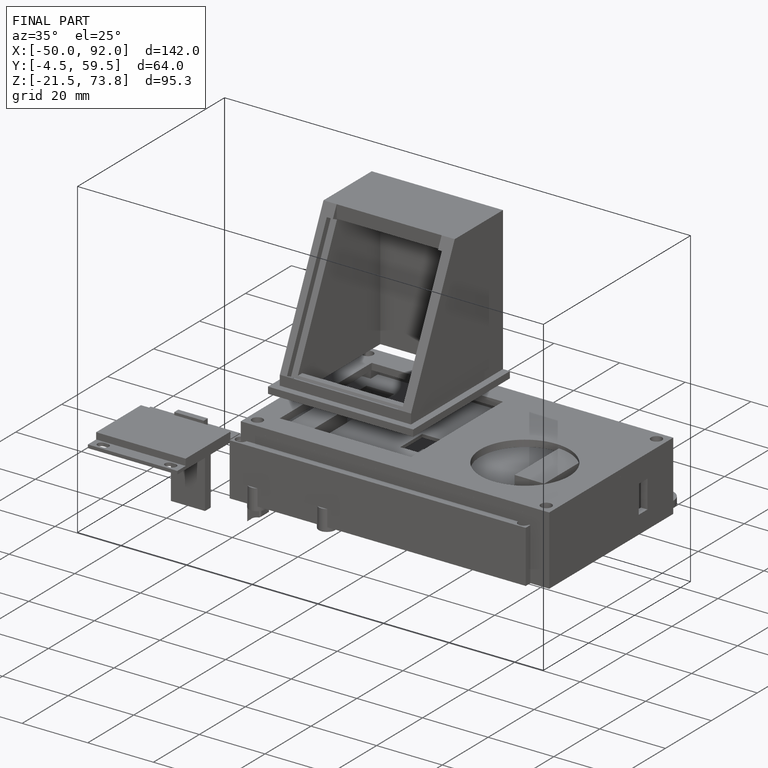
[diagram: finished part — iso view with bounding-box wireframe]
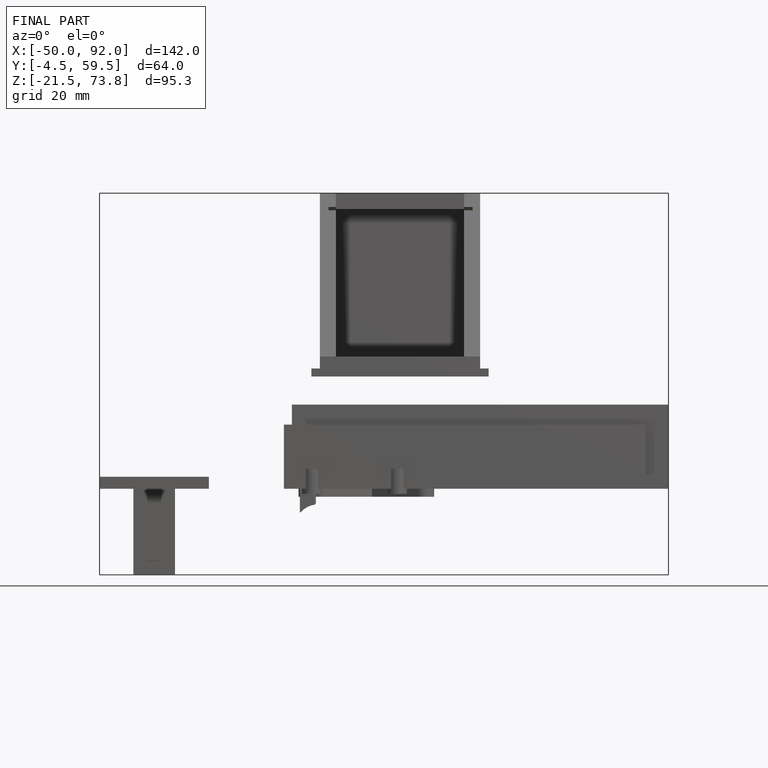
[diagram: finished part — front view with bounding-box wireframe]
